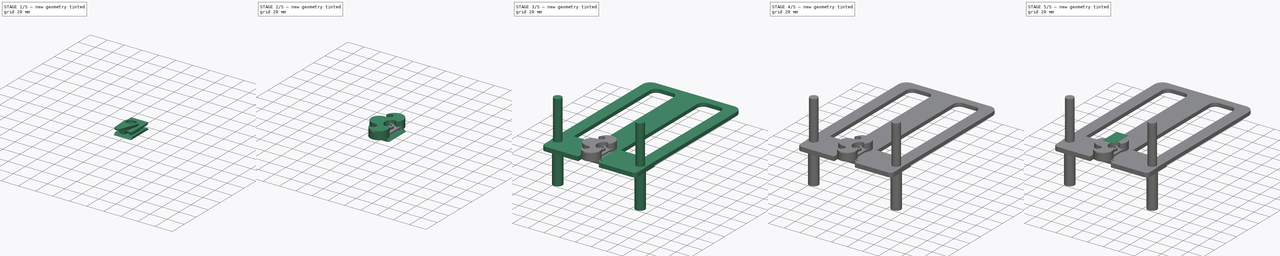
[diagram: build sequence overview — one tinted view per stage of 5, left to right]
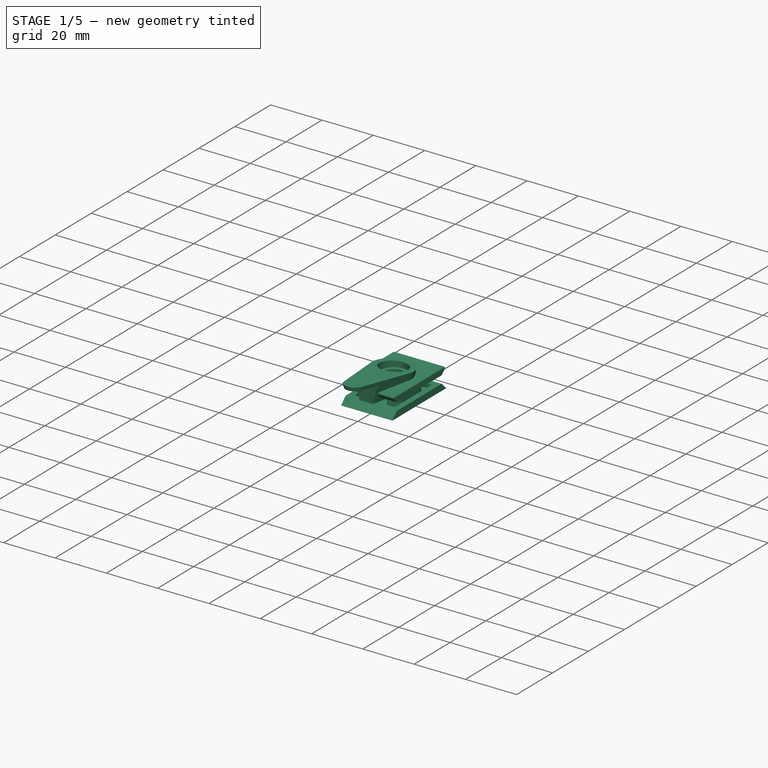
[diagram: stage 1 of 5 — iso view after this stage's code; geometry added in this stage tinted green]
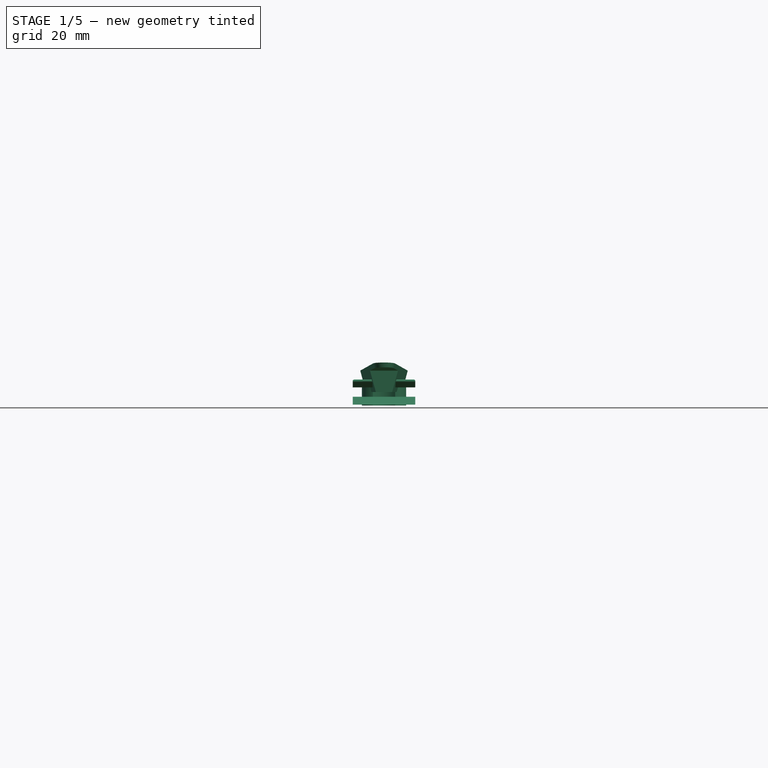
[diagram: stage 1 of 5 — front view after this stage's code; geometry added in this stage tinted green]
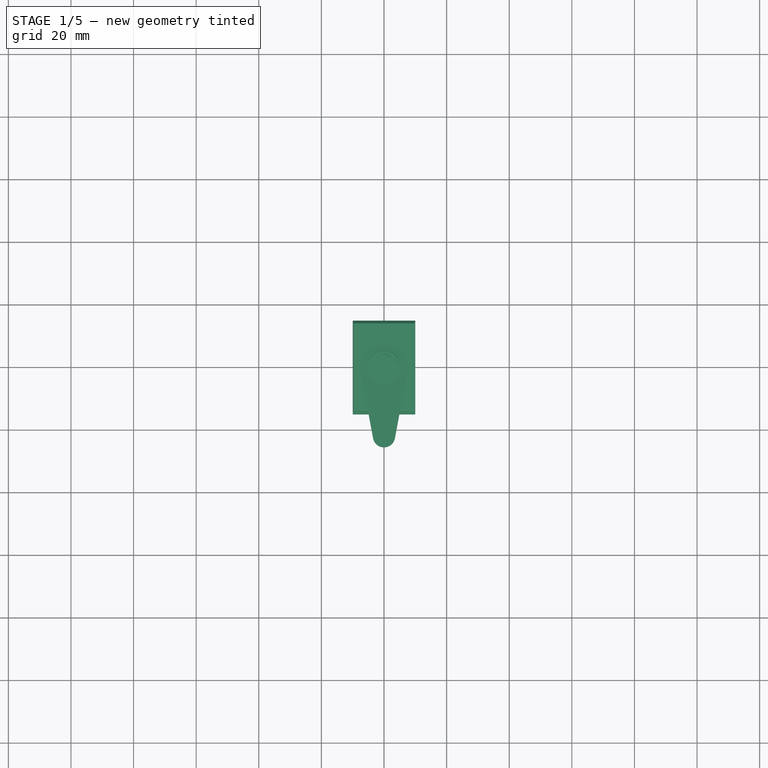
[diagram: stage 1 of 5 — top view after this stage's code; geometry added in this stage tinted green]
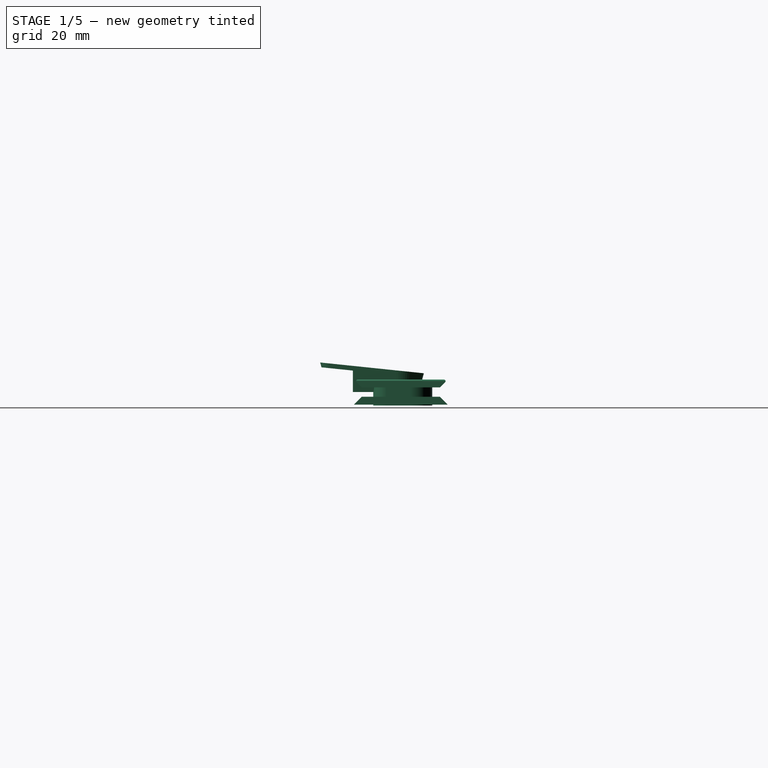
[diagram: stage 1 of 5 — right view after this stage's code; geometry added in this stage tinted green]
FCSTD DOCUMENT  (FreeCAD 0.19R14555 (Git shallow))
Label: actuator-case
License: All rights reserved
LicenseURL: http://en.wikipedia.org/wiki/All_rights_reserved
objects: Sketcher::SketchObject×57, PartDesign::Pad×32, PartDesign::Body×23, PartDesign::Pocket×22, PartDesign::Fillet×12, PartDesign::Draft×5, PartDesign::Revolution×4, Part::Cut×4, PartDesign::Thickness×3, PartDesign::Mirrored×2, PartDesign::ShapeBinder×2, Spreadsheet::Sheet×1, Part::Box×1, PartDesign::PolarPattern×1, PartDesign::Chamfer×1
note: 248 computed .brp shape members not serialized (recipe doc carries the construction recipe); baked Part::Feature solids carry a one-line shape summary decoded from their .brp

FEATURE [PartDesign::Body] Body019  label="[archive] Top-Plate"
  Group = -> [Sketch057,Pad028,Sketch056,Pocket013,Chamfer,Sketch061,Pocket017]
  Origin = -> Origin019
  Placement = pos=(0,0,0.4) rot=(0,1,0;3.14159rad)
  Tip = -> Pocket017
  expr: .Placement.Base.z = <<Dims>>.PlateMargin * 2
FEATURE [Sketcher::SketchObject] Sketch062
  FullyConstrained = true
  MapMode = 5
  Support = -> [XY_Plane021]
  expr: Constraints[10] = <<Dims>>.LRADiameter / 2
  expr: Constraints[11] = <<Dims>>.WallThickness
  expr: Constraints[12] = <<Dims>>.WallThickness * 4
  expr: Constraints[1] = -(<<Dims>>.StageLength - <<Dims>>.LRADiameter / 2 + <<Dims>>.BonusStageLength + <<Dims>>.WallThickness)
  expr: Constraints[25] = <<Dims>>.StageWidth
  sketch-geometry (12):
    g0: ArcOfCircle CenterX=0 CenterY=0 CenterZ=0 NormalX=0 NormalY=0 NormalZ=1 AngleXU=0 Radius=7.75 StartAngle=0 EndAngle=3.14159
    g1: LineSegment StartX=-2.8 StartY=-12.5 StartZ=0 EndX=2.8 EndY=-12.5 EndZ=0
    g2: Circle CenterX=0 CenterY=0 CenterZ=0 NormalX=0 NormalY=0 NormalZ=1 AngleXU=0 Radius=5.25
    g3: Circle CenterX=0 CenterY=0 CenterZ=0 NormalX=0 NormalY=0 NormalZ=1 AngleXU=0 Radius=5.75
    g4: GeomPoint X=5.25 Y=0 Z=0
    g5: GeomPoint X=5.75 Y=0 Z=0
    g6: GeomPoint X=7.75 Y=0 Z=0
    g7: LineSegment StartX=-7.75 StartY=9e-16 StartZ=0 EndX=-7.75 EndY=-7.55 EndZ=0
    g8: LineSegment StartX=7.75 StartY=0 StartZ=0 EndX=7.75 EndY=-7.55 EndZ=0
    g9: ArcOfCircle CenterX=-2.8 CenterY=-7.55 CenterZ=0 NormalX=0 NormalY=0 NormalZ=1 AngleXU=0 Radius=4.95 StartAngle=3.14159 EndAngle=4.71239
    g10: ArcOfCircle CenterX=2.8 CenterY=-7.55 CenterZ=0 NormalX=0 NormalY=0 NormalZ=1 AngleXU=0 Radius=4.95 StartAngle=4.71239 EndAngle=6.28319
    g11: GeomPoint X=0 Y=7.75 Z=0
  constraints (30):
    c: Coincident(g0,g-1)
    c: DistanceY(g1) = -12.5
    c: Symmetric(g1,g1,g-2)
    c: Coincident(g2,g0)
    c: Coincident(g3,g0)
    c: PointOnObject(g4,g2)
    c: PointOnObject(g5,g3)
    c: PointOnObject(g6,g-1)
    c: PointOnObject(g5,g-1)
    c: PointOnObject(g4,g-1)
    c: Radius(g2) = 5.25
    c: DistanceX(g4,g5) = 0.5
    c: DistanceX(g5,g6) = 2
    c: PointOnObject(g6,g0)
    c: PointOnObject(g0,g-1)
    c: PointOnObject(g0,g-1)
    c: Coincident(g7,g0)
    c: Vertical(g7)
    c: Coincident(g8,g0)
    c: Vertical(g8)
    c: Tangent(g1,g9) = -1.5708
    c: Coincident(g1,g10)
    c: Tangent(g9,g7) = -1.5708
    c: Tangent(g10,g8) = 1.5708
    c: Equal(g10,g9)
    c: DistanceX(g1,g1) = 5.6
    c: PointOnObject(g11,g0)
    c: PointOnObject(g11,g-2)
    c: DistanceY(g1,g11) = 20.25  'TotalHeight'
    c: DistanceX(g0,g0) = 15.5  'TotalWidth'
FEATURE [PartDesign::Pad] Pad029
  Direction = (1,1,1)
  Length = 2
  Length2 = 0.5
  Profile = -> Sketch062
  Type = 4
  expr: Length2 = <<Dims>>.WallThickness
FEATURE [Sketcher::SketchObject] Sketch063
  FullyConstrained = false
  expr: Constraints[11] = <<Dims>>.StageWidth
  expr: Constraints[15] = <<Dims>>.BonusStageLength
  expr: Constraints[6] = <<Dims>>.LRADiameter
  expr: Constraints[12] = <<Dims>>.StageLength
  sketch-geometry (21):
    g0: LineSegment StartX=2.04267 StartY=-9.5 StartZ=0 EndX=-2.04267 EndY=-9.5 EndZ=0
    g1: GeomPoint X=0 Y=5.25 Z=0
    g2: LineSegment StartX=1.05 StartY=-14.2519 StartZ=0 EndX=1.05 EndY=-12 EndZ=0
    g3: LineSegment StartX=1.05 StartY=-12 StartZ=0 EndX=2.8 EndY=-12 EndZ=0
    g4: LineSegment StartX=-1.05 StartY=-12 StartZ=0 EndX=-1.05 EndY=-14.2519 EndZ=0
    g5: LineSegment StartX=-2.8 StartY=-12 StartZ=0 EndX=-1.05 EndY=-12 EndZ=0
    g6: ArcOfCircle CenterX=0 CenterY=0 CenterZ=0 NormalX=0 NormalY=0 NormalZ=1 AngleXU=0 Radius=5.25 StartAngle=6.07229 EndAngle=9.63567
    g7: LineSegment StartX=-1.05 StartY=-14.2519 StartZ=0 EndX=1.05 EndY=-14.2519 EndZ=0
    g8: LineSegment StartX=-2.8 StartY=-12 StartZ=0 EndX=-3.7 EndY=-7.79596 EndZ=0
    g9: LineSegment StartX=2.8 StartY=-12 StartZ=0 EndX=3.7 EndY=-7.79596 EndZ=0
    g10: LineSegment StartX=-2.04267 StartY=-9.5 StartZ=0 EndX=-1.85 EndY=-10.4 EndZ=0
    g11: LineSegment StartX=-1.85 StartY=-10.4 StartZ=0 EndX=1.85 EndY=-10.4 EndZ=0
    g12: LineSegment StartX=1.85 StartY=-10.4 StartZ=0 EndX=2.04267 EndY=-9.5 EndZ=0
    g13: LineSegment StartX=3.89267 StartY=-6.89596 StartZ=0 EndX=2.8 EndY=-6.89596 EndZ=0
    g14: LineSegment StartX=2.8 StartY=-6.89596 StartZ=0 EndX=2.8 EndY=-7.79596 EndZ=0
    g15: LineSegment StartX=2.8 StartY=-7.79596 StartZ=0 EndX=3.7 EndY=-7.79596 EndZ=0
    g16: LineSegment StartX=3.89267 StartY=-6.89596 StartZ=0 EndX=5.13368 EndY=-1.09902 EndZ=0
    g17: LineSegment StartX=-3.89267 StartY=-6.89596 StartZ=0 EndX=-2.8 EndY=-6.89596 EndZ=0
    g18: LineSegment StartX=-2.8 StartY=-6.89596 StartZ=0 EndX=-2.8 EndY=-7.79596 EndZ=0
    g19: LineSegment StartX=-2.8 StartY=-7.79596 StartZ=0 EndX=-3.7 EndY=-7.79596 EndZ=0
    g20: LineSegment StartX=-3.89267 StartY=-6.89596 StartZ=0 EndX=-5.13368 EndY=-1.09902 EndZ=0
  constraints (53):
    c: PointOnObject(g1,g-2)
    c: Vertical(g2)
    c: DistanceX(g2) = 1.05
    c: Horizontal(g3)
    c: Symmetric(g0,g0,g-2)
    c: Vertical(g4)
    c: Diameter(g6) = 10.5
    c: Coincident(g7,g4)
    c: Coincident(g7,g2)
    c: Coincident(g8,g5)
    c: Coincident(g9,g3)
    c: DistanceX(g5,g3) = 5.6
    c: DistanceY(g0,g1) = 14.75
    c: PointOnObject(g1,g6)
    c: Coincident(g6,g-1)
    c: DistanceY(g3,g0) = 2.5
    c: Coincident(g3,g2)
    c: Coincident(g4,g5)
    c: Horizontal(g5)
    c: Symmetric(g4,g2,g-2)
    c: Coincident(g0,g10)
    c: Coincident(g10,g11)
    c: Horizontal(g11)
    c: Coincident(g11,g12)
    c: Coincident(g12,g0)
    c: DistanceX(g11,g3) = 0.95
    c: DistanceY(g12,g12) = 0.9
    c: Symmetric(g5,g3,g-2)
    c: Horizontal(g13)
    c: Coincident(g13,g14)
    c: Vertical(g14)
    c: Coincident(g14,g15)
    c: Horizontal(g15)
    c: Coincident(g9,g15)
    c: Coincident(g16,g13)
    c: Tangent(g9,g16)
    c: Horizontal(g17)
    c: Coincident(g17,g18)
    c: Vertical(g18)
    c: Coincident(g18,g19)
    c: Horizontal(g19)
    c: Coincident(g8,g19)
    c: Coincident(g20,g17)
    c: Symmetric(g8,g9,g-2)
    c: Symmetric(g17,g13,g-2)
    c: Vertical(g18,g5)
    c: DistanceX(g15,g15) = 0.9
    c: Tangent(g6,g16) = -1.5708
    c: Tangent(g6,g20) = 1.5708
    c: PointOnObject(g5,g20)
    c: Equal(g15,g14)
    c: Parallel(g8,g10)
    c: Parallel(g9,g12)
FEATURE [Sketcher::SketchObject] Sketch064
  AttachmentOffset = pos=(0,0,2) rot=(0,0,1;0rad)
  FullyConstrained = true
  MapMode = 5
  Placement = pos=(0,0,2) rot=(0,0,1;0rad)
  Support = -> [XY_Plane021]
  expr: Constraints[30] = <<Dims>>.LRADiameter
  expr: Constraints[28] = <<Dims>>.StageLength - <<Dims>>.LRADiameter / 2 + <<Dims>>.BonusStageLength
  expr: Constraints[25] = <<Dims>>.StageWidth
  expr: Constraints[24] = <<Dims>>.WallThickness * 3
  expr: Constraints[19] = <<Dims>>.WallThickness
  expr: Constraints[17] = <<Dims>>.LRADiameter / 2 + <<Dims>>.WallThickness
  expr: .AttachmentOffset.Base.z = <<Pad029>>.Length
  sketch-geometry (15):
    g0: ArcOfCircle CenterX=0 CenterY=0 CenterZ=0 NormalX=0 NormalY=0 NormalZ=1 AngleXU=0 Radius=5.75 StartAngle=6.07229 EndAngle=9.63567
    g1: GeomPoint X=0 Y=5.25 Z=0
    g2: LineSegment StartX=-5.6226 StartY=-1.20368 StartZ=0 EndX=-3.3178 EndY=-11.9698 EndZ=0
    g3: LineSegment StartX=5.6226 StartY=-1.20368 StartZ=0 EndX=3.3178 EndY=-11.9698 EndZ=0
    g4: LineSegment StartX=7.25 StartY=-7.55 StartZ=0 EndX=7.25 EndY=0 EndZ=0
    g5: LineSegment StartX=-7.25 StartY=9e-16 StartZ=0 EndX=-7.25 EndY=-7.55 EndZ=0
    g6: ArcOfCircle CenterX=-2.8 CenterY=-7.55 CenterZ=0 NormalX=0 NormalY=0 NormalZ=1 AngleXU=0 Radius=4.45 StartAngle=3.14159 EndAngle=4.59577
    g7: ArcOfCircle CenterX=2.8 CenterY=-7.55 CenterZ=0 NormalX=0 NormalY=0 NormalZ=1 AngleXU=0 Radius=4.45 StartAngle=4.82901 EndAngle=6.28319
    g8: ArcOfCircle CenterX=0 CenterY=0 CenterZ=0 NormalX=0 NormalY=0 NormalZ=1 AngleXU=0 Radius=7.25 StartAngle=0 EndAngle=3.14159
    g9: GeomPoint X=0 Y=5.75 Z=0
    g10: LineSegment StartX=0 StartY=5.75 StartZ=0 EndX=0 EndY=5.25 EndZ=0
    g11: GeomPoint X=5.75 Y=0 Z=0
    g12: GeomPoint X=2.8 Y=-12 Z=0
    g13: Circle CenterX=0 CenterY=0 CenterZ=0 NormalX=0 NormalY=0 NormalZ=1 AngleXU=0 Radius=5.25
    g14: LineSegment StartX=2.8 StartY=-12 StartZ=0 EndX=5.13368 EndY=-1.099 EndZ=0
  constraints (35):
    c: PointOnObject(g1,g-2)
    c: PointOnObject(g4,g-1)
    c: Vertical(g4)
    c: PointOnObject(g5,g-1)
    c: Coincident(g6,g2)
    c: Coincident(g7,g3)
    c: Tangent(g3,g0) = 1.5708
    c: Tangent(g2,g0) = -1.5708
    c: Tangent(g7,g4) = -1.5708
    c: Tangent(g6,g5) = -1.5708
    c: Coincident(g8,g5)
    c: Coincident(g8,g4)
    c: PointOnObject(g9,g0)
    c: PointOnObject(g9,g-2)
    c: Coincident(g10,g9)
    c: Coincident(g10,g1)
    c: Symmetric(g7,g6,g-2)
    c: Radius(g0) = 5.75
    c: Coincident(g0,g8)
    c: DistanceY(g10,g10) = 0.5
    c: Coincident(g-1,g0)
    c: Symmetric(g3,g2,g-2)
    c: PointOnObject(g11,g0)
    c: PointOnObject(g11,g-1)
    c: DistanceX(g11,g4) = 1.5
    c: DistanceX(g6,g7) = 5.6
    c: Vertical(g12,g7)
    c: PointOnObject(g12,g7)
    c: DistanceY(g12,g0) = 12
    c: Coincident(g13,g0)
    c: Diameter(g13) = 10.5
    c: Coincident(g14,g12)
    c: PointOnObject(g14,g13)
    c: Tangent(g14,g13)
    c: Parallel(g3,g14)
FEATURE [Sketcher::SketchObject] Sketch065
  FullyConstrained = true
  MapMode = 5
  Support = -> [XY_Plane021]
  sketch-geometry (1):
    g0: Circle CenterX=0 CenterY=0 CenterZ=0 NormalX=0 NormalY=0 NormalZ=1 AngleXU=0 Radius=1.5
  constraints (2):
    c: Coincident(g0,g-1)
    c: Diameter(g0) = 3
FEATURE [PartDesign::Pocket] Pocket020
  BaseFeature = -> Pad029
  Length = 5
  Length2 = 100
  Profile = -> Sketch065
  Type = 1
FEATURE [PartDesign::Pocket] Pocket018
  BaseFeature = -> Pocket020
  Length = 5
  Length2 = 100
  Profile = -> Sketch063
  Reversed = true
  Type = 1
FEATURE [PartDesign::Pocket] Pocket019
  BaseFeature = -> Pocket018
  Length = 0.75
  Length2 = 100
  Profile = -> Sketch064
  Type = 0
  expr: Length = <<Dims>>.WallThickness * 1.5
FEATURE [Sketcher::SketchObject] Sketch066
  FullyConstrained = true
  MapMode = 5
  Placement = pos=(0,0,0) rot=(0.57735,0.57735,0.57735;2.0944rad)
  Support = -> [YZ_Plane021]
  expr: Constraints[30] = <<Dims>>.PlateHeight + <<Dims>>.PlateMargin
  sketch-geometry (28):
    g0: ArcOfCircle CenterX=60 CenterY=-2.7e-15 CenterZ=0 NormalX=0 NormalY=0 NormalZ=1 AngleXU=0 Radius=8 StartAngle=3.89731 EndAngle=8.66906
    g1: LineSegment StartX=-18 StartY=-0.25 StartZ=0 EndX=-10 EndY=-0.507562 EndZ=0
    g2: LineSegment StartX=47.2218 StartY=2.34984 StartZ=0 EndX=15.1844 EndY=1.31838 EndZ=0
    g3: ArcOfCircle CenterX=-12.2421 CenterY=0.435378 CenterZ=0 NormalX=0 NormalY=0 NormalZ=1 AngleXU=0 Radius=5.76092 StartAngle=1.8326 EndAngle=3.17378
    g4: ArcOfCircle CenterX=-12.2421 CenterY=-0.435378 CenterZ=0 NormalX=0 NormalY=0 NormalZ=1 AngleXU=0 Radius=5.76092 StartAngle=3.10941 EndAngle=4.45059
    g5: ArcOfCircle CenterX=46.9 CenterY=12.3447 CenterZ=0 NormalX=0 NormalY=0 NormalZ=1 AngleXU=0 Radius=10 StartAngle=4.74457 EndAngle=5.52746
    g6: ArcOfCircle CenterX=46.9 CenterY=-12.3447 CenterZ=0 NormalX=0 NormalY=0 NormalZ=1 AngleXU=0 Radius=10 StartAngle=0.755722 EndAngle=1.53861
    g7: LineSegment StartX=-13.7331 StartY=-6 StartZ=0 EndX=12.3913 EndY=-13 EndZ=0
    g8: LineSegment StartX=-13.7331 StartY=6 StartZ=0 EndX=12.3913 EndY=13 EndZ=0
    g9: ArcOfCircle CenterX=60 CenterY=-2.7e-15 CenterZ=0 NormalX=0 NormalY=0 NormalZ=1 AngleXU=0 Radius=13 StartAngle=5.87167 EndAngle=6.6947
    g10: LineSegment StartX=-10 StartY=-0.507562 StartZ=0 EndX=-12.5805 EndY=-2.92707 EndZ=0
    g11: LineSegment StartX=-12.5805 StartY=-2.92707 StartZ=0 EndX=17.6039 EndY=-3.89887 EndZ=0
    g12: LineSegment StartX=17.6039 StartY=-3.89887 StartZ=0 EndX=15.1844 EndY=-1.31838 EndZ=0
    g13: LineSegment StartX=47.2218 StartY=2.34984 StartZ=0 EndX=67.4162 EndY=3 EndZ=0
    g14: LineSegment StartX=-10 StartY=-0.507562 StartZ=0 EndX=-10.0805 EndY=-3.00756 EndZ=0
    g15: LineSegment StartX=15.1844 StartY=-1.31838 StartZ=0 EndX=47.2218 EndY=-2.34984 EndZ=0
    g16: LineSegment StartX=-10 StartY=0.507562 StartZ=0 EndX=-12.5805 EndY=2.92707 EndZ=0
    g17: LineSegment StartX=-12.5805 StartY=2.92707 StartZ=0 EndX=17.6039 EndY=3.89887 EndZ=0
    g18: LineSegment StartX=17.6039 StartY=3.89887 StartZ=0 EndX=15.1844 EndY=1.31838 EndZ=0
    g19: LineSegment StartX=-10 StartY=0.507562 StartZ=0 EndX=-18 EndY=0.25 EndZ=0
    g20: LineSegment StartX=12.3913 StartY=13 StartZ=0 EndX=103.748 EndY=13 EndZ=0
    g21: LineSegment StartX=12.3913 StartY=-13 StartZ=0 EndX=103.748 EndY=-13 EndZ=0
    g22: LineSegment StartX=73.7477 StartY=-8 StartZ=0 EndX=107.621 EndY=-8 EndZ=0
    g23: LineSegment StartX=73.7477 StartY=8 StartZ=0 EndX=107.621 EndY=8 EndZ=0
    g24: ArcOfCircle CenterX=107.621 CenterY=12 CenterZ=0 NormalX=0 NormalY=0 NormalZ=1 AngleXU=0 Radius=4 StartAngle=4.71239 EndAngle=9.1721
    g25: ArcOfCircle CenterX=107.621 CenterY=-12 CenterZ=0 NormalX=0 NormalY=0 NormalZ=1 AngleXU=0 Radius=4 StartAngle=3.39427 EndAngle=7.85398
    g26: ArcOfCircle CenterX=73.7477 CenterY=6 CenterZ=0 NormalX=0 NormalY=0 NormalZ=1 AngleXU=0 Radius=2 StartAngle=1.5708 EndAngle=3.55311
    g27: ArcOfCircle CenterX=73.7477 CenterY=-6 CenterZ=0 NormalX=0 NormalY=0 NormalZ=1 AngleXU=0 Radius=2 StartAngle=2.73008 EndAngle=4.71239
  constraints (74):
    c: DistanceY(g1,g19) = 0.5
    c: DistanceX(g0) = 60
    c: PointOnObject(g3,g2)
    c: Coincident(g3,g19)
    c: Coincident(g4,g1)
    c: Symmetric(g19,g1,g-1)
    c: Tangent(g2,g5) = 1.5708
    c: Tangent(g0,g5) = 1.5708
    c: Tangent(g3,g8) = 1.5708
    c: Tangent(g4,g7) = -1.5708
    c: Symmetric(g4,g3,g-1)
    c: Tangent(g6,g0) = 1.5708
    c: Radius(g5) = 10
    c: DistanceX(g19) = -18
    c: Equal(g6,g5)
    c: DistanceY(g4,g3) = 12
    c: Radius(g0) = 8
    c: Radius(g9) = 13
    c: Coincident(g9,g0)
    c: Vertical(g15,g2)
    c: Coincident(g11,g10)
    c: Coincident(g12,g11)
    c: Angle(g12,g11) = 0.785398
    c: Angle(g11,g10) = 0.785398
    c: Coincident(g13,g2)
    c: Parallel(g13,g2)
    c: Parallel(g11,g1)
    c: Coincident(g14,g10)
    c: PointOnObject(g14,g11)
    c: Angle(g11,g14) = 1.5708
    c: Distance(g11) = 30.2
    c: Coincident(g1,g10)
    c: Coincident(g15,g12)
    c: Tangent(g1,g15)
    c: Tangent(g15,g6) = 1.5708
    c: Coincident(g16,g17)
    c: Coincident(g17,g18)
    c: Coincident(g2,g18)
    c: Coincident(g19,g16)
    c: Tangent(g2,g19)
    c: Symmetric(g17,g11,g-1)
    c: Symmetric(g10,g16,g-1)
    c: Vertical(g16,g1)
    c: DistanceY(g14,g14) = 2.5
    c: DistanceX(g16) = -10
    c: PointOnObject(g13,g0)
    c: DistanceY(g13) = 3
    c: Angle(g7,g8) = 0.523599
    c: Symmetric(g8,g7,g-1)
    c: Coincident(g20,g8)
    c: Horizontal(g20)
    c: Coincident(g21,g7)
    c: Horizontal(g21)
    c: Horizontal(g22)
    c: Tangent(g22,g0)
    c: Horizontal(g23)
    c: Tangent(g23,g0)
    c: Tangent(g21,g9)
    c: Symmetric(g2,g12,g-1)
    c: Coincident(g24,g20)
    c: Coincident(g25,g21)
    c: Tangent(g25,g22) = 1.5708
    c: Tangent(g24,g23) = -1.5708
    c: Vertical(g24,g25)
    c: Equal(g24,g25)
    c: Radius(g24) = 4  'GripKnobRadius'
    c: Tangent(g23,g26) = 1.5708
    c: Tangent(g9,g26) = 1.5708
    c: Tangent(g9,g27) = 1.5708
    c: Tangent(g22,g27) = -1.5708
    c: Equal(g27,g26)
    c: Radius(g26) = 2
    c: DistanceX(g23,g20) = 30
    c: DistanceY(g25,g24) = 24  'KnobCenterDistance'
FEATURE [PartDesign::Pad] Pad030
  Direction = (1,1,1)
  Length = 20
  Length2 = 100
  Midplane = true
  Placement = pos=(0,0,0) rot=(0.57735,0.57735,0.57735;2.0944rad)
  Profile = -> Sketch066
  Type = 0
FEATURE [Sketcher::SketchObject] Sketch068
  FullyConstrained = true
  MapMode = 5
  Placement = pos=(0,0,0) rot=(0.57735,0.57735,0.57735;2.0944rad)
  Support = -> [YZ_Plane022]
  expr: Constraints[7] = 30mm
  sketch-geometry (4):
    g0: LineSegment StartX=-15 StartY=-4 StartZ=0 EndX=15 EndY=-4 EndZ=0
    g1: LineSegment StartX=15 StartY=-4 StartZ=0 EndX=12.5 EndY=-1.5 EndZ=0
    g2: LineSegment StartX=12.5 StartY=-1.5 StartZ=0 EndX=-12.5 EndY=-1.5 EndZ=0
    g3: LineSegment StartX=-12.5 StartY=-1.5 StartZ=0 EndX=-15 EndY=-4 EndZ=0
  constraints (10):
    c: Coincident(g0,g1)
    c: Coincident(g1,g2)
    c: Coincident(g2,g3)
    c: Coincident(g3,g0)
    c: Symmetric(g2,g1,g-2)
    c: Symmetric(g0,g0,g-2)
    c: Angle(g1,g0) = 0.785398
    c: DistanceX(g0,g0) = 30
    c: DistanceY(g0,g1) = 2.5
    c: DistanceY(g0) = -4
FEATURE [PartDesign::Pad] Pad031
  Direction = (1,1,1)
  Length = 20
  Length2 = 100
  Midplane = true
  Placement = pos=(0,0,0) rot=(0.57735,0.57735,0.57735;2.0944rad)
  Profile = -> Sketch068
  Type = 0
  expr: Length = <<Pad030>>.Length
FEATURE [Sketcher::SketchObject] Sketch069
  AttachmentOffset = pos=(0,2,-1.5) rot=(0,0,1;0rad)
  FullyConstrained = true
  MapMode = 5
  Placement = pos=(0,2,-1.5) rot=(0,0,1;0rad)
  Support = -> [XY_Plane023]
  expr: .AttachmentOffset.Base.y = -<<Clamp>>.Placement.Base.y
  expr: Constraints[8] = <<Dims>>.LRADiameter / 2 + <<Dims>>.WallThickness * 5 + <<Dims>>.PlatePieceMargin
  expr: Constraints[9] = <<Dims>>.LRADiameter / 2 + <<Dims>>.WallThickness * 5 + <<Dims>>.PlatePieceMargin
  expr: Constraints[10] = -(<<Dims>>.StageLength - <<Dims>>.LRADiameter / 2 + <<Dims>>.BonusStageLength + <<Dims>>.WallThickness + <<Dims>>.PlatePieceMargin)
  sketch-geometry (4):
    g0: LineSegment StartX=7.85 StartY=7.85 StartZ=0 EndX=-7.85 EndY=7.85 EndZ=0
    g1: LineSegment StartX=-7.85 StartY=7.85 StartZ=0 EndX=-7.85 EndY=-12.6 EndZ=0
    g2: LineSegment StartX=-7.85 StartY=-12.6 StartZ=0 EndX=7.85 EndY=-12.6 EndZ=0
    g3: LineSegment StartX=7.85 StartY=-12.6 StartZ=0 EndX=7.85 EndY=7.85 EndZ=0
  constraints (11):
    c: Coincident(g0,g1)
    c: Coincident(g1,g2)
    c: Coincident(g2,g3)
    c: Coincident(g3,g0)
    c: Horizontal(g2)
    c: Vertical(g1)
    c: Vertical(g3)
    c: Symmetric(g0,g0,g-2)
    c: DistanceY(g0) = 7.85
    c: DistanceX(g0) = 7.85
    c: DistanceY(g2) = -12.6
FEATURE [PartDesign::Pocket] Pocket022
  BaseFeature = -> Pad031
  Length = 1.5
  Length2 = 100
  Placement = pos=(0,0,0) rot=(0.57735,0.57735,0.57735;2.0944rad)
  Profile = -> Sketch069
  Type = 0
FEATURE [Sketcher::SketchObject] Sketch070
  FullyConstrained = true
  MapMode = 5
  Placement = pos=(0,0,0) rot=(0.57735,0.57735,0.57735;2.0944rad)
  Support = -> [YZ_Plane023]
  sketch-geometry (4):
    g0: LineSegment StartX=-12.5 StartY=1.5 StartZ=0 EndX=12.5 EndY=1.5 EndZ=0
    g1: LineSegment StartX=12.5 StartY=1.5 StartZ=0 EndX=15 EndY=4 EndZ=0
    g2: LineSegment StartX=15 StartY=4 StartZ=0 EndX=-15 EndY=4 EndZ=0
    g3: LineSegment StartX=-15 StartY=4 StartZ=0 EndX=-12.5 EndY=1.5 EndZ=0
  constraints (10):
    c: Coincident(g0,g1)
    c: Coincident(g3,g0)
    c: Symmetric(g0,g0,g-2)
    c: Angle(g2,g1) = 0.785398
    c: DistanceX(g2,g2) = 30
    c: Coincident(g1,g2)
    c: Coincident(g3,g2)
    c: Symmetric(g2,g1,g-2)
    c: DistanceY(g1) = 4
    c: DistanceY(g0,g1) = 2.5
FEATURE [PartDesign::Pad] Pad032
  Direction = (1,1,1)
  Length = 20
  Length2 = 100
  Midplane = true
  Placement = pos=(0,0,0) rot=(0.57735,0.57735,0.57735;2.0944rad)
  Profile = -> Sketch070
  Type = 0
  expr: Length = <<Pad030>>.Length
FEATURE [Sketcher::SketchObject] Sketch071
  AttachmentOffset = pos=(0,3,0) rot=(0,0,1;0rad)
  FullyConstrained = true
  MapMode = 5
  Placement = pos=(0,3,0) rot=(0,0,1;0rad)
  Support = -> [XY_Plane024]
  expr: .AttachmentOffset.Base.y = -<<Clamp>>.Placement.Base.y + 1mm
  expr: Constraints[17] = <<Dims>>.LRADiameter / 2 + <<Dims>>.WallThickness + <<Dims>>.FabricGap
  expr: Constraints[22] = -(<<Dims>>.StageLength - <<Dims>>.LRADiameter / 2 + <<Dims>>.BonusStageLength - <<Dims>>.FabricGap)
  expr: Constraints[27] = <<Dims>>.LRADiameter
  expr: Constraints[18] = <<Dims>>.LRADiameter / 2 + <<Dims>>.WallThickness * 4 - <<Dims>>.FabricGap
  expr: Constraints[19] = <<Dims>>.StageWidth
  expr: Constraints[23] = -(<<Dims>>.StageLength - <<Dims>>.LRADiameter / 2 + <<Dims>>.BonusStageLength)
  sketch-geometry (13):
    g0: ArcOfCircle CenterX=0 CenterY=0 CenterZ=0 NormalX=0 NormalY=0 NormalZ=1 AngleXU=0 Radius=7.05 StartAngle=0 EndAngle=3.14159
    g1: LineSegment StartX=-7.05 StartY=9e-16 StartZ=0 EndX=-7.05 EndY=-7.61826 EndZ=0
    g2: LineSegment StartX=7.05 StartY=0 StartZ=0 EndX=7.05 EndY=-7.61826 EndZ=0
    g3: LineSegment StartX=3.55868 StartY=-11.8 StartZ=0 EndX=5.81817 EndY=-1.24555 EndZ=0
    g4: LineSegment StartX=-3.55868 StartY=-11.8 StartZ=0 EndX=-5.81817 EndY=-1.24555 EndZ=0
    g5: ArcOfCircle CenterX=0 CenterY=0 CenterZ=0 NormalX=0 NormalY=0 NormalZ=1 AngleXU=0 Radius=5.95 StartAngle=6.07229 EndAngle=9.63567
    g6: ArcOfCircle CenterX=-2.8 CenterY=-7.61826 CenterZ=0 NormalX=0 NormalY=0 NormalZ=1 AngleXU=0 Radius=4.25 StartAngle=3.14159 EndAngle=4.53291
    g7: ArcOfCircle CenterX=2.8 CenterY=-7.61826 CenterZ=0 NormalX=0 NormalY=0 NormalZ=1 AngleXU=0 Radius=4.25 StartAngle=4.89186 EndAngle=6.28319
    g8: GeomPoint X=0 Y=-11.8 Z=0
    g9: GeomPoint X=2.8 Y=-12 Z=0
    g10: GeomPoint X=-2.8 Y=-12 Z=0
    g11: Circle CenterX=0 CenterY=0 CenterZ=0 NormalX=0 NormalY=0 NormalZ=1 AngleXU=0 Radius=5.25
    g12: LineSegment StartX=2.8 StartY=-12 StartZ=0 EndX=5.13368 EndY=-1.09902 EndZ=0
  constraints (31):
    c: Coincident(g0,g-1)
    c: Coincident(g1,g0)
    c: Vertical(g1)
    c: Coincident(g2,g0)
    c: Vertical(g2)
    c: PointOnObject(g0,g-1)
    c: PointOnObject(g0,g-1)
    c: Coincident(g5,g0)
    c: Tangent(g5,g3) = -1.5708
    c: Tangent(g5,g4) = 1.5708
    c: Coincident(g6,g1)
    c: Coincident(g6,g4)
    c: Coincident(g7,g2)
    c: Coincident(g7,g3)
    c: Symmetric(g7,g6,g-2)
    c: Symmetric(g4,g3,g-2)
    c: Tangent(g7,g2)
    c: Radius(g5) = 5.95
    c: Radius(g0) = 7.05
    c: DistanceX(g6,g7) = 5.6
    c: PointOnObject(g8,g-2)
    c: Horizontal(g8,g3)
    c: DistanceY(g8) = -11.8
    c: DistanceY(g9) = -12
    c: Symmetric(g10,g9,g-2)
    c: Vertical(g9,g7)
    c: Coincident(g11,g0)
    c: Diameter(g11) = 10.5
    c: Coincident(g12,g9)
    c: Tangent(g12,g11) = -1.5708
    c: Parallel(g3,g12)
FEATURE [PartDesign::Pad] Pad033
  BaseFeature = -> Pad032
  Direction = (1,1,1)
  Length = 2.5
  Length2 = 4.3
  Placement = pos=(0,0,0) rot=(0.57735,0.57735,0.57735;2.0944rad)
  Profile = -> Sketch071
  Type = 4
  expr: Length2 = 4.5mm - <<Dims>>.FabricGap
FEATURE [PartDesign::Fillet] Fillet011
  Base = -> Pad033 [Face14]
  BaseFeature = -> Pad033
  Placement = pos=(0,0,0) rot=(0.57735,0.57735,0.57735;2.0944rad)
  Radius = 0.5
  SupportTransform = false
FEATURE [PartDesign::Fillet] Fillet012
  Base = -> Fillet011 [Edge21]
  BaseFeature = -> Fillet011
  Placement = pos=(0,0,0) rot=(0.57735,0.57735,0.57735;2.0944rad)
  Radius = 1
  SupportTransform = false
FEATURE [Sketcher::SketchObject] Sketch081
  FullyConstrained = true
  MapMode = 5
  Support = -> [XY_Plane022]
  sketch-geometry (1):
    g0: Circle CenterX=0 CenterY=0 CenterZ=0 NormalX=0 NormalY=0 NormalZ=1 AngleXU=0 Radius=4
  constraints (2):
    c: Coincident(g0,g-1)
    c: Radius(g0) = 4
FEATURE [Sketcher::SketchObject] Sketch082
  ExternalGeometry = -> [Pad030]
  FullyConstrained = true
  MapMode = 5
  Placement = pos=(10,-2.2e-15,2.2e-15) rot=(0.57735,0.57735,0.57735;2.0944rad)
  Support = -> [Pad030]
  sketch-geometry (8):
    g0: LineSegment StartX=-12.5805 StartY=2.92707 StartZ=0 EndX=-10 EndY=0.507562 EndZ=0
    g1: LineSegment StartX=-10 StartY=0.507562 StartZ=0 EndX=15.1844 EndY=1.31838 EndZ=0
    g2: LineSegment StartX=15.1844 StartY=1.31838 StartZ=0 EndX=17.6039 EndY=3.89887 EndZ=0
    g3: LineSegment StartX=17.6039 StartY=3.89887 StartZ=0 EndX=-12.5805 EndY=2.92707 EndZ=0
    g4: LineSegment StartX=-10 StartY=-0.507562 StartZ=0 EndX=15.1844 EndY=-1.31838 EndZ=0
    g5: LineSegment StartX=15.1844 StartY=-1.31838 StartZ=0 EndX=17.6039 EndY=-3.89887 EndZ=0
    g6: LineSegment StartX=17.6039 StartY=-3.89887 StartZ=0 EndX=-12.5805 EndY=-2.92707 EndZ=0
    g7: LineSegment StartX=-12.5805 StartY=-2.92707 StartZ=0 EndX=-10 EndY=-0.507562 EndZ=0
  constraints (16):
    c: Coincident(g-4,g0)
    c: Coincident(g0,g-4)
    c: Coincident(g0,g1)
    c: Coincident(g1,g-3)
    c: Coincident(g1,g2)
    c: Coincident(g2,g-3)
    c: Coincident(g2,g3)
    c: Coincident(g3,g0)
    c: Coincident(g-5,g4)
    c: Coincident(g4,g-6)
    c: Coincident(g4,g5)
    c: Coincident(g5,g-6)
    c: Coincident(g5,g6)
    c: Coincident(g6,g-5)
    c: Coincident(g6,g7)
    c: Coincident(g7,g4)
FEATURE [PartDesign::Pad] Pad041
  BaseFeature = -> Pad030
  Direction = (1,1,1)
  Length = 1
  Length2 = 100
  Placement = pos=(0,0,0) rot=(0.57735,0.57735,0.57735;2.0944rad)
  Profile = -> Sketch082
  Reversed = true
  Type = 0
FEATURE [PartDesign::Pocket] Pocket023
  BaseFeature = -> Pad041
  Length = 5
  Length2 = 100
  Midplane = true
  Placement = pos=(0,0,0) rot=(0.57735,0.57735,0.57735;2.0944rad)
  Profile = -> Sketch081
  Type = 1
FEATURE [PartDesign::Body] Body022  label="bottom-plate-clamp"
  Group = -> [Sketch068,Pad031,Sketch069,Pocket022,Fillet010,Sketch083,Pocket024]
  Origin = -> Origin022
  Placement = pos=(0,-2,2.5) rot=(0,0,1;0rad)
  Tip = -> Pocket024
  expr: .Placement.Base = <<Clamp>>.Placement.Base
FEATURE [Sketcher::SketchObject] Sketch084
  FullyConstrained = true
  MapMode = 5
  Support = -> [XY_Plane024]
  sketch-geometry (1):
    g0: Circle CenterX=0 CenterY=0 CenterZ=0 NormalX=0 NormalY=0 NormalZ=1 AngleXU=0 Radius=4
  constraints (2):
    c: Coincident(g0,g-1)
    c: Radius(g0) = 4
FEATURE [PartDesign::Pocket] Pocket025
  BaseFeature = -> Fillet012
  Length = 5
  Length2 = 100
  Midplane = true
  Placement = pos=(0,0,0) rot=(0.57735,0.57735,0.57735;2.0944rad)
  Profile = -> Sketch084
  Type = 1
FEATURE [PartDesign::Body] Body023  label="top-plate-clamp"
  Group = -> [Sketch070,Pad032,Sketch071,Pad033,Fillet011,Fillet012,Sketch084,Pocket025]
  Origin = -> Origin023
  Placement = pos=(0,-2,2.5) rot=(0,0,1;0rad)
  Tip = -> Pocket025
  expr: .Placement.Base = <<Clamp>>.Placement.Base
FEATURE [PartDesign::ShapeBinder] ShapeBinder
  Support = -> [Pocket019]
  TraceSupport = false
FEATURE [Sketcher::SketchObject] Sketch085
  ExternalGeometry = -> [ShapeBinder]
  FullyConstrained = false
  MapMode = 5
  Support = -> [XY_Plane033]
  sketch-geometry (6):
    g0: ArcOfCircle CenterX=0 CenterY=0 CenterZ=0 NormalX=0 NormalY=0 NormalZ=1 AngleXU=0 Radius=5.75 StartAngle=6.07229 EndAngle=9.63567
    g1: LineSegment StartX=-5.6226 StartY=-1.20368 StartZ=0 EndX=-1.09734 EndY=-22.3419 EndZ=0
    g2: LineSegment StartX=5.6226 StartY=-1.20368 StartZ=0 EndX=1.09734 EndY=-22.3419 EndZ=0
    g3: ArcOfCircle CenterX=0 CenterY=-22.107 CenterZ=0 NormalX=0 NormalY=0 NormalZ=1 AngleXU=0 Radius=1.1222 StartAngle=3.35249 EndAngle=6.07229
    g4: LineSegment StartX=-5.13368 StartY=-1.09902 StartZ=0 EndX=-2.8 EndY=-12 EndZ=0
    g5: Circle CenterX=0 CenterY=0 CenterZ=0 NormalX=0 NormalY=0 NormalZ=1 AngleXU=0 Radius=5.25
  constraints (12):
    c: Coincident(g0,g-4)
    c: Coincident(g0,g-4)
    c: Coincident(g1,g0)
    c: Coincident(g2,g0)
    c: Tangent(g2,g3) = 1.5708
    c: Tangent(g1,g3) = -1.5708
    c: PointOnObject(g3,g-2)
    c: Coincident(g4,g-5) = -1.5708
    c: Parallel(g1,g4)
    c: Coincident(g0,g-1)
    c: Coincident(g5,g0)
    c: PointOnObject(g4,g5)
FEATURE [PartDesign::Pad] Pad042
  Direction = (1,1,1)
  Length = 12
  Length2 = 100
  Profile = -> Sketch085
  Type = 0
FEATURE [PartDesign::ShapeBinder] ShapeBinder001
  Placement = pos=(0,0,0) rot=(0.57735,0.57735,0.57735;2.0944rad)
  Support = -> [Pocket025]
  TraceSupport = false
FEATURE [PartDesign::Draft] Draft004
  Angle = 15
  Base = -> Pad042 [Face4]
  BaseFeature = -> Pad042
  NeutralPlane = -> Pad042 [Face6]
  Reversed = true
  SupportTransform = false
FEATURE [Sketcher::SketchObject] Sketch087
  FullyConstrained = false
  MapMode = 5
  Placement = pos=(0,0,0) rot=(0.57735,0.57735,0.57735;2.0944rad)
  Support = -> [YZ_Plane031]
  expr: Constraints[15] = <<Dims>>.LRADiameter / 2 + <<Dims>>.WallThickness
  expr: Constraints[17] = 90° + Draft004.Angle
  sketch-geometry (10):
    g0: LineSegment StartX=9.90492 StartY=15.5064 StartZ=0 EndX=7.3577 EndY=6 EndZ=0
    g1: LineSegment StartX=7.3577 StartY=6 StartZ=0 EndX=-28 EndY=9.68039 EndZ=0
    g2: LineSegment StartX=-28 StartY=0 StartZ=0 EndX=-15.3076 EndY=0 EndZ=0
    g3: LineSegment StartX=-15.3076 StartY=0 StartZ=0 EndX=-15.3076 EndY=6.85923 EndZ=0
    g4: LineSegment StartX=-15.3076 StartY=6.85923 StartZ=0 EndX=-28 EndY=8.18039 EndZ=0
    g5: LineSegment StartX=-28 StartY=8.18039 StartZ=0 EndX=-28 EndY=0 EndZ=0
    g6: LineSegment StartX=-28 StartY=9.68039 StartZ=0 EndX=-28 EndY=15.5064 EndZ=0
    g7: LineSegment StartX=-28 StartY=15.5064 StartZ=0 EndX=9.90492 EndY=15.5064 EndZ=0
    g8: GeomPoint X=5.75 Y=0 Z=0
    g9: GeomPoint X=65 Y=0 Z=0
  constraints (26):
    c: Coincident(g2,g3)
    c: Coincident(g3,g4)
    c: Coincident(g4,g5)
    c: Coincident(g5,g2)
    c: Horizontal(g2)
    c: Vertical(g3)
    c: Vertical(g5)
    c: PointOnObject(g2,g-1)
    c: Vertical(g4,g1)
    c: Coincident(g6,g1)
    c: Coincident(g7,g6)
    c: Coincident(g7,g0)
    c: Horizontal(g7)
    c: Vertical(g6)
    c: PointOnObject(g8,g-1)
    c: DistanceX(g-1,g8) = 5.75
    c: PointOnObject(g8,g0)
    c: Angle(g0,g-1) = 1.8326
    c: DistanceY(g4,g1) = 1.5
    c: PointOnObject(g9,g-1)
    c: PointOnObject(g9,g1)
    c: DistanceX(g9) = 65
    c: DistanceX(g2,g-1) = 28
    c: Parallel(g1,g4)
    c: Coincident(g1,g0)
    c: DistanceY(g0) = 6
FEATURE [PartDesign::Pocket] Pocket026
  BaseFeature = -> Draft004
  Length = 5
  Length2 = 100
  Midplane = true
  Profile = -> Sketch087
  Type = 1
FEATURE [PartDesign::Body] Body031  label="GlueGuard"
  Group = -> [ShapeBinder,Sketch085,Pad042,ShapeBinder001,Draft004,Sketch087,Pocket026]
  Origin = -> Origin031
  Placement = pos=(0,0,2) rot=(0,0,1;0rad)
  Tip = -> Pocket026
  expr: .Placement.Base.z = <<Pad029>>.Length
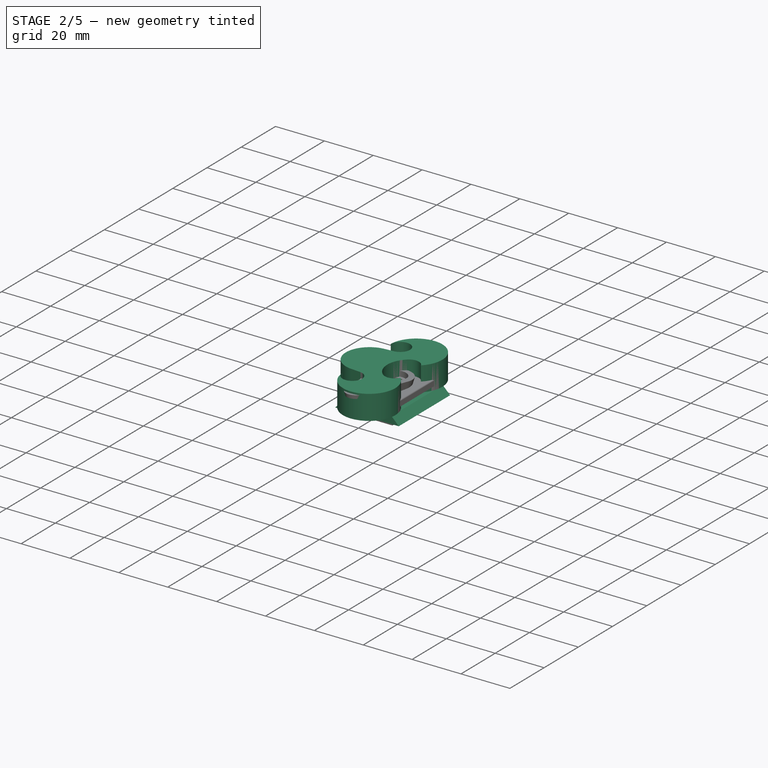
[diagram: stage 2 of 5 — iso view after this stage's code; geometry added in this stage tinted green]
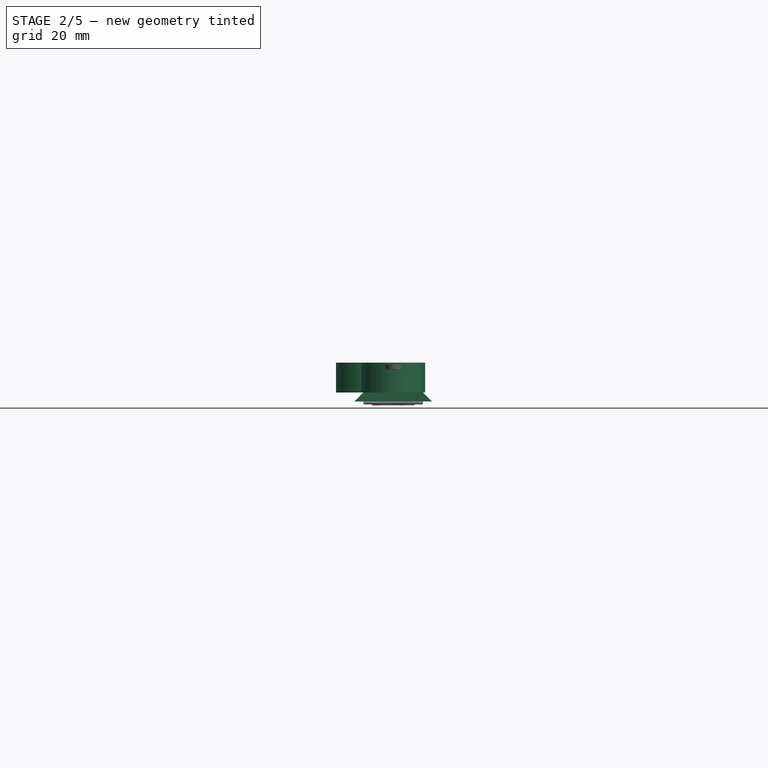
[diagram: stage 2 of 5 — front view after this stage's code; geometry added in this stage tinted green]
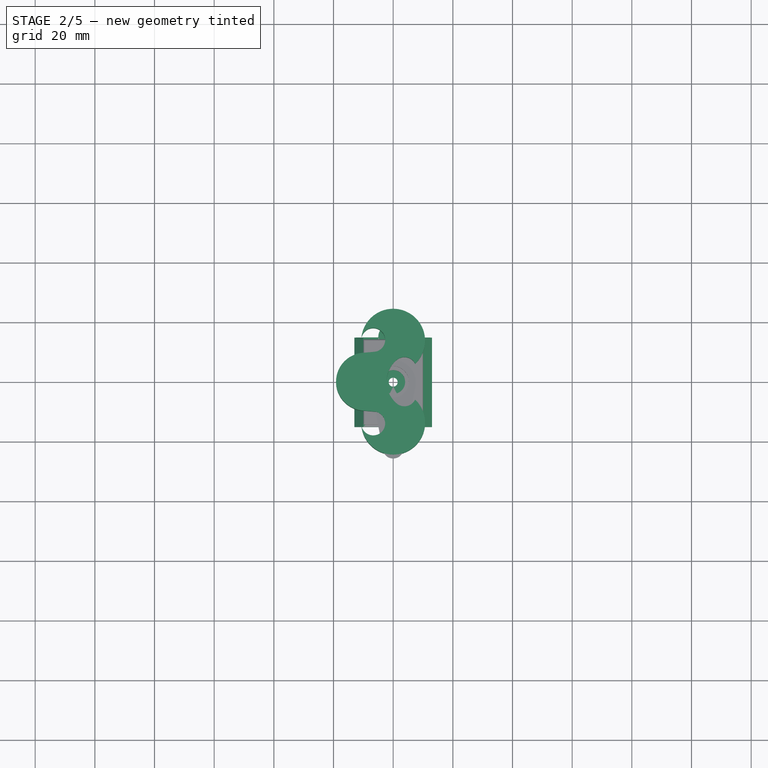
[diagram: stage 2 of 5 — top view after this stage's code; geometry added in this stage tinted green]
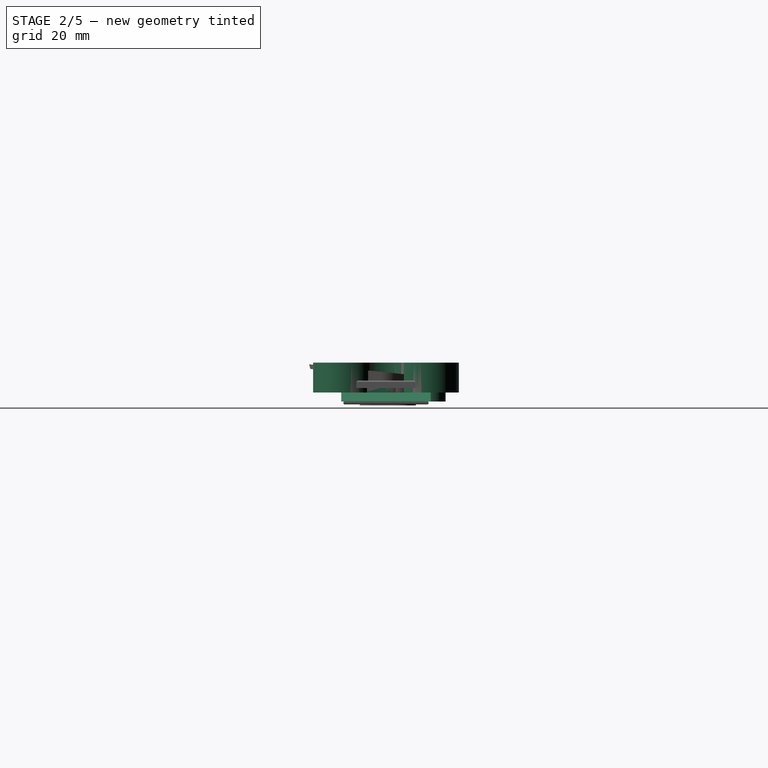
[diagram: stage 2 of 5 — right view after this stage's code; geometry added in this stage tinted green]
FEATURE [Sketcher::SketchObject] Sketch056
  FullyConstrained = true
  MapMode = 5
  Support = -> [XY_Plane019]
  expr: Constraints[9] = -<<Dims>>.LRADiameter / 2 + <<Dims>>.PlatePieceMargin
  expr: Constraints[1] = <<Dims>>.LRADiameter / 2 + <<Dims>>.WallThickness * 2 + <<Dims>>.FabricGap + <<Dims>>.PlatePieceMargin * 2
  sketch-geometry (4):
    g0: ArcOfCircle CenterX=0 CenterY=0 CenterZ=0 NormalX=0 NormalY=0 NormalZ=1 AngleXU=0 Radius=6.65 StartAngle=0 EndAngle=3.14159
    g1: LineSegment StartX=6.65 StartY=0 StartZ=0 EndX=6.65 EndY=-5.15 EndZ=0
    g2: LineSegment StartX=-6.65 StartY=-5.15 StartZ=0 EndX=-6.65 EndY=9e-16 EndZ=0
    g3: LineSegment StartX=6.65 StartY=-5.15 StartZ=0 EndX=-6.65 EndY=-5.15 EndZ=0
  constraints (12):
    c: Coincident(g0,g-1)
    c: Radius(g0) = 6.65
    c: PointOnObject(g1,g-1)
    c: Vertical(g1)
    c: Coincident(g3,g2)
    c: PointOnObject(g2,g-1)
    c: Vertical(g2)
    c: Coincident(g0,g1)
    c: Coincident(g0,g2)
    c: DistanceY(g2) = -5.15
    c: Coincident(g3,g1)
    c: Horizontal(g3)
FEATURE [Sketcher::SketchObject] Sketch057
  FullyConstrained = true
  MapMode = 5
  Support = -> [XY_Plane020]
  expr: Constraints[12] = <<Dims>>.PlateWidth
  expr: Constraints[13] = <<Dims>>.PlateHeight
  expr: Constraints[15] = <<Dims>>.PlateKeyRadius
  sketch-geometry (6):
    g0: LineSegment StartX=-13 StartY=15 StartZ=0 EndX=-5 EndY=15 EndZ=0
    g1: LineSegment StartX=13 StartY=15 StartZ=0 EndX=13 EndY=-15 EndZ=0
    g2: LineSegment StartX=13 StartY=-15 StartZ=0 EndX=-13 EndY=-15 EndZ=0
    g3: LineSegment StartX=-13 StartY=-15 StartZ=0 EndX=-13 EndY=15 EndZ=0
    g4: ArcOfCircle CenterX=0 CenterY=15 CenterZ=0 NormalX=0 NormalY=0 NormalZ=1 AngleXU=0 Radius=5 StartAngle=0 EndAngle=3.14159
    g5: LineSegment StartX=5 StartY=15 StartZ=0 EndX=13 EndY=15 EndZ=0
  constraints (16):
    c: Coincident(g5,g1)
    c: Coincident(g1,g2)
    c: Coincident(g2,g3)
    c: Coincident(g3,g0)
    c: Horizontal(g0)
    c: Vertical(g3)
    c: PointOnObject(g4,g0)
    c: Coincident(g0,g4)
    c: Coincident(g5,g4)
    c: Tangent(g0,g5)
    c: PointOnObject(g4,g-2)
    c: Symmetric(g2,g1,g-2)
    c: DistanceX(g2,g2) = 26
    c: DistanceY(g1,g1) = 30
    c: Symmetric(g1,g1,g-1)
    c: Radius(g4) = 5
FEATURE [PartDesign::Pad] Pad028
  Direction = (1,1,1)
  Length = 3
  Length2 = 100
  Profile = -> Sketch057
  Reversed = true
  Type = 0
  expr: Length = <<Dims>>.PlateThickness
FEATURE [PartDesign::Pocket] Pocket013
  BaseFeature = -> Pad028
  Length = 1.5
  Length2 = 100
  Profile = -> Sketch056
  Type = 0
  expr: Length = <<Dims>>.PlateThickness / 2
FEATURE [PartDesign::Chamfer] Chamfer
  Angle = 45
  Base = -> Pocket013 [Edge13,Edge9]
  BaseFeature = -> Pocket013
  ChamferType = 0
  FlipDirection = false
  Size = 2.99
  Size2 = 1
  SupportTransform = false
  expr: Size = <<Dims>>.PlateThickness - 0.01mm
FEATURE [PartDesign::Body] Body018  label="[archive] Jig-Plate-Holder"
  Group = -> [Sketch051,Pad026,Sketch052,Pad027,Sketch053,Pocket011,Sketch055,Pocket012,Sketch060,Draft001,Pocket016,Fillet007]
  Origin = -> Origin018
  Placement = pos=(0,0,0) rot=(0,1,0;3.14159rad)
  Tip = -> Fillet007
FEATURE [Sketcher::SketchObject] Sketch061
  FullyConstrained = true
  MapMode = 5
  Support = -> [XY_Plane020]
  expr: Constraints[1] = <<Dims>>.LRADiameter / 2 + <<Dims>>.FabricGap * 2
  sketch-geometry (1):
    g0: Circle CenterX=0 CenterY=0 CenterZ=0 NormalX=0 NormalY=0 NormalZ=1 AngleXU=0 Radius=5.65
  constraints (2):
    c: Coincident(g0,g-1)
    c: Radius(g0) = 5.65
FEATURE [PartDesign::Pocket] Pocket017
  BaseFeature = -> Chamfer
  Length = 5
  Length2 = 100
  Profile = -> Sketch061
  Type = 1
FEATURE [PartDesign::Fillet] Fillet008
  Base = -> Pocket019 [Face4]
  BaseFeature = -> Pocket019
  Radius = 0.49
  SupportTransform = false
  expr: Radius = <<Dims>>.WallThickness - 0.01mm
FEATURE [PartDesign::Fillet] Fillet010
  Base = -> Pocket022 [Face1]
  BaseFeature = -> Pocket022
  Placement = pos=(0,0,0) rot=(0.57735,0.57735,0.57735;2.0944rad)
  Radius = 0.5
  SupportTransform = false
FEATURE [Sketcher::SketchObject] Sketch076
  FullyConstrained = true
  MapMode = 5
  Support = -> [XY_Plane027]
  expr: Constraints[15] = Sketch066.Constraints.KnobCenterDistance + 4mm
  expr: Constraints[14] = Sketch066.Constraints.GripKnobRadius
  expr: Constraints[13] = Sketch066.Constraints.GripKnobRadius * 2 + 0.5mm
  sketch-geometry (11):
    g0: ArcOfCircle CenterX=3.77268 CenterY=4.25 CenterZ=0 NormalX=0 NormalY=0 NormalZ=1 AngleXU=0 Radius=4 StartAngle=0.452817 EndAngle=2.27315
    g1: ArcOfCircle CenterX=3.77268 CenterY=-4.25 CenterZ=0 NormalX=0 NormalY=0 NormalZ=1 AngleXU=0 Radius=4 StartAngle=4.01003 EndAngle=5.83037
    g2: ArcOfCircle CenterX=7.36955 CenterY=3e-16 CenterZ=0 NormalX=0 NormalY=0 NormalZ=1 AngleXU=0 Radius=9.56776 StartAngle=2.27315 EndAngle=4.01003
    g3: ArcOfCircle CenterX=-6.68633 CenterY=14 CenterZ=0 NormalX=0 NormalY=0 NormalZ=1 AngleXU=0 Radius=4 StartAngle=4.79966 EndAngle=9.38672
    g4: ArcOfCircle CenterX=-6.68633 CenterY=-14 CenterZ=0 NormalX=0 NormalY=0 NormalZ=1 AngleXU=0 Radius=4 StartAngle=3.17965 EndAngle=7.76672
    g5: LineSegment StartX=-6.33771 StartY=-10.0152 StartZ=0 EndX=-10.2912 EndY=-9.66933 EndZ=0
    g6: LineSegment StartX=-6.33771 StartY=10.0152 StartZ=0 EndX=-10.2912 EndY=9.66933 EndZ=0
    g7: LineSegment StartX=-10.6834 StartY=14.1522 StartZ=0 EndX=-10.2912 EndY=9.66933 EndZ=0
    g8: ArcOfCircle CenterX=-2e-15 CenterY=13.7454 CenterZ=0 NormalX=0 NormalY=0 NormalZ=1 AngleXU=0 Radius=10.6912 StartAngle=5.47293 EndAngle=9.38672
    g9: ArcOfCircle CenterX=-9.44528 CenterY=0 CenterZ=0 NormalX=0 NormalY=0 NormalZ=1 AngleXU=0 Radius=9.70627 StartAngle=1.65806 EndAngle=4.62512
    g10: ArcOfCircle CenterX=0 CenterY=-13.7454 CenterZ=0 NormalX=0 NormalY=0 NormalZ=1 AngleXU=0 Radius=10.6912 StartAngle=3.17965 EndAngle=7.09344
  constraints (30):
    c: Symmetric(g1,g0,g-1)
    c: Tangent(g1,g2) = -1.5708
    c: Coincident(g0,g2)
    c: Symmetric(g1,g0,g-1)
    c: Vertical(g1,g0)
    c: Vertical(g2,g0)
    c: Equal(g4,g3)
    c: Equal(g3,g0)
    c: Symmetric(g3,g4,g-1)
    c: Angle(g-1,g6) = 0.0872665
    c: Tangent(g3,g6) = 1.5708
    c: Tangent(g4,g5) = -1.5708
    c: DistanceY(g1,g0) = 12
    c: DistanceY(g1,g0) = 8.5
    c: Radius(g0) = 4
    c: DistanceY(g4,g3) = 28
    c: Coincident(g7,g3)
    c: Angle(g7,g6) = 1.5708
    c: Distance(g7) = 4.5
    c: Vertical(g4,g3)
    c: Coincident(g8,g0)
    c: Tangent(g8,g3) = -1.5708
    c: Distance(g3,g0) = 8
    c: PointOnObject(g9,g-1)
    c: Coincident(g9,g7)
    c: Tangent(g9,g6) = -1.5708
    c: Coincident(g10,g1)
    c: Tangent(g10,g4) = -1.5708
    c: Tangent(g5,g9) = 1.5708
    c: PointOnObject(g10,g-2)
FEATURE [PartDesign::Pad] Pad036
  Direction = (1,1,1)
  Length = 10
  Length2 = 100
  Profile = -> Sketch076
  Type = 0
FEATURE [PartDesign::Body] Body026  label="ClampHolder"
  Group = -> [Sketch076,Pad036]
  Origin = -> Origin026
  Tip = -> Pad036
FEATURE [Sketcher::SketchObject] Sketch077
  FullyConstrained = true
  MapMode = 5
  Support = -> [XY_Plane028]
  expr: Constraints[23] = <<Dims>>.LetterHeight
  expr: Constraints[21] = <<Dims>>.LetterWeight
  expr: Constraints[20] = <<Dims>>.LetterTop
  expr: Constraints[22] = <<Dims>>.LetterWidth
  sketch-geometry (11):
    g0: LineSegment StartX=3 StartY=-3.10289 StartZ=0 EndX=0.75 EndY=-2.5 EndZ=0
    g1: LineSegment StartX=0.75 StartY=-2.5 StartZ=0 EndX=-0.75 EndY=-2.5 EndZ=0
    g2: LineSegment StartX=-0.75 StartY=-2.5 StartZ=0 EndX=-0.75 EndY=-10 EndZ=0
    g3: LineSegment StartX=-0.75 StartY=-10 StartZ=0 EndX=-3 EndY=-10 EndZ=0
    g4: LineSegment StartX=-3 StartY=-10 StartZ=0 EndX=-3 EndY=-11.5 EndZ=0
    g5: LineSegment StartX=-3 StartY=-11.5 StartZ=0 EndX=3 EndY=-11.5 EndZ=0
    g6: LineSegment StartX=3 StartY=-11.5 StartZ=0 EndX=3 EndY=-10 EndZ=0
    g7: LineSegment StartX=3 StartY=-10 StartZ=0 EndX=0.75 EndY=-10 EndZ=0
    g8: LineSegment StartX=0.75 StartY=-10 StartZ=0 EndX=0.75 EndY=-4.05291 EndZ=0
    g9: LineSegment StartX=0.75 StartY=-4.05291 StartZ=0 EndX=2.61177 EndY=-4.55177 EndZ=0
    g10: LineSegment StartX=3 StartY=-3.10289 StartZ=0 EndX=2.61177 EndY=-4.55177 EndZ=0
  constraints (31):
    c: Coincident(g0,g1)
    c: Horizontal(g1)
    c: Coincident(g1,g2)
    c: Vertical(g2)
    c: Coincident(g2,g3)
    c: Horizontal(g3)
    c: Coincident(g3,g4)
    c: Vertical(g4)
    c: Coincident(g4,g5)
    c: Coincident(g5,g6)
    c: Vertical(g6)
    c: Coincident(g6,g7)
    c: Coincident(g7,g8)
    c: Vertical(g8)
    c: Coincident(g8,g9)
    c: PointOnObject(g0,g8)
    c: Horizontal(g7)
    c: Symmetric(g2,g7,g-2)
    c: Symmetric(g5,g4,g-2)
    c: Parallel(g9,g0)
    c: DistanceY(g1,g-1) = 2.5
    c: DistanceY(g6,g6) = 1.5
    c: DistanceX(g4,g5) = 6
    c: DistanceY(g5,g0) = 9
    c: Angle(g8,g9) = 1.309
    c: Equal(g6,g1)
    c: Coincident(g10,g0)
    c: Coincident(g10,g9)
    c: Angle(g0,g10) = 1.5708
    c: Vertical(g6,g0)
    c: Equal(g6,g10)
FEATURE [PartDesign::Pad] Pad037
  Direction = (1,1,1)
  Length = 0.25
  Length2 = 100
  Profile = -> Sketch077
  Reversed = true
  Type = 0
  expr: Length = <<Dims>>.WallThickness / 2
FEATURE [PartDesign::Body] Body027  label="Numeral-1"
  Group = -> [Sketch077,Pad037]
  Origin = -> Origin027
  Placement = pos=(0,0,-0.25) rot=(0,0,1;0rad)
  Tip = -> Pad037
  expr: .Placement.Base.z = -<<Dims>>.WallThickness / 2
FEATURE [Sketcher::SketchObject] Sketch078
  FullyConstrained = true
  MapMode = 5
  Support = -> [XY_Plane028]
  expr: Constraints[26] = <<Dims>>.LetterTop
  expr: Constraints[17] = <<Dims>>.LetterTop + <<Dims>>.LetterHeight
  expr: Constraints[9] = <<Dims>>.LetterWidth
  expr: Constraints[8] = <<Dims>>.LetterWeight
  sketch-geometry (10):
    g0: LineSegment StartX=-1.93669 StartY=-7.79112 StartZ=0 EndX=0.676443 EndY=-10 EndZ=0
    g1: LineSegment StartX=0.676443 StartY=-10 StartZ=0 EndX=-3 EndY=-10 EndZ=0
    g2: LineSegment StartX=-3 StartY=-10 StartZ=0 EndX=-3 EndY=-11.5 EndZ=0
    g3: LineSegment StartX=-3 StartY=-11.5 StartZ=0 EndX=3 EndY=-11.5 EndZ=0
    g4: LineSegment StartX=3 StartY=-11.5 StartZ=0 EndX=3 EndY=-10 EndZ=0
    g5: LineSegment StartX=3 StartY=-10 StartZ=0 EndX=-0.968343 EndY=-6.64556 EndZ=0
    g6: ArcOfCircle CenterX=1e-16 CenterY=-5.5 CenterZ=0 NormalX=0 NormalY=0 NormalZ=1 AngleXU=0 Radius=3 StartAngle=0 EndAngle=4.01063
    g7: ArcOfCircle CenterX=1e-16 CenterY=-5.5 CenterZ=0 NormalX=0 NormalY=0 NormalZ=1 AngleXU=0 Radius=1.5 StartAngle=0 EndAngle=4.01063
    g8: LineSegment StartX=1.5 StartY=-5.5 StartZ=0 EndX=3 EndY=-5.5 EndZ=0
    g9: GeomPoint X=0 Y=-2.5 Z=0
  constraints (27):
    c: Coincident(g0,g1)
    c: Horizontal(g1)
    c: Coincident(g1,g2)
    c: Vertical(g2)
    c: Coincident(g2,g3)
    c: Coincident(g3,g4)
    c: Vertical(g4)
    c: Symmetric(g3,g2,g-2)
    c: DistanceY(g4,g4) = 1.5
    c: DistanceX(g2,g3) = 6
    c: Coincident(g5,g4)
    c: Parallel(g0,g5)
    c: PointOnObject(g4,g1)
    c: Tangent(g6,g0) = -1.5708
    c: Tangent(g2,g6)
    c: Tangent(g7,g5) = 1.5708
    c: Coincident(g6,g7)
    c: DistanceY(g2,g-1) = 11.5
    c: Vertical(g6,g4)
    c: Horizontal(g7,g6)
    c: Horizontal(g6,g6)
    c: Coincident(g8,g7)
    c: Coincident(g8,g6)
    c: Equal(g8,g4)
    c: PointOnObject(g9,g6)
    c: PointOnObject(g9,g-2)
    c: DistanceY(g9,g-1) = 2.5
FEATURE [PartDesign::Pad] Pad038
  Direction = (1,1,1)
  Length = 0.25
  Length2 = 100
  Profile = -> Sketch078
  Reversed = true
  Type = 0
  expr: Length = <<Dims>>.WallThickness / 2
FEATURE [PartDesign::Body] Body028  label="Numeral-2"
  Group = -> [Sketch078,Pad038]
  Origin = -> Origin028
  Placement = pos=(0,0,-0.25) rot=(0,0,1;0rad)
  Tip = -> Pad038
  expr: .Placement.Base.z = -<<Dims>>.WallThickness / 2
FEATURE [Sketcher::SketchObject] Sketch079
  FullyConstrained = true
  MapMode = 2
  Support = -> [Sketch079]
  expr: Constraints[19] = <<Dims>>.LetterHeight
  expr: Constraints[16] = <<Dims>>.LetterWeight
  expr: Constraints[15] = -<<Dims>>.LetterTop
  expr: Constraints[2] = <<Dims>>.LetterWidth
  sketch-geometry (11):
    g0: ArcOfCircle CenterX=0 CenterY=-8.5 CenterZ=0 NormalX=0 NormalY=0 NormalZ=1 AngleXU=0 Radius=3 StartAngle=1.87776 EndAngle=6.28319
    g1: ArcOfCircle CenterX=0 CenterY=-8.5 CenterZ=0 NormalX=0 NormalY=0 NormalZ=1 AngleXU=0 Radius=1.5 StartAngle=1.5708 EndAngle=6.28319
    g2: LineSegment StartX=-0.906508 StartY=-5.64024 StartZ=0 EndX=-3 EndY=-2.5 EndZ=0
    g3: LineSegment StartX=-3 StartY=-2.5 StartZ=0 EndX=3 EndY=-2.5 EndZ=0
    g4: LineSegment StartX=3 StartY=-2.5 StartZ=0 EndX=3 EndY=-4 EndZ=0
    g5: LineSegment StartX=3 StartY=-4 StartZ=0 EndX=-0.5 EndY=-4 EndZ=0
    g6: LineSegment StartX=-0.5 StartY=-4 StartZ=0 EndX=1.5 EndY=-7 EndZ=0
    g7: LineSegment StartX=1.5 StartY=-8.5 StartZ=0 EndX=3 EndY=-8.5 EndZ=0
    g8: GeomPoint X=0 Y=-11.5 Z=0
    g9: LineSegment StartX=-3 StartY=-2.5 StartZ=0 EndX=-3 EndY=-8.50002 EndZ=0
    g10: LineSegment StartX=-2e-16 StartY=-7 StartZ=0 EndX=1.5 EndY=-7 EndZ=0
  constraints (32):
    c: PointOnObject(g0,g-2)
    c: Coincident(g1,g0)
    c: Diameter(g0) = 6
    c: Coincident(g2,g0)
    c: Coincident(g3,g2)
    c: Coincident(g4,g3)
    c: Vertical(g4)
    c: Coincident(g5,g4)
    c: Horizontal(g5)
    c: Parallel(g6,g2)
    c: Coincident(g6,g5)
    c: Coincident(g7,g1)
    c: Coincident(g7,g0)
    c: PointOnObject(g0,g7)
    c: Equal(g4,g7)
    c: DistanceY(g3) = -2.5
    c: DistanceY(g4,g4) = 1.5
    c: PointOnObject(g8,g0)
    c: PointOnObject(g8,g-2)
    c: DistanceY(g8,g3) = 9
    c: Coincident(g9,g2)
    c: PointOnObject(g9,g0)
    c: Vertical(g9)
    c: Tangent(g9,g0)
    c: Horizontal(g3)
    c: Tangent(g1,g10) = 1.5708
    c: Coincident(g6,g10)
    c: Vertical(g6,g1)
    c: PointOnObject(g1,g2)
    c: Equal(g10,g4)
    c: Vertical(g4,g0)
    c: Horizontal(g7)
FEATURE [PartDesign::Pad] Pad039
  Direction = (1,1,1)
  Length = 0.25
  Length2 = 100
  Profile = -> Sketch079
  Reversed = true
  Type = 0
  expr: Length = <<Dims>>.WallThickness / 2
FEATURE [PartDesign::Body] Body029  label="Numeral-3"
  Group = -> [Sketch079,Pad039]
  Origin = -> Origin029
  Placement = pos=(0,0,-0.25) rot=(0,0,1;0rad)
  Tip = -> Pad039
  expr: .Placement.Base.z = -<<Dims>>.WallThickness / 2
FEATURE [Sketcher::SketchObject] Sketch080
  FullyConstrained = true
  MapMode = 5
  Support = -> [XY_Plane032]
  expr: Constraints[39] = -<<Dims>>.LetterTop
  expr: Constraints[38] = <<Dims>>.LetterHeight
  expr: Constraints[40] = <<Dims>>.LetterWidth
  expr: Constraints[16] = <<Dims>>.LetterWeight
  expr: Constraints[33] = <<Dims>>.LetterWeight / 2
  expr: Constraints[41] = <<Dims>>.LetterWeight * 0.75
  sketch-geometry (15):
    g0: LineSegment StartX=-0.75 StartY=-10 StartZ=0 EndX=3 EndY=-10 EndZ=0
    g1: LineSegment StartX=3 StartY=-10 StartZ=0 EndX=3 EndY=-8.5 EndZ=0
    g2: LineSegment StartX=3 StartY=-8.5 StartZ=0 EndX=-0.75 EndY=-2.5 EndZ=0
    g3: LineSegment StartX=-0.75 StartY=-2.5 StartZ=0 EndX=-2.25 EndY=-2.5 EndZ=0
    g4: LineSegment StartX=-2.25 StartY=-2.5 StartZ=0 EndX=-2.25 EndY=-8.5 EndZ=0
    g5: LineSegment StartX=-3 StartY=-8.5 StartZ=0 EndX=-3 EndY=-10 EndZ=0
    g6: LineSegment StartX=-2.25 StartY=-10 StartZ=0 EndX=-2.25 EndY=-11.5 EndZ=0
    g7: LineSegment StartX=-2.25 StartY=-11.5 StartZ=0 EndX=-0.75 EndY=-11.5 EndZ=0
    g8: LineSegment StartX=-0.75 StartY=-11.5 StartZ=0 EndX=-0.75 EndY=-10 EndZ=0
    g9: LineSegment StartX=-0.75 StartY=-4.62265 StartZ=0 EndX=-0.75 EndY=-8.5 EndZ=0
    g10: LineSegment StartX=-0.75 StartY=-8.5 StartZ=0 EndX=1.67335 EndY=-8.5 EndZ=0
    g11: LineSegment StartX=1.67335 StartY=-8.5 StartZ=0 EndX=-0.75 EndY=-4.62265 EndZ=0
    g12: LineSegment StartX=1.67335 StartY=-8.5 StartZ=0 EndX=2.62734 EndY=-7.90375 EndZ=0
    g13: LineSegment StartX=-2.25 StartY=-8.5 StartZ=0 EndX=-3 EndY=-8.5 EndZ=0
    g14: LineSegment StartX=-3 StartY=-10 StartZ=0 EndX=-2.25 EndY=-10 EndZ=0
  constraints (44):
    c: Horizontal(g0)
    c: Coincident(g0,g1)
    c: Vertical(g1)
    c: Coincident(g1,g2)
    c: Coincident(g2,g3)
    c: Horizontal(g3)
    c: Coincident(g3,g4)
    c: Vertical(g4)
    c: Vertical(g5)
    c: Vertical(g6)
    c: Coincident(g6,g7)
    c: Horizontal(g7)
    c: Coincident(g7,g8)
    c: Coincident(g8,g0)
    c: Vertical(g8)
    c: Equal(g8,g6)
    c: DistanceX(g7,g7) = 1.5
    c: Vertical(g9)
    c: Coincident(g9,g10)
    c: Horizontal(g10)
    c: Coincident(g10,g11)
    c: Coincident(g11,g9)
    c: Vertical(g9,g0)
    c: Horizontal(g9,g4)
    c: Parallel(g11,g2)
    c: Coincident(g12,g10)
    c: PointOnObject(g12,g2)
    c: Angle(g2,g12) = 1.5708
    c: Coincident(g13,g4)
    c: Coincident(g13,g5)
    c: Horizontal(g13)
    c: Coincident(g14,g5)
    c: Coincident(g14,g6)
    c: DistanceX(g13,g13) = 0.75
    c: Equal(g7,g6)
    c: Vertical(g6,g4)
    c: Symmetric(g5,g0,g-2)
    c: Horizontal(g1,g10)
    c: DistanceY(g6,g3) = 9
    c: DistanceY(g3) = -2.5
    c: DistanceX(g5,g0) = 6
    c: Distance(g12) = 1.125
    c: Equal(g5,g7)
    c: Vertical(g0,g2)
FEATURE [PartDesign::Pad] Pad040
  Direction = (1,1,1)
  Length = 0.25
  Length2 = 100
  Profile = -> Sketch080
  Reversed = true
  Type = 0
  expr: Length = <<Dims>>.WallThickness / 2
FEATURE [PartDesign::Body] Body030  label="Numeral-4"
  Group = -> [Sketch080,Pad040]
  Origin = -> Origin030
  Placement = pos=(0,0,-0.25) rot=(0,0,1;0rad)
  Tip = -> Pad040
  expr: .Placement.Base.z = -<<Dims>>.WallThickness / 2
FEATURE [PartDesign::Draft] Draft002
  Angle = 10
  Base = -> Fillet008 [Face42,Face45]
  BaseFeature = -> Fillet008
  PullDirection = -> Fillet008 [Edge112]
  Reversed = true
  SupportTransform = false
FEATURE [PartDesign::Draft] Draft003
  Angle = 15
  Base = -> Draft002 [Face14,Face12]
  BaseFeature = -> Draft002
  Reversed = true
  SupportTransform = false
FEATURE [PartDesign::Body] Body020  label="U-Case"
  Group = -> [Sketch062,Pad029,Sketch063,Pocket020,Pocket018,Sketch064,Pocket019,Sketch065,Fillet008,Draft002,Draft003]
  Origin = -> Origin020
  Tip = -> Draft003
FEATURE [Part::Cut] Cut  label="UCase-1"
  Base = -> Body020
  Tool = -> Body027
FEATURE [Part::Cut] Cut002  label="UCase-3"
  Base = -> Body020
  Tool = -> Body029
FEATURE [Part::Cut] Cut003  label="UCase-4"
  Base = -> Body020
  Tool = -> Body030
FEATURE [Part::Cut] Cut004  label="UCase-2"
  Base = -> Body020
  Tool = -> Body028
FEATURE [PartDesign::Body] Body021  label="Clamp"
  Group = -> [Sketch066,Pad030,Sketch081,Sketch082,Pad041,Pocket023]
  Origin = -> Origin021
  Placement = pos=(0,-2,2.5) rot=(0,0,1;0rad)
  Tip = -> Pocket023
FEATURE [Sketcher::SketchObject] Sketch083
  FullyConstrained = true
  MapMode = 5
  Support = -> [XY_Plane023]
  sketch-geometry (1):
    g0: Circle CenterX=0 CenterY=0 CenterZ=0 NormalX=0 NormalY=0 NormalZ=1 AngleXU=0 Radius=4
  constraints (2):
    c: Coincident(g0,g-1)
    c: Radius(g0) = 4
FEATURE [PartDesign::Pocket] Pocket024
  BaseFeature = -> Fillet010
  Length = 5
  Length2 = 100
  Placement = pos=(0,0,0) rot=(0.57735,0.57735,0.57735;2.0944rad)
  Profile = -> Sketch083
  Type = 1
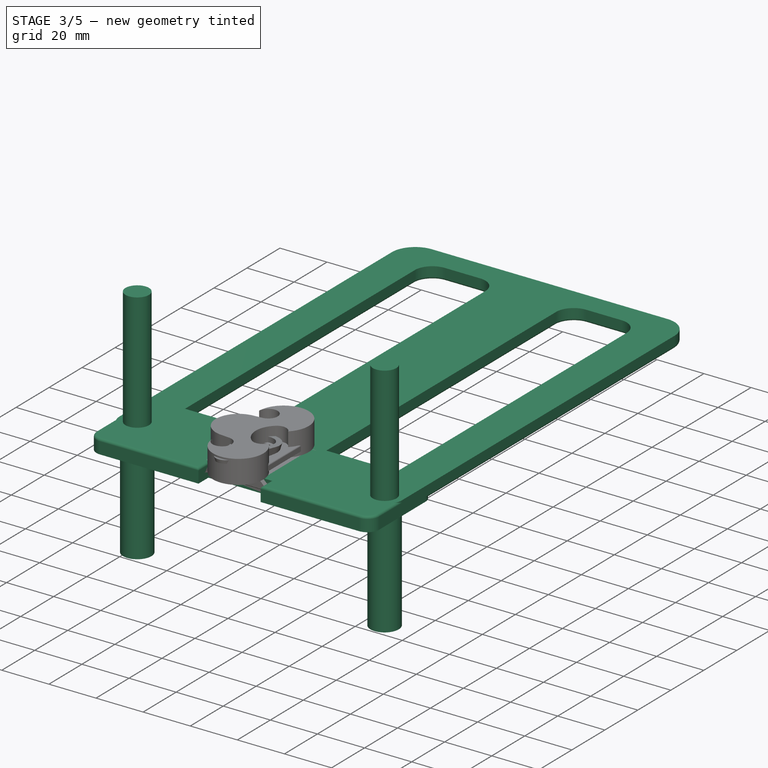
[diagram: stage 3 of 5 — iso view after this stage's code; geometry added in this stage tinted green]
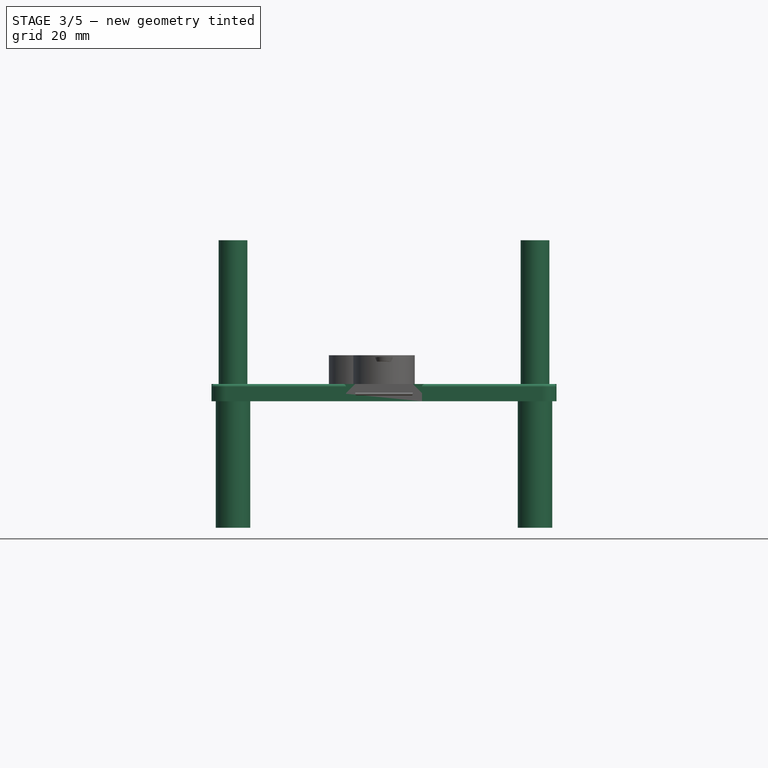
[diagram: stage 3 of 5 — front view after this stage's code; geometry added in this stage tinted green]
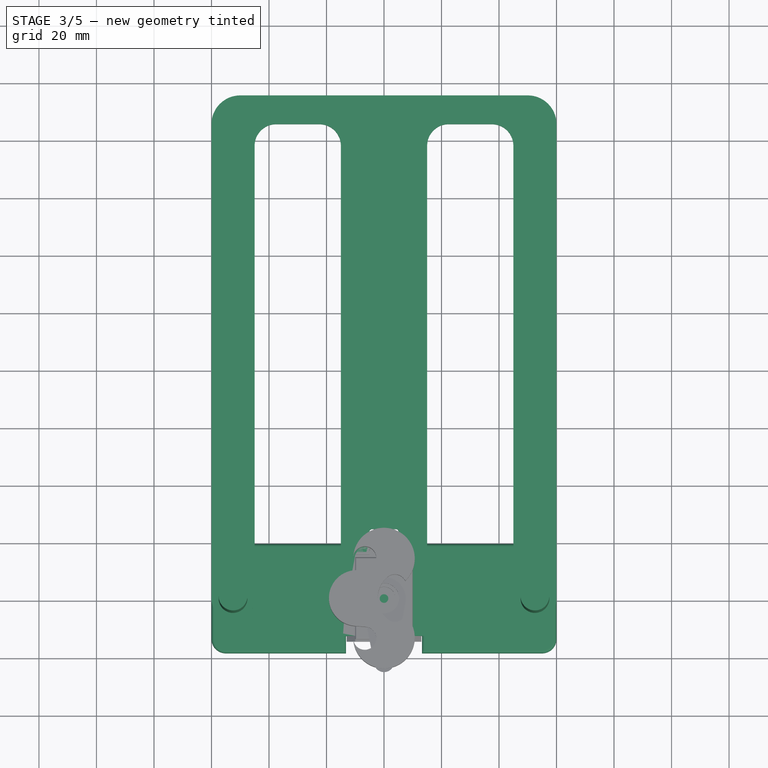
[diagram: stage 3 of 5 — top view after this stage's code; geometry added in this stage tinted green]
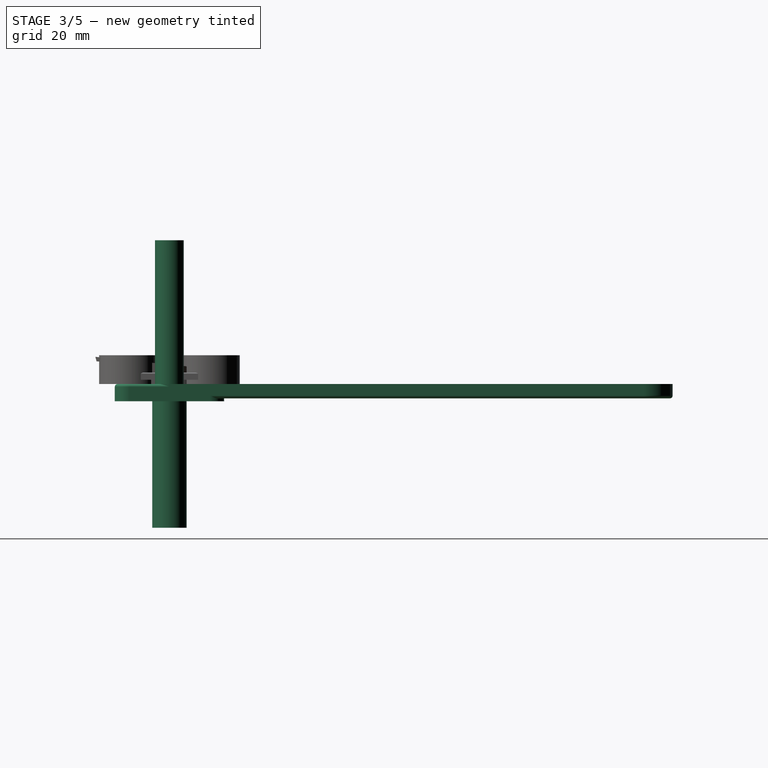
[diagram: stage 3 of 5 — right view after this stage's code; geometry added in this stage tinted green]
FEATURE [PartDesign::Body] Body014  label="[archive] U-Clip"
  Group = -> [Sketch038,Revolution003,Pad021,Mirrored,Fillet004,Sketch045,Pad022]
  Origin = -> Origin014
  Tip = -> Pad022
FEATURE [Sketcher::SketchObject] Sketch046
  FullyConstrained = true
  MapMode = 5
  Support = -> [XY_Plane017]
  expr: Constraints[46] = <<Dims>>.PlateHeight / 2 - 2mm
  expr: Constraints[27] = <<Dims>>.StandPlatformWidth
  expr: Constraints[25] = <<Dims>>.StandPlatformLength
  expr: Constraints[26] = <<Dims>>.StandLegWidth / 2
  expr: Constraints[29] = <<Dims>>.StandLegGap
  sketch-geometry (18):
    g0: LineSegment StartX=-45 StartY=-9.2e-15 StartZ=0 EndX=-45 EndY=157.5 EndZ=0
    g1: LineSegment StartX=-60 StartY=165 StartZ=0 EndX=-60 EndY=0 EndZ=0
    g2: LineSegment StartX=60 StartY=-9.2e-15 StartZ=0 EndX=60 EndY=165 EndZ=0
    g3: LineSegment StartX=45 StartY=157.5 StartZ=0 EndX=45 EndY=0 EndZ=0
    g4: LineSegment StartX=-15 StartY=-13 StartZ=0 EndX=-15 EndY=157.5 EndZ=0
    g5: LineSegment StartX=15 StartY=157.5 StartZ=0 EndX=15 EndY=-13 EndZ=0
    g6: ArcOfCircle CenterX=-50 CenterY=165 CenterZ=0 NormalX=0 NormalY=0 NormalZ=1 AngleXU=0 Radius=10 StartAngle=1.5708 EndAngle=3.14159
    g7: ArcOfCircle CenterX=50 CenterY=165 CenterZ=0 NormalX=0 NormalY=0 NormalZ=1 AngleXU=0 Radius=10 StartAngle=0 EndAngle=1.5708
    g8: LineSegment StartX=-50 StartY=175 StartZ=0 EndX=50 EndY=175 EndZ=0
    g9: ArcOfCircle CenterX=-52.5 CenterY=-9.2e-15 CenterZ=0 NormalX=0 NormalY=0 NormalZ=1 AngleXU=0 Radius=7.5 StartAngle=3.14159 EndAngle=6.28319
    g10: ArcOfCircle CenterX=52.5 CenterY=-9.2e-15 CenterZ=0 NormalX=0 NormalY=0 NormalZ=1 AngleXU=0 Radius=7.5 StartAngle=3.14159 EndAngle=6.28319
    g11: LineSegment StartX=-15 StartY=-13 StartZ=0 EndX=15 EndY=-13 EndZ=0
    g12: LineSegment StartX=-37.5 StartY=165 StartZ=0 EndX=-22.5 EndY=165 EndZ=0
    g13: LineSegment StartX=22.5 StartY=165 StartZ=0 EndX=37.5 EndY=165 EndZ=0
    g14: ArcOfCircle CenterX=37.5 CenterY=157.5 CenterZ=0 NormalX=0 NormalY=0 NormalZ=1 AngleXU=0 Radius=7.5 StartAngle=1.3e-15 EndAngle=1.5708
    g15: ArcOfCircle CenterX=22.5 CenterY=157.5 CenterZ=0 NormalX=0 NormalY=0 NormalZ=1 AngleXU=0 Radius=7.5 StartAngle=1.5708 EndAngle=3.14159
    g16: ArcOfCircle CenterX=-22.5 CenterY=157.5 CenterZ=0 NormalX=0 NormalY=0 NormalZ=1 AngleXU=0 Radius=7.5 StartAngle=0 EndAngle=1.5708
    g17: ArcOfCircle CenterX=-37.5 CenterY=157.5 CenterZ=0 NormalX=0 NormalY=0 NormalZ=1 AngleXU=0 Radius=7.5 StartAngle=1.5708 EndAngle=3.14159
  constraints (51):
    c: Vertical(g0)
    c: Vertical(g1)
    c: Vertical(g2)
    c: Vertical(g3)
    c: Vertical(g4)
    c: Vertical(g5)
    c: Symmetric(g1,g2,g-2)
    c: Coincident(g6,g1)
    c: Coincident(g7,g2)
    c: Coincident(g8,g6)
    c: Coincident(g8,g7)
    c: Horizontal(g8)
    c: Vertical(g7,g7)
    c: Horizontal(g2,g7)
    c: Equal(g7,g6)
    c: Vertical(g6,g6)
    c: Coincident(g9,g1)
    c: Coincident(g9,g0)
    c: Coincident(g10,g3)
    c: Coincident(g10,g2)
    c: Horizontal(g1,g9)
    c: Horizontal(g9,g0)
    c: Horizontal(g0,g3)
    c: Horizontal(g3,g10)
    c: Horizontal(g10,g2)
    c: DistanceY(g7) = 175
    c: Radius(g10) = 7.5
    c: DistanceX(g4,g5) = 30
    c: Equal(g10,g9)
    c: DistanceX(g0,g3) = 90
    c: Horizontal(g12)
    c: Horizontal(g13)
    c: Tangent(g13,g14) = 1.5708
    c: Tangent(g3,g14) = 1.5708
    c: Tangent(g13,g15) = 1.5708
    c: Tangent(g5,g15) = -1.5708
    c: Tangent(g4,g16) = -1.5708
    c: Tangent(g12,g16) = 1.5708
    c: Tangent(g12,g17) = 1.5708
    c: Tangent(g0,g17) = 1.5708
    c: Equal(g17,g16)
    c: Equal(g15,g14)
    c: Equal(g14,g10)
    c: Symmetric(g16,g15,g-2)
    c: Horizontal(g12,g6)
    c: Radius(g6) = 10
    c: DistanceY(g11,g-1) = 13
    c: PointOnObject(g10,g-1)
    c: Coincident(g11,g5)
    c: Coincident(g11,g4)
    c: Symmetric(g5,g4,g-2)
FEATURE [PartDesign::Pad] Pad023
  Direction = (1,1,1)
  Length = 5
  Length2 = 100
  Profile = -> Sketch046
  Reversed = true
  Type = 0
  expr: Length = <<Dims>>.PlateThickness + 2mm
FEATURE [Sketcher::SketchObject] Sketch047
  FullyConstrained = true
  MapMode = 5
  Support = -> [XY_Plane017]
  expr: Constraints[3] = <<Dims>>.StandPoleRadius
  expr: Constraints[4] = <<Dims>>.StandLegGap + <<Dims>>.StandLegWidth
  sketch-geometry (2):
    g0: Circle CenterX=-52.5 CenterY=0 CenterZ=0 NormalX=0 NormalY=0 NormalZ=1 AngleXU=0 Radius=5
    g1: Circle CenterX=52.5 CenterY=0 CenterZ=0 NormalX=0 NormalY=0 NormalZ=1 AngleXU=0 Radius=5
  constraints (5):
    c: PointOnObject(g0,g-1)
    c: Equal(g1,g0)
    c: Symmetric(g0,g1,g-2)
    c: Radius(g1) = 5
    c: DistanceX(g0,g1) = 105
FEATURE [PartDesign::Pad] Pad024
  BaseFeature = -> Pad023
  Direction = (1,1,1)
  Length = 50
  Length2 = 100
  Profile = -> Sketch047
  Type = 0
  expr: Length = <<Dims>>.StandPoleLength
FEATURE [Sketcher::SketchObject] Sketch048
  FullyConstrained = false
  MapMode = 5
  Support = -> [XY_Plane017]
  expr: Constraints[7] = <<Dims>>.PlateHeight / 2 + <<Dims>>.PlateMargin
  expr: Constraints[5] = <<Dims>>.PlateWidth + <<Dims>>.PlateMargin * 2
  sketch-geometry (4):
    g0: LineSegment StartX=-13.2 StartY=15.2 StartZ=0 EndX=13.2 EndY=15.2 EndZ=0
    g1: LineSegment StartX=13.2 StartY=15.2 StartZ=0 EndX=13.2 EndY=-26.817 EndZ=0
    g2: LineSegment StartX=13.2 StartY=-26.817 StartZ=0 EndX=-13.2 EndY=-26.817 EndZ=0
    g3: LineSegment StartX=-13.2 StartY=-26.817 StartZ=0 EndX=-13.2 EndY=15.2 EndZ=0
  constraints (10):
    c: Coincident(g1,g2)
    c: Coincident(g2,g3)
    c: Coincident(g3,g0)
    c: Horizontal(g0)
    c: Vertical(g3)
    c: DistanceX(g2,g2) = 26.4
    c: Symmetric(g1,g2,g-2)
    c: DistanceY(g1) = 15.2
    c: Vertical(g1)
    c: Coincident(g0,g1)
FEATURE [Sketcher::SketchObject] Sketch049
  FullyConstrained = true
  MapMode = 5
  Support = -> [XY_Plane018]
  expr: Constraints[15] = <<Dims>>.PlateKeyRadius
  expr: Constraints[13] = <<Dims>>.PlateHeight
  expr: Constraints[12] = <<Dims>>.PlateWidth
  sketch-geometry (6):
    g0: LineSegment StartX=-13 StartY=15 StartZ=0 EndX=-5 EndY=15 EndZ=0
    g1: LineSegment StartX=13 StartY=15 StartZ=0 EndX=13 EndY=-15 EndZ=0
    g2: LineSegment StartX=13 StartY=-15 StartZ=0 EndX=-13 EndY=-15 EndZ=0
    g3: LineSegment StartX=-13 StartY=-15 StartZ=0 EndX=-13 EndY=15 EndZ=0
    g4: ArcOfCircle CenterX=0 CenterY=15 CenterZ=0 NormalX=0 NormalY=0 NormalZ=1 AngleXU=0 Radius=5 StartAngle=0 EndAngle=3.14159
    g5: LineSegment StartX=5 StartY=15 StartZ=0 EndX=13 EndY=15 EndZ=0
  constraints (16):
    c: Coincident(g5,g1)
    c: Coincident(g1,g2)
    c: Coincident(g2,g3)
    c: Coincident(g3,g0)
    c: Horizontal(g0)
    c: Vertical(g3)
    c: PointOnObject(g4,g0)
    c: Coincident(g0,g4)
    c: Coincident(g5,g4)
    c: Tangent(g0,g5)
    c: PointOnObject(g4,g-2)
    c: Symmetric(g2,g1,g-2)
    c: DistanceX(g2,g2) = 26
    c: DistanceY(g1,g1) = 30
    c: Symmetric(g1,g1,g-1)
    c: Radius(g4) = 5
FEATURE [PartDesign::Pad] Pad025
  Direction = (1,1,1)
  Length = 3
  Length2 = 100
  Profile = -> Sketch049
  Reversed = true
  Type = 0
  expr: Length = <<Dims>>.PlateThickness
FEATURE [Sketcher::SketchObject] Sketch050
  FullyConstrained = true
  MapMode = 5
  Support = -> [XY_Plane018]
  expr: Constraints[13] = <<Dims>>.StageLength + <<Dims>>.BonusStageLength + <<Dims>>.PlatePieceMargin
  expr: Constraints[14] = <<Dims>>.LRADiameter / 2
  expr: Constraints[9] = <<Dims>>.LRADiameter / 2 + <<Dims>>.WallThickness * 3 + <<Dims>>.FabricGap * 2 + <<Dims>>.PlatePieceMargin
  sketch-geometry (6):
    g0: ArcOfCircle CenterX=0 CenterY=0 CenterZ=0 NormalX=0 NormalY=0 NormalZ=1 AngleXU=0 Radius=7.25 StartAngle=0 EndAngle=3.14159
    g1: LineSegment StartX=-7.25 StartY=9e-16 StartZ=0 EndX=-7.25 EndY=-12.1 EndZ=0
    g2: LineSegment StartX=-7.25 StartY=-12.1 StartZ=0 EndX=7.25 EndY=-12.1 EndZ=0
    g3: LineSegment StartX=7.25 StartY=-12.1 StartZ=0 EndX=7.25 EndY=0 EndZ=0
    g4: Circle CenterX=0 CenterY=0 CenterZ=0 NormalX=0 NormalY=0 NormalZ=1 AngleXU=0 Radius=5.25
    g5: GeomPoint X=0 Y=5.25 Z=0
  constraints (15):
    c: Coincident(g0,g-1)
    c: PointOnObject(g0,g-1)
    c: PointOnObject(g0,g-1)
    c: Tangent(g0,g1) = -1.5708
    c: Coincident(g1,g2)
    c: Horizontal(g2)
    c: Coincident(g2,g3)
    c: Coincident(g3,g0)
    c: Vertical(g3)
    c: Radius(g0) = 7.25
    c: Coincident(g4,g0)
    c: PointOnObject(g5,g4)
    c: PointOnObject(g5,g-2)
    c: DistanceY(g2,g5) = 17.35
    c: Radius(g4) = 5.25
FEATURE [PartDesign::Pocket] Pocket010
  BaseFeature = -> Pad025
  Length = 1.5
  Length2 = 100
  Profile = -> Sketch050
  Type = 0
  expr: Length = <<Dims>>.PlateThickness / 2
FEATURE [Sketcher::SketchObject] Sketch051
  FullyConstrained = true
  MapMode = 5
  Support = -> [XY_Plane019]
  expr: Constraints[21] = <<Dims>>.StandLegWidth / 2
  expr: Constraints[20] = <<Dims>>.PlateHeight + 8mm
  expr: Constraints[18] = <<Dims>>.StandLegGap + <<Dims>>.StandLegWidth
  expr: Constraints[17] = <<Dims>>.StandPoleRadius + <<Dims>>.PlateMargin
  sketch-geometry (10):
    g0: LineSegment StartX=-55 StartY=19 StartZ=0 EndX=55 EndY=19 EndZ=0
    g1: LineSegment StartX=55 StartY=-19 StartZ=0 EndX=-55 EndY=-19 EndZ=0
    g2: LineSegment StartX=60 StartY=14 StartZ=0 EndX=60 EndY=-14 EndZ=0
    g3: LineSegment StartX=-60 StartY=14 StartZ=0 EndX=-60 EndY=-14 EndZ=0
    g4: ArcOfCircle CenterX=55 CenterY=14 CenterZ=0 NormalX=0 NormalY=0 NormalZ=1 AngleXU=0 Radius=5 StartAngle=0 EndAngle=1.5708
    g5: ArcOfCircle CenterX=55 CenterY=-14 CenterZ=0 NormalX=0 NormalY=0 NormalZ=1 AngleXU=0 Radius=5 StartAngle=4.71239 EndAngle=6.28319
    g6: ArcOfCircle CenterX=-55 CenterY=-14 CenterZ=0 NormalX=0 NormalY=0 NormalZ=1 AngleXU=0 Radius=5 StartAngle=3.14159 EndAngle=4.71239
    g7: ArcOfCircle CenterX=-55 CenterY=14 CenterZ=0 NormalX=0 NormalY=0 NormalZ=1 AngleXU=0 Radius=5 StartAngle=1.5708 EndAngle=3.14159
    g8: Circle CenterX=-52.5 CenterY=0 CenterZ=0 NormalX=0 NormalY=0 NormalZ=1 AngleXU=0 Radius=5.2
    g9: Circle CenterX=52.5 CenterY=0 CenterZ=0 NormalX=0 NormalY=0 NormalZ=1 AngleXU=0 Radius=5.2
  constraints (23):
    c: Horizontal(g0)
    c: Horizontal(g1)
    c: Vertical(g2)
    c: Vertical(g3)
    c: Tangent(g0,g4) = 1.5708
    c: Tangent(g2,g4) = 1.5708
    c: Tangent(g2,g5) = 1.5708
    c: Tangent(g1,g5) = 1.5708
    c: Tangent(g1,g6) = 1.5708
    c: Tangent(g3,g6) = -1.5708
    c: Tangent(g3,g7) = -1.5708
    c: Tangent(g0,g7) = 1.5708
    c: Equal(g7,g6)
    c: Symmetric(g4,g7,g-2)
    c: Symmetric(g5,g4,g-1)
    c: PointOnObject(g8,g-1)
    c: Equal(g8,g9)
    c: Radius(g9) = 5.2
    c: DistanceX(g8,g9) = 105
    c: Symmetric(g9,g8,g-2)
    c: DistanceY(g1,g0) = 38
    c: DistanceX(g9,g2) = 7.5
    c: Radius(g5) = 5
FEATURE [PartDesign::Pad] Pad026
  Direction = (1,1,1)
  Length = 6
  Length2 = 100
  Profile = -> Sketch051
  Reversed = true
  Type = 0
  expr: Length = <<Dims>>.PlateThickness * 2
FEATURE [Sketcher::SketchObject] Sketch052
  AttachmentOffset = pos=(0,0,-6) rot=(0,0,1;0rad)
  FullyConstrained = true
  MapMode = 5
  Placement = pos=(0,0,-6) rot=(0,0,1;0rad)
  Support = -> [XY_Plane019]
  expr: .AttachmentOffset.Base.z = -<<Pad026>>.Length
  expr: Constraints[4] = <<Dims>>.StandPoleRadius + 1mm
  expr: Constraints[3] = <<Dims>>.StandLegGap + <<Dims>>.StandLegWidth
  sketch-geometry (2):
    g0: Circle CenterX=-52.5 CenterY=0 CenterZ=0 NormalX=0 NormalY=0 NormalZ=1 AngleXU=0 Radius=6
    g1: Circle CenterX=52.5 CenterY=0 CenterZ=0 NormalX=0 NormalY=0 NormalZ=1 AngleXU=0 Radius=6
  constraints (5):
    c: PointOnObject(g0,g-1)
    c: Equal(g0,g1)
    c: Symmetric(g1,g0,g-2)
    c: DistanceX(g0,g1) = 105
    c: Radius(g1) = 6
FEATURE [PartDesign::Pad] Pad027
  BaseFeature = -> Pad026
  Direction = (1,1,1)
  Length = 44
  Length2 = 100
  Profile = -> Sketch052
  Reversed = true
  Type = 0
  expr: Length = <<Pad024>>.Length - Pad026.Length
FEATURE [Sketcher::SketchObject] Sketch053
  FullyConstrained = true
  MapMode = 5
  Support = -> [XY_Plane019]
  expr: Constraints[4] = <<Dims>>.StandLegGap + <<Dims>>.StandLegWidth
  expr: Constraints[3] = <<Dims>>.StandPoleRadius + <<Dims>>.PlateMargin / 4
  sketch-geometry (2):
    g0: Circle CenterX=-52.5 CenterY=0 CenterZ=0 NormalX=0 NormalY=0 NormalZ=1 AngleXU=0 Radius=5.05
    g1: Circle CenterX=52.5 CenterY=0 CenterZ=0 NormalX=0 NormalY=0 NormalZ=1 AngleXU=0 Radius=5.05
  constraints (5):
    c: PointOnObject(g0,g-1)
    c: Equal(g1,g0)
    c: Symmetric(g0,g1,g-2)
    c: Radius(g1) = 5.05
    c: DistanceX(g0,g1) = 105
FEATURE [PartDesign::Pocket] Pocket011
  BaseFeature = -> Pad027
  Length = 5
  Length2 = 100
  Midplane = true
  Profile = -> Sketch053
  Type = 1
FEATURE [Sketcher::SketchObject] Sketch055
  FullyConstrained = true
  MapMode = 5
  Support = -> [XY_Plane019]
  expr: Constraints[14] = <<Dims>>.PlateHeight / 2 + <<Dims>>.PlateMargin
  expr: Constraints[10] = <<Dims>>.PlateKeyRadius + <<Dims>>.PlateMargin
  expr: Constraints[6] = <<Dims>>.PlateWidth + <<Dims>>.PlateMargin * 2
  sketch-geometry (6):
    g0: LineSegment StartX=-13.2 StartY=-15.2 StartZ=0 EndX=13.2 EndY=-15.2 EndZ=0
    g1: LineSegment StartX=13.2 StartY=-15.2 StartZ=0 EndX=13.2 EndY=15.2 EndZ=0
    g2: LineSegment StartX=13.2 StartY=15.2 StartZ=0 EndX=5.2 EndY=15.2 EndZ=0
    g3: LineSegment StartX=-13.2 StartY=15.2 StartZ=0 EndX=-13.2 EndY=-15.2 EndZ=0
    g4: ArcOfCircle CenterX=0 CenterY=15.2 CenterZ=0 NormalX=0 NormalY=0 NormalZ=1 AngleXU=0 Radius=5.2 StartAngle=0 EndAngle=3.14159
    g5: LineSegment StartX=-5.2 StartY=15.2 StartZ=0 EndX=-13.2 EndY=15.2 EndZ=0
  constraints (16):
    c: Coincident(g0,g1)
    c: Coincident(g1,g2)
    c: Coincident(g5,g3)
    c: Coincident(g3,g0)
    c: Horizontal(g2)
    c: Vertical(g1)
    c: DistanceX(g0,g0) = 26.4
    c: Symmetric(g0,g0,g-2)
    c: PointOnObject(g4,g2)
    c: PointOnObject(g4,g-2)
    c: Radius(g4) = 5.2
    c: Coincident(g2,g4)
    c: Coincident(g5,g4)
    c: Tangent(g2,g5)
    c: DistanceY(g1) = 15.2
    c: Symmetric(g0,g3,g-1)
FEATURE [PartDesign::Pocket] Pocket012
  BaseFeature = -> Pocket011
  Length = 3.4
  Length2 = 100
  Profile = -> Sketch055
  Type = 0
  expr: Length = <<Dims>>.PlateThickness + <<Dims>>.PlateMargin * 2
FEATURE [Sketcher::SketchObject] Sketch058
  FullyConstrained = true
  MapMode = 5
  Support = -> [XY_Plane017]
  expr: Constraints[5] = <<Dims>>.PlateKeyRadius * 2 + <<Dims>>.PlateMargin
  expr: Constraints[4] = <<Dims>>.PlateHeight / 2
  sketch-geometry (6):
    g0: LineSegment StartX=-5.1 StartY=15 StartZ=0 EndX=5.1 EndY=15 EndZ=0
    g1: LineSegment StartX=5.1 StartY=15 StartZ=0 EndX=5.1 EndY=23.2 EndZ=0
    g2: LineSegment StartX=4.1 StartY=24.2 StartZ=0 EndX=-4.1 EndY=24.2 EndZ=0
    g3: LineSegment StartX=-5.1 StartY=23.2 StartZ=0 EndX=-5.1 EndY=15 EndZ=0
    g4: ArcOfCircle CenterX=-4.1 CenterY=23.2 CenterZ=0 NormalX=0 NormalY=0 NormalZ=1 AngleXU=0 Radius=1 StartAngle=1.5708 EndAngle=3.14159
    g5: ArcOfCircle CenterX=4.1 CenterY=23.2 CenterZ=0 NormalX=0 NormalY=0 NormalZ=1 AngleXU=0 Radius=1 StartAngle=1e-15 EndAngle=1.5708
  constraints (15):
    c: Coincident(g0,g1)
    c: Coincident(g3,g0)
    c: Vertical(g1)
    c: Vertical(g3)
    c: DistanceY(g0) = 15
    c: DistanceX(g0,g0) = 10.2
    c: Equal(g1,g2)
    c: Tangent(g2,g4) = -1.5708
    c: Tangent(g3,g4) = -1.5708
    c: Tangent(g2,g5) = -1.5708
    c: Tangent(g1,g5) = -1.5708
    c: Horizontal(g2)
    c: Symmetric(g0,g0,g-2)
    c: Equal(g5,g4)
    c: Radius(g5) = 1
FEATURE [PartDesign::Fillet] Fillet005
  Base = -> Pad024 [Face5,Edge56,Edge54]
  BaseFeature = -> Pad024
  Radius = 1
  SupportTransform = false
FEATURE [PartDesign::Pocket] Pocket009
  BaseFeature = -> Fillet005
  Length = 3.2
  Length2 = 100
  Profile = -> Sketch048
  Type = 0
  expr: Length = <<Dims>>.PlateThickness + <<Dims>>.PlateMargin
FEATURE [PartDesign::Pocket] Pocket014
  BaseFeature = -> Pocket009
  Length = 5
  Length2 = 100
  Profile = -> Sketch058
  Type = 1
FEATURE [PartDesign::Draft] Draft
  Angle = 45
  Base = -> Pocket014 [Face33,Face25]
  BaseFeature = -> Pocket014
  NeutralPlane = -> Pocket014 [Face54]
  SupportTransform = false
FEATURE [PartDesign::Body] Body016  label="[archive] PlatformJig"
  Group = -> [Sketch046,Pad023,Sketch047,Pad024,Sketch048,Fillet005,Pocket009,Sketch058,Pocket014,Draft]
  Origin = -> Origin016
  Tip = -> Draft
FEATURE [Sketcher::SketchObject] Sketch059
  FullyConstrained = false
  MapMode = 5
  Placement = pos=(0,0,0) rot=(1,0,0;1.5708rad)
  Support = -> [XZ_Plane017]
  expr: Constraints[16] = <<Dims>>.PlateWidth / 2
  expr: Constraints[12] = <<Dims>>.PlateThickness
  sketch-geometry (11):
    g0: LineSegment StartX=10 StartY=0 StartZ=0 EndX=-10 EndY=0 EndZ=0
    g1: LineSegment StartX=-10 StartY=0 StartZ=0 EndX=-11.2929 EndY=-1.29289 EndZ=0
    g2: LineSegment StartX=-10.5858 StartY=-3 StartZ=0 EndX=10.5858 EndY=-3 EndZ=0
    g3: LineSegment StartX=11.2929 StartY=-1.29289 StartZ=0 EndX=10 EndY=0 EndZ=0
    g4: ArcOfCircle CenterX=10.5858 CenterY=-2 CenterZ=0 NormalX=0 NormalY=0 NormalZ=1 AngleXU=0 Radius=1 StartAngle=4.71239 EndAngle=7.06858
    g5: ArcOfCircle CenterX=-10.5858 CenterY=-2 CenterZ=0 NormalX=0 NormalY=0 NormalZ=1 AngleXU=0 Radius=1 StartAngle=2.35619 EndAngle=4.71239
    g6: LineSegment StartX=10.5858 StartY=-3 StartZ=0 EndX=13 EndY=-3 EndZ=0
    g7: LineSegment StartX=16.2553 StartY=4.39838 StartZ=0 EndX=-16.4326 EndY=4.39838 EndZ=0
    g8: LineSegment StartX=-16.4326 StartY=4.39838 StartZ=0 EndX=-16.4326 EndY=-6.57712 EndZ=0
    g9: LineSegment StartX=-16.4326 StartY=-6.57712 StartZ=0 EndX=16.2553 EndY=-6.57712 EndZ=0
    g10: LineSegment StartX=16.2553 StartY=-6.57712 StartZ=0 EndX=16.2553 EndY=4.39838 EndZ=0
  constraints (25):
    c: Coincident(g0,g1)
    c: Coincident(g3,g0)
    c: PointOnObject(g0,g-1)
    c: Symmetric(g0,g0,g-2)
    c: Angle(g3,g2) = 0.785398
    c: Tangent(g3,g4) = -1.5708
    c: Tangent(g2,g4) = -1.5708
    c: Tangent(g1,g5) = -1.5708
    c: Tangent(g2,g5) = -1.5708
    c: Equal(g4,g5)
    c: Symmetric(g5,g4,g-2)
    c: Radius(g4) = 1
    c: DistanceY(g2,g0) = 3
    c: Coincident(g6,g2)
    c: Horizontal(g6)
    c: PointOnObject(g6,g3)
    c: DistanceX(g6) = 13
    c: Coincident(g7,g8)
    c: Coincident(g8,g9)
    c: Coincident(g9,g10)
    c: Coincident(g10,g7)
    c: Horizontal(g7)
    c: Horizontal(g9)
    c: Vertical(g8)
    c: Vertical(g10)
FEATURE [PartDesign::Pocket] Pocket015  label="SideFillet"
  BaseFeature = -> Pocket010
  Length = 5
  Length2 = 100
  Midplane = true
  Profile = -> Sketch059
  Type = 1
FEATURE [PartDesign::Fillet] Fillet006
  Base = -> Pocket015 [Edge22,Edge19,Edge4,Edge20]
  BaseFeature = -> Pocket015
  Radius = 1
  SupportTransform = false
FEATURE [PartDesign::Body] Body017  label="[archive] Bottom-Plate"
  Group = -> [Sketch049,Pad025,Sketch050,Pocket010,Sketch059,Pocket015,Fillet006]
  Origin = -> Origin017
  Placement = pos=(0,0,-0.2) rot=(0,0,1;0rad)
  Tip = -> Fillet006
  expr: .Placement.Base.z = -<<Dims>>.PlateMargin
FEATURE [Sketcher::SketchObject] Sketch060
  FullyConstrained = false
  MapMode = 5
  Support = -> [XY_Plane019]
  expr: Constraints[9] = -<<Dims>>.PlateHeight / 2 + 2mm
  expr: Constraints[7] = <<Dims>>.PlateWidth + <<Dims>>.PlateMargin * 2
  sketch-geometry (4):
    g0: LineSegment StartX=-13.2 StartY=-26.2692 StartZ=0 EndX=13.2 EndY=-26.2692 EndZ=0
    g1: LineSegment StartX=13.2 StartY=-26.2692 StartZ=0 EndX=13.2 EndY=-13 EndZ=0
    g2: LineSegment StartX=13.2 StartY=-13 StartZ=0 EndX=-13.2 EndY=-13 EndZ=0
    g3: LineSegment StartX=-13.2 StartY=-13 StartZ=0 EndX=-13.2 EndY=-26.2692 EndZ=0
  constraints (10):
    c: Coincident(g0,g1)
    c: Coincident(g1,g2)
    c: Coincident(g2,g3)
    c: Coincident(g3,g0)
    c: Horizontal(g2)
    c: Vertical(g1)
    c: Vertical(g3)
    c: DistanceX(g0,g0) = 26.4
    c: Symmetric(g0,g0,g-2)
    c: DistanceY(g2) = -13
FEATURE [PartDesign::Draft] Draft001
  Angle = 45
  Base = -> Pocket012 [Face15,Face17]
  BaseFeature = -> Pocket012
  NeutralPlane = -> Pocket012 [Face4]
  Reversed = true
  SupportTransform = false
FEATURE [PartDesign::Pocket] Pocket016
  BaseFeature = -> Draft001
  Length = 5
  Length2 = 100
  Midplane = true
  Profile = -> Sketch060
  Type = 1
FEATURE [PartDesign::Fillet] Fillet007
  Base = -> Pocket016 [Face2,Face6]
  BaseFeature = -> Pocket016
  Radius = 1
  SupportTransform = false
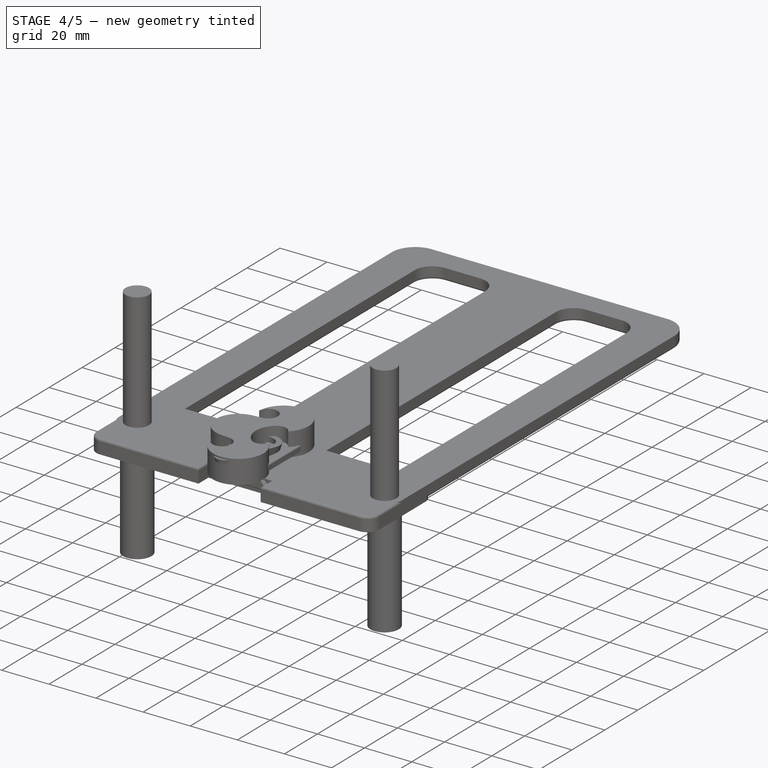
[diagram: stage 4 of 5 — iso view after this stage's code; geometry added in this stage tinted green]
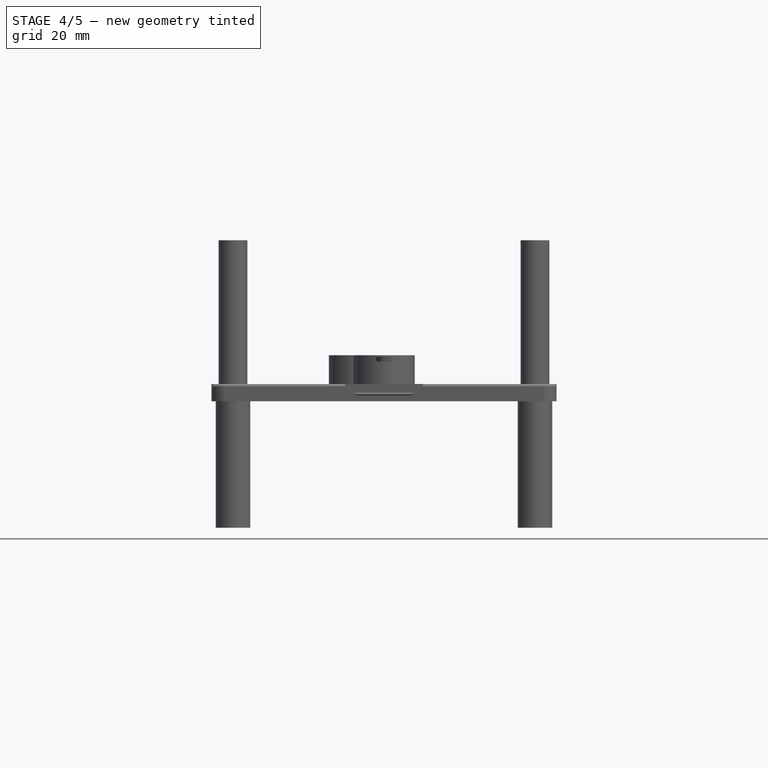
[diagram: stage 4 of 5 — front view after this stage's code; geometry added in this stage tinted green]
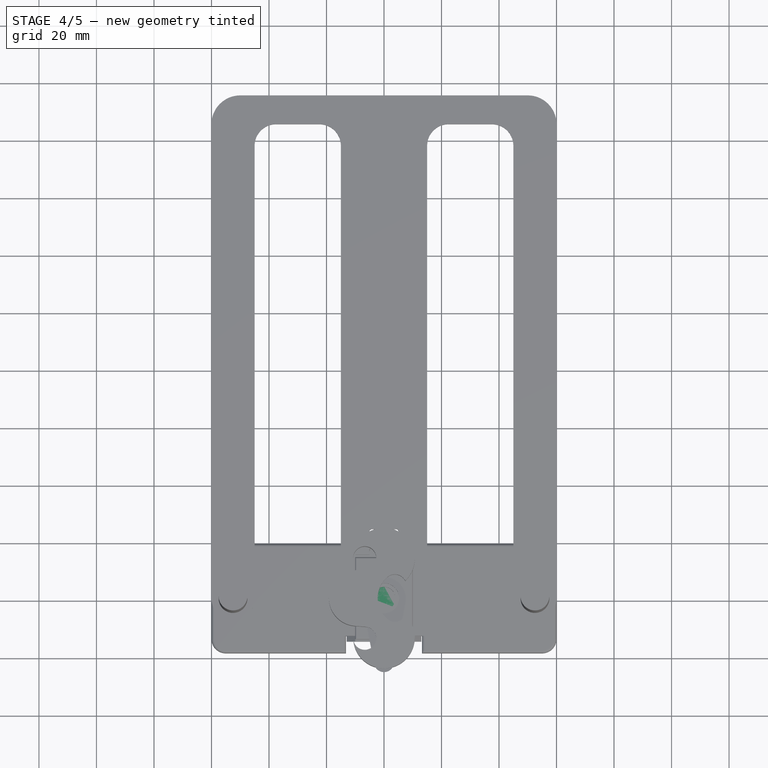
[diagram: stage 4 of 5 — top view after this stage's code; geometry added in this stage tinted green]
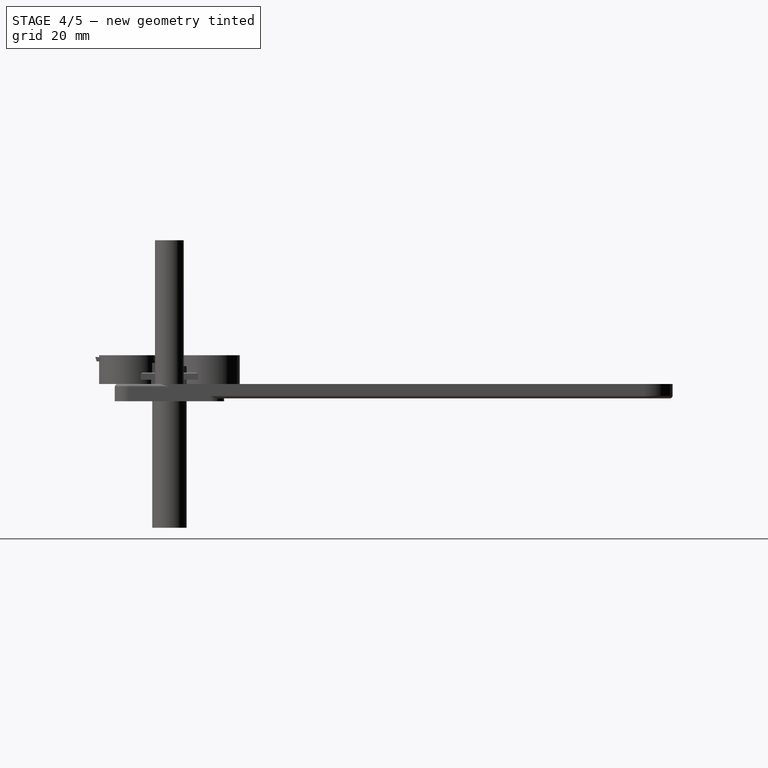
[diagram: stage 4 of 5 — right view after this stage's code; geometry added in this stage tinted green]
FEATURE [PartDesign::Body] Body004  label="[archive] Latch"
  Group = -> [Sketch012,Pad005,Sketch013,Fillet,Revolution002,PolarPattern]
  Origin = -> Origin004
  Placement = pos=(0,0,3) rot=(0,0,1;0rad)
  Tip = -> PolarPattern
  expr: .Placement.Base.z = <<Dims>>.Height
FEATURE [Sketcher::SketchObject] Sketch024
  FullyConstrained = true
  MapMode = 5
  Support = -> [XY_Plane011]
  expr: Constraints[7] = -(<<Dims>>.StageLength - <<Dims>>.LRADiameter / 2 + <<Dims>>.BonusStageLength)
  expr: Constraints[2] = <<Dims>>.LRADiameter + <<Dims>>.WallThickness * 2 + <<Dims>>.FabricGap * 2
  expr: Constraints[4] = <<Dims>>.StageWidth
  sketch-geometry (4):
    g0: ArcOfCircle CenterX=0 CenterY=0 CenterZ=0 NormalX=0 NormalY=0 NormalZ=1 AngleXU=0 Radius=5.95 StartAngle=5.20235 EndAngle=10.5056
    g1: LineSegment StartX=-2.8 StartY=-5.25 StartZ=0 EndX=-2.8 EndY=-12 EndZ=0
    g2: LineSegment StartX=2.8 StartY=-12 StartZ=0 EndX=2.8 EndY=-5.25 EndZ=0
    g3: LineSegment StartX=-2.8 StartY=-12 StartZ=0 EndX=2.8 EndY=-12 EndZ=0
  constraints (11):
    c: Vertical(g1)
    c: Vertical(g2)
    c: Diameter(g0) = 11.9
    c: Coincident(g0,g-1)
    c: DistanceX(g1,g2) = 5.6
    c: Coincident(g0,g2)
    c: Coincident(g0,g1)
    c: DistanceY(g3) = -12
    c: Coincident(g2,g3)
    c: Coincident(g3,g1)
    c: Symmetric(g1,g2,g-2)
FEATURE [PartDesign::Pad] Pad013
  Direction = (1,1,1)
  Length = 2.5
  Length2 = 100
  Profile = -> Sketch024
  Type = 0
FEATURE [PartDesign::Body] Body  label="[archive] clip1"
  Group = -> [Sketch,Revolution,Sketch029,Pocket]
  Origin = -> Origin
  Placement = pos=(0,0,2.7) rot=(0,0,1;0rad)
  Tip = -> Pocket
  expr: .Placement.Base.z = <<Pad013>>.Length + <<Dims>>.FabricGap
FEATURE [PartDesign::Thickness] Thickness
  Base = -> Pad013 [Face3,Face6]
  BaseFeature = -> Pad013
  Intersection = false
  Join = 1
  Mode = 0
  SupportTransform = false
  Value = 0.5
  expr: Value = <<Dims>>.WallThickness
FEATURE [Sketcher::SketchObject] Sketch030
  AttachmentOffset = pos=(0,0,1.5) rot=(0,0,1;0rad)
  FullyConstrained = false
  MapMode = 5
  Placement = pos=(0,0,1.5) rot=(0,0,1;0rad)
  Support = -> [XY_Plane011]
  expr: Constraints[8] = <<Dims>>.LRADiameter / 2 + <<Dims>>.WallThickness * 2 + <<Dims>>.FabricGap
  expr: Constraints[3] = <<Dims>>.StageWidth + <<Dims>>.WallThickness * 2
  expr: Constraints[7] = <<Dims>>.LRADiameter / 2 + <<Dims>>.WallThickness + <<Dims>>.FabricGap
  sketch-geometry (8):
    g0: LineSegment StartX=3.3 StartY=-13.3526 StartZ=0 EndX=-3.3 EndY=-13.3526 EndZ=0
    g1: LineSegment StartX=-3.3 StartY=-13.3526 StartZ=0 EndX=-3.3 EndY=-5.54189 EndZ=0
    g2: ArcOfCircle CenterX=0 CenterY=0 CenterZ=0 NormalX=0 NormalY=0 NormalZ=1 AngleXU=0 Radius=5.95 StartAngle=4.10274 EndAngle=5.32204
    g3: ArcOfCircle CenterX=0 CenterY=0 CenterZ=0 NormalX=0 NormalY=0 NormalZ=1 AngleXU=0 Radius=6.45 StartAngle=4.10274 EndAngle=4.17531
    g4: ArcOfCircle CenterX=3.55 CenterY=-5.08306 CenterZ=0 NormalX=0 NormalY=0 NormalZ=1 AngleXU=0 Radius=0.25 StartAngle=2.18045 EndAngle=5.32204
    g5: LineSegment StartX=3.3 StartY=-5.54189 StartZ=0 EndX=3.3 EndY=-13.3526 EndZ=0
    g6: ArcOfCircle CenterX=-3.55 CenterY=-5.08306 CenterZ=0 NormalX=0 NormalY=0 NormalZ=1 AngleXU=0 Radius=0.25 StartAngle=4.10272 EndAngle=7.24433
    g7: ArcOfCircle CenterX=0 CenterY=0 CenterZ=0 NormalX=0 NormalY=0 NormalZ=1 AngleXU=0 Radius=6.45 StartAngle=5.24947 EndAngle=5.32204
  constraints (20):
    c: Coincident(g5,g0)
    c: Coincident(g0,g1)
    c: Vertical(g1)
    c: DistanceX(g0,g0) = 6.6
    c: Symmetric(g0,g5,g-2)
    c: Coincident(g2,g-1)
    c: Coincident(g3,g-1)
    c: Radius(g2) = 5.95
    c: Radius(g3) = 6.45
    c: Symmetric(g6,g4,g-2)
    c: Tangent(g2,g6) = 1.5708
    c: Tangent(g2,g4) = 1.5708
    c: Coincident(g3,g6)
    c: Equal(g3,g7)
    c: Coincident(g3,g1)
    c: Coincident(g7,g5)
    c: Coincident(g3,g7)
    c: Tangent(g4,g5)
    c: Vertical(g5)
    c: Tangent(g7,g4) = -1.5708
FEATURE [PartDesign::Fillet] Fillet001
  Base = -> Thickness [Edge22,Edge24,Edge23,Edge14,Edge16]
  BaseFeature = -> Thickness
  Radius = 0.49
  SupportTransform = false
  expr: Radius = <<Dims>>.WallThickness - 0.01mm
FEATURE [PartDesign::Pocket] Pocket005
  BaseFeature = -> Fillet001
  Length = 5
  Length2 = 100
  Profile = -> Sketch030
  Reversed = true
  Type = 1
FEATURE [PartDesign::Body] Body011  label="[archive] ExternalCase001"
  Group = -> [Sketch024,Pad013,Sketch025,Thickness,Fillet001,Pocket005,Pad014,Sketch030]
  Origin = -> Origin011
  Tip = -> Pad014
FEATURE [Sketcher::SketchObject] Sketch035
  FullyConstrained = true
  MapMode = 5
  Support = -> [XY_Plane014]
  expr: Constraints[19] = <<Dims>>.WallThickness + <<Dims>>.FabricGap * 2
  expr: Constraints[18] = <<Dims>>.WallThickness
  expr: Constraints[17] = <<Dims>>.LRADiameter / 2
  expr: Constraints[3] = <<Dims>>.StageWidth
  expr: Constraints[6] = -(<<Dims>>.StageLength - <<Dims>>.LRADiameter / 2 + <<Dims>>.BonusStageLength)
  sketch-geometry (9):
    g0: ArcOfCircle CenterX=0 CenterY=0 CenterZ=0 NormalX=0 NormalY=0 NormalZ=1 AngleXU=0 Radius=6.65 StartAngle=5.14699 EndAngle=10.561
    g1: LineSegment StartX=-2.8 StartY=-6.03179 StartZ=0 EndX=-2.8 EndY=-12 EndZ=0
    g2: LineSegment StartX=2.8 StartY=-12 StartZ=0 EndX=2.8 EndY=-6.03179 EndZ=0
    g3: LineSegment StartX=-2.8 StartY=-12 StartZ=0 EndX=2.8 EndY=-12 EndZ=0
    g4: Circle CenterX=0 CenterY=0 CenterZ=0 NormalX=0 NormalY=0 NormalZ=1 AngleXU=0 Radius=5.25
    g5: Circle CenterX=0 CenterY=0 CenterZ=0 NormalX=0 NormalY=0 NormalZ=1 AngleXU=0 Radius=5.75
    g6: GeomPoint X=5.25 Y=0 Z=0
    g7: GeomPoint X=5.75 Y=0 Z=0
    g8: GeomPoint X=6.65 Y=0 Z=0
  constraints (21):
    c: Vertical(g1)
    c: Vertical(g2)
    c: Coincident(g0,g-1)
    c: DistanceX(g1,g2) = 5.6
    c: Coincident(g0,g2)
    c: Coincident(g0,g1)
    c: DistanceY(g3) = -12
    c: Coincident(g2,g3)
    c: Coincident(g3,g1)
    c: Symmetric(g1,g2,g-2)
    c: Coincident(g4,g0)
    c: Coincident(g5,g0)
    c: PointOnObject(g6,g4)
    c: PointOnObject(g7,g5)
    c: PointOnObject(g8,g-1)
    c: PointOnObject(g7,g-1)
    c: PointOnObject(g6,g-1)
    c: Radius(g4) = 5.25
    c: DistanceX(g6,g7) = 0.5
    c: DistanceX(g7,g8) = 0.9
    c: PointOnObject(g8,g0)
FEATURE [PartDesign::Pad] Pad016
  Direction = (1,1,1)
  Length = 2
  Length2 = 100
  Profile = -> Sketch035
  Type = 0
FEATURE [Sketcher::SketchObject] Sketch036
  FullyConstrained = false
  MapMode = 5
  Support = -> [XY_Plane014]
  expr: Constraints[6] = <<Dims>>.BonusStageLength
  expr: Constraints[5] = <<Dims>>.StageLength
  expr: Constraints[2] = <<Dims>>.LRADiameter
  expr: Constraints[10] = <<Dims>>.StageWidth / 2
  sketch-geometry (22):
    g0: LineSegment StartX=1.27116 StartY=-9.5 StartZ=0 EndX=-1.27116 EndY=-9.5 EndZ=0
    g1: LineSegment StartX=2.8 StartY=-12 StartZ=0 EndX=1 EndY=-12 EndZ=0
    g2: Circle CenterX=0 CenterY=0 CenterZ=0 NormalX=0 NormalY=0 NormalZ=1 AngleXU=0 Radius=5.25
    g3: GeomPoint X=0 Y=5.25 Z=0
    g4: LineSegment StartX=1.27116 StartY=-9.5 StartZ=0 EndX=1.9 EndY=-9.84103 EndZ=0
    g5: LineSegment StartX=1.9 StartY=-10.4881 StartZ=0 EndX=1 EndY=-10 EndZ=0
    g6: LineSegment StartX=-1 StartY=-10 StartZ=0 EndX=1 EndY=-10 EndZ=0
    g7: LineSegment StartX=1 StartY=-12 StartZ=0 EndX=1 EndY=-11.0238 EndZ=0
    g8: LineSegment StartX=1 StartY=-11.0238 StartZ=0 EndX=1.87803 EndY=-11.5 EndZ=0
    g9: LineSegment StartX=1.81013 StartY=-10.4393 StartZ=0 EndX=1.38108 EndY=-11.2305 EndZ=0
    g10: LineSegment StartX=1.9 StartY=-9.84103 StartZ=0 EndX=1.9 EndY=-10.4881 EndZ=0
    g11: LineSegment StartX=1.27116 StartY=-9.5 StartZ=0 EndX=1 EndY=-10 EndZ=0
    g12: LineSegment StartX=1.87803 StartY=-11.5 StartZ=0 EndX=2.8 EndY=-11.5 EndZ=0
    g13: LineSegment StartX=2.8 StartY=-11.5 StartZ=0 EndX=2.8 EndY=-12 EndZ=0
    g14: LineSegment StartX=-1.27116 StartY=-9.5 StartZ=0 EndX=-1.9 EndY=-9.84103 EndZ=0
    g15: LineSegment StartX=-1.9 StartY=-9.84103 StartZ=0 EndX=-1.9 EndY=-10.4881 EndZ=0
    g16: LineSegment StartX=-1.9 StartY=-10.4881 StartZ=0 EndX=-1 EndY=-10 EndZ=0
    g17: LineSegment StartX=-1 StartY=-11.0238 StartZ=0 EndX=-1 EndY=-12 EndZ=0
    g18: LineSegment StartX=-1 StartY=-12 StartZ=0 EndX=-2.8 EndY=-12 EndZ=0
    g19: LineSegment StartX=-2.8 StartY=-12 StartZ=0 EndX=-2.8 EndY=-11.5 EndZ=0
    g20: LineSegment StartX=-2.8 StartY=-11.5 StartZ=0 EndX=-1.87803 EndY=-11.5 EndZ=0
    g21: LineSegment StartX=-1.87803 StartY=-11.5 StartZ=0 EndX=-1 EndY=-11.0238 EndZ=0
  constraints (56):
    c: Horizontal(g1)
    c: Coincident(g2,g-1)
    c: Diameter(g2) = 10.5
    c: PointOnObject(g3,g2)
    c: PointOnObject(g3,g-2)
    c: DistanceY(g0,g3) = 14.75
    c: DistanceY(g1,g0) = 2.5
    c: Coincident(g4,g0)
    c: Parallel(g4,g5)
    c: Coincident(g6,g5)
    c: DistanceX(g1) = 2.8
    c: Coincident(g1,g7)
    c: Vertical(g7)
    c: Parallel(g5,g8)
    c: DistanceX(g4,g1) = 0.9
    c: DistanceX(g1) = 1
    c: Coincident(g8,g7)
    c: PointOnObject(g9,g8)
    c: Distance(g9) = 0.9
    c: Vertical(g7,g5)
    c: Coincident(g10,g4)
    c: Coincident(g10,g5)
    c: Vertical(g10)
    c: PointOnObject(g9,g5)
    c: Angle(g8,g9) = 1.5708
    c: DistanceY(g6,g0) = 0.5
    c: Coincident(g11,g0)
    c: Coincident(g11,g5)
    c: Angle(g11,g4) = 1.5708
    c: Horizontal(g12)
    c: Coincident(g13,g12)
    c: Coincident(g13,g1)
    c: Vertical(g13)
    c: Coincident(g8,g12)
    c: PointOnObject(g1,g8)
    c: DistanceY(g13,g13) = 0.5
    c: Symmetric(g0,g0,g-2)
    c: Symmetric(g6,g5,g-2)
    c: Coincident(g0,g14)
    c: Coincident(g14,g15)
    c: Coincident(g15,g16)
    c: Coincident(g16,g6)
    c: Symmetric(g15,g5,g-2)
    c: Symmetric(g14,g4,g-2)
    c: Vertical(g17)
    c: Coincident(g17,g18)
    c: Horizontal(g18)
    c: Coincident(g18,g19)
    c: Vertical(g19)
    c: Coincident(g19,g20)
    c: Horizontal(g20)
    c: Coincident(g20,g21)
    c: Coincident(g21,g17)
    c: Symmetric(g17,g7,g-2)
    c: Symmetric(g18,g1,g-2)
    c: Symmetric(g20,g8,g-2)
FEATURE [PartDesign::Thickness] Thickness002
  Base = -> Pad016 [Face3,Face6]
  BaseFeature = -> Pad016
  Intersection = false
  Join = 1
  Mode = 0
  SupportTransform = false
  Value = 0.5
  expr: Value = <<Dims>>.WallThickness
FEATURE [PartDesign::Fillet] Fillet002
  Base = -> Thickness002 [Edge22,Edge24,Edge23,Edge14,Edge16]
  BaseFeature = -> Thickness002
  Radius = 0.49
  SupportTransform = false
  expr: Radius = <<Dims>>.WallThickness - 0.01mm
FEATURE [PartDesign::Pad] Pad017
  BaseFeature = -> Fillet002
  Direction = (1,1,1)
  Length = 2
  Length2 = 100
  Profile = -> Sketch036
  Type = 0
  expr: Length = <<Pad016>>.Length
FEATURE [Sketcher::SketchObject] Sketch037
  FullyConstrained = true
  MapMode = 5
  Support = -> [XY_Plane014]
  expr: Constraints[21] = <<Dims>>.LRADiameter / 2 + <<Dims>>.WallThickness * 2 + <<Dims>>.FabricGap * 2
  expr: Constraints[29] = <<Dims>>.WallThickness
  expr: Constraints[4] = <<Dims>>.StageWidth
  expr: Constraints[12] = <<Dims>>.WallThickness
  expr: Constraints[5] = <<Dims>>.LRADiameter / 2
  sketch-geometry (11):
    g0: ArcOfCircle CenterX=0 CenterY=0 CenterZ=0 NormalX=0 NormalY=0 NormalZ=1 AngleXU=0 Radius=5.25 StartAngle=5.27493 EndAngle=10.433
    g1: LineSegment StartX=-2.8 StartY=-4.441 StartZ=0 EndX=-2.8 EndY=-6.03179 EndZ=0
    g2: LineSegment StartX=2.8 StartY=-4.441 StartZ=0 EndX=2.8 EndY=-6.03179 EndZ=0
    g3: ArcOfCircle CenterX=0 CenterY=0 CenterZ=0 NormalX=0 NormalY=0 NormalZ=1 AngleXU=0 Radius=5.75 StartAngle=5.32367 EndAngle=10.3843
    g4: GeomPoint X=5.25 Y=0 Z=0
    g5: GeomPoint X=5.75 Y=0 Z=0
    g6: LineSegment StartX=3.3 StartY=-4.70877 StartZ=0 EndX=3.3 EndY=-5.77343 EndZ=0
    g7: LineSegment StartX=-3.3 StartY=-4.70877 StartZ=0 EndX=-3.3 EndY=-5.77343 EndZ=0
    g8: LineSegment StartX=5.75 StartY=0 StartZ=0 EndX=5.25 EndY=0 EndZ=0
    g9: ArcOfCircle CenterX=3e-16 CenterY=0 CenterZ=0 NormalX=0 NormalY=0 NormalZ=1 AngleXU=0 Radius=6.65 StartAngle=4.19313 EndAngle=4.27778
    g10: ArcOfCircle CenterX=3e-16 CenterY=0 CenterZ=0 NormalX=0 NormalY=0 NormalZ=1 AngleXU=0 Radius=6.65 StartAngle=5.14699 EndAngle=5.23165
  constraints (30):
    c: Coincident(g0,g-1)
    c: Coincident(g1,g0)
    c: Coincident(g2,g0)
    c: Vertical(g2)
    c: DistanceX(g1,g2) = 5.6
    c: Radius(g0) = 5.25
    c: Coincident(g3,g0)
    c: Vertical(g1)
    c: PointOnObject(g4,g0)
    c: PointOnObject(g5,g3)
    c: PointOnObject(g5,g-1)
    c: PointOnObject(g4,g-1)
    c: DistanceX(g4,g5) = 0.5
    c: Vertical(g6)
    c: Coincident(g3,g6)
    c: Vertical(g7)
    c: Coincident(g3,g7)
    c: Symmetric(g1,g2,g-2)
    c: Coincident(g8,g5)
    c: Coincident(g8,g4)
    c: PointOnObject(g9,g-1)
    c: Radius(g9) = 6.65
    c: Coincident(g6,g10)
    c: Coincident(g7,g9)
    c: Equal(g9,g10)
    c: Coincident(g9,g1)
    c: Coincident(g10,g2)
    c: Coincident(g9,g10)
    c: Equal(g6,g7)
    c: DistanceX(g2,g6) = 0.5
FEATURE [PartDesign::Pad] Pad018
  BaseFeature = -> Pad017
  Direction = (1,1,1)
  Length = 2
  Length2 = 100
  Profile = -> Sketch037
  Type = 0
  expr: Length = <<Pad016>>.Length
FEATURE [PartDesign::Body] Body013  label="[archive] ExternalCase002"
  Group = -> [Sketch035,Pad016,Sketch036,Thickness002,Fillet002,Pad017,Sketch037,Pad018]
  Origin = -> Origin013
  Tip = -> Pad018
FEATURE [Sketcher::SketchObject] Sketch038
  FullyConstrained = true
  MapMode = 5
  Placement = pos=(0,0,0) rot=(1,0,0;1.5708rad)
  Support = -> [XZ_Plane014]
  expr: Constraints[21] = <<Dims>>.FabricGap
  expr: Constraints[10] = <<Pad016>>.Length + <<Dims>>.FabricGap
  expr: Constraints[11] = <<Dims>>.WallThickness
  expr: Constraints[12] = <<Dims>>.WallThickness + <<Dims>>.FabricGap
  expr: Constraints[9] = <<Dims>>.LRADiameter / 2
  sketch-geometry (8):
    g0: LineSegment StartX=5.25 StartY=2.7 StartZ=0 EndX=5.25 EndY=2.2 EndZ=0
    g1: LineSegment StartX=5.25 StartY=2.2 StartZ=0 EndX=5.95 EndY=2.2 EndZ=0
    g2: LineSegment StartX=5.95 StartY=2.2 StartZ=0 EndX=5.95 EndY=0.45 EndZ=0
    g3: LineSegment StartX=6.45 StartY=0.45 StartZ=0 EndX=6.45 EndY=2.2 EndZ=0
    g4: LineSegment StartX=5.25 StartY=2.7 StartZ=0 EndX=5.95 EndY=2.7 EndZ=0
    g5: ArcOfCircle CenterX=5.95 CenterY=2.2 CenterZ=0 NormalX=0 NormalY=0 NormalZ=1 AngleXU=0 Radius=0.5 StartAngle=1.42e-13 EndAngle=1.5708
    g6: ArcOfCircle CenterX=6.2 CenterY=0.45 CenterZ=0 NormalX=0 NormalY=0 NormalZ=1 AngleXU=0 Radius=0.25 StartAngle=3.14159 EndAngle=6.28319
    g7: GeomPoint X=6.2 Y=0.2 Z=0
  constraints (22):
    c: Coincident(g0,g1)
    c: Horizontal(g1)
    c: Coincident(g1,g2)
    c: Coincident(g0,g4)
    c: Horizontal(g4)
    c: Vertical(g2)
    c: Vertical(g0)
    c: Vertical(g3)
    c: Horizontal(g2,g3)
    c: DistanceX(g0) = 5.25
    c: DistanceY(g0) = 2.2
    c: DistanceY(g0,g0) = 0.5
    c: DistanceX(g1,g1) = 0.7
    c: Tangent(g3,g5) = -1.5708
    c: Tangent(g4,g5) = 1.5708
    c: Coincident(g5,g1)
    c: Coincident(g6,g2)
    c: Coincident(g6,g3)
    c: Horizontal(g2,g6)
    c: PointOnObject(g7,g6)
    c: Vertical(g7,g6)
    c: DistanceY(g7) = 0.2
FEATURE [PartDesign::Revolution] Revolution003
  Angle = 180
  Axis = (0,-2e-16,1)
  Base = (0,0,0)
  Placement = pos=(0,0,0) rot=(1,0,0;1.5708rad)
  Profile = -> Sketch038
  ReferenceAxis = -> Sketch038 [V_Axis]
FEATURE [Sketcher::SketchObject] Sketch040
  FullyConstrained = true
  MapMode = 5
  Support = -> [XY_Plane016]
  expr: Constraints[25] = <<Dims>>.StageWidth
  expr: Constraints[1] = -(<<Dims>>.StageLength - <<Dims>>.LRADiameter / 2 + <<Dims>>.BonusStageLength)
  expr: Constraints[12] = <<Dims>>.WallThickness * 2 + <<Dims>>.FabricGap * 2
  expr: Constraints[11] = <<Dims>>.WallThickness
  expr: Constraints[10] = <<Dims>>.LRADiameter / 2
  sketch-geometry (11):
    g0: ArcOfCircle CenterX=0 CenterY=0 CenterZ=0 NormalX=0 NormalY=0 NormalZ=1 AngleXU=0 Radius=7.15 StartAngle=0 EndAngle=3.14159
    g1: LineSegment StartX=-2.8 StartY=-12 StartZ=0 EndX=2.8 EndY=-12 EndZ=0
    g2: Circle CenterX=0 CenterY=0 CenterZ=0 NormalX=0 NormalY=0 NormalZ=1 AngleXU=0 Radius=5.25
    g3: Circle CenterX=0 CenterY=0 CenterZ=0 NormalX=0 NormalY=0 NormalZ=1 AngleXU=0 Radius=5.75
    g4: GeomPoint X=5.25 Y=0 Z=0
    g5: GeomPoint X=5.75 Y=0 Z=0
    g6: GeomPoint X=7.15 Y=0 Z=0
    g7: LineSegment StartX=-7.15 StartY=9e-16 StartZ=0 EndX=-7.15 EndY=-7.65 EndZ=0
    g8: LineSegment StartX=7.15 StartY=0 StartZ=0 EndX=7.15 EndY=-7.65 EndZ=0
    g9: ArcOfCircle CenterX=-2.8 CenterY=-7.65 CenterZ=0 NormalX=0 NormalY=0 NormalZ=1 AngleXU=0 Radius=4.35 StartAngle=3.14159 EndAngle=4.71239
    g10: ArcOfCircle CenterX=2.8 CenterY=-7.65 CenterZ=0 NormalX=0 NormalY=0 NormalZ=1 AngleXU=0 Radius=4.35 StartAngle=4.71239 EndAngle=6.28319
  constraints (26):
    c: Coincident(g0,g-1)
    c: DistanceY(g1) = -12
    c: Symmetric(g1,g1,g-2)
    c: Coincident(g2,g0)
    c: Coincident(g3,g0)
    c: PointOnObject(g4,g2)
    c: PointOnObject(g5,g3)
    c: PointOnObject(g6,g-1)
    c: PointOnObject(g5,g-1)
    c: PointOnObject(g4,g-1)
    c: Radius(g2) = 5.25
    c: DistanceX(g4,g5) = 0.5
    c: DistanceX(g5,g6) = 1.4
    c: PointOnObject(g6,g0)
    c: PointOnObject(g0,g-1)
    c: PointOnObject(g0,g-1)
    c: Coincident(g7,g0)
    c: Vertical(g7)
    c: Coincident(g8,g0)
    c: Vertical(g8)
    c: Tangent(g1,g9) = -1.5708
    c: Coincident(g1,g10)
    c: Tangent(g9,g7) = -1.5708
    c: Tangent(g10,g8) = 1.5708
    c: Equal(g10,g9)
    c: DistanceX(g1,g1) = 5.6
FEATURE [PartDesign::Pad] Pad020
  Direction = (1,1,1)
  Length = 2
  Length2 = 0.5
  Profile = -> Sketch040
  Type = 4
  expr: Length2 = <<Dims>>.WallThickness
FEATURE [Sketcher::SketchObject] Sketch043
  FullyConstrained = false
  expr: Constraints[76] = <<Dims>>.LRADiameter / 2
  expr: Constraints[67] = <<Dims>>.WallThickness + <<Dims>>.FabricGap * 2
  expr: Constraints[59] = <<Dims>>.StageLength
  expr: Constraints[60] = <<Dims>>.BonusStageLength
  expr: Constraints[54] = <<Dims>>.StageWidth
  expr: Constraints[42] = <<Dims>>.LRADiameter
  sketch-geometry (32):
    g0: LineSegment StartX=1.24216 StartY=-9.5 StartZ=0 EndX=-1.24216 EndY=-9.5 EndZ=0
    g1: GeomPoint X=0 Y=5.25 Z=0
    g2: LineSegment StartX=1.24216 StartY=-9.5 StartZ=0 EndX=1.9 EndY=-9.81861 EndZ=0
    g3: LineSegment StartX=1.9 StartY=-10.4359 StartZ=0 EndX=1 EndY=-10 EndZ=0
    g4: LineSegment StartX=-1 StartY=-10 StartZ=0 EndX=1 EndY=-10 EndZ=0
    g5: LineSegment StartX=1 StartY=-12 StartZ=0 EndX=1 EndY=-11 EndZ=0
    g6: LineSegment StartX=1 StartY=-11 StartZ=0 EndX=2.03237 EndY=-11.5 EndZ=0
    g7: LineSegment StartX=1.77357 StartY=-10.3747 StartZ=0 EndX=1.38126 EndY=-11.1847 EndZ=0
    g8: LineSegment StartX=1.9 StartY=-9.81861 StartZ=0 EndX=1.9 EndY=-10.4359 EndZ=0
    g9: LineSegment StartX=1.24216 StartY=-9.5 StartZ=0 EndX=1 EndY=-10 EndZ=0
    g10: LineSegment StartX=2.03237 StartY=-11.5 StartZ=0 EndX=2.8 EndY=-11.5 EndZ=0
    g11: LineSegment StartX=-1.24216 StartY=-9.5 StartZ=0 EndX=-1.9 EndY=-9.81861 EndZ=0
    g12: LineSegment StartX=-1.9 StartY=-9.81861 StartZ=0 EndX=-1.9 EndY=-10.4359 EndZ=0
    g13: LineSegment StartX=-1.9 StartY=-10.4359 StartZ=0 EndX=-1 EndY=-10 EndZ=0
    g14: LineSegment StartX=-1 StartY=-11 StartZ=0 EndX=-1 EndY=-12 EndZ=0
    g15: LineSegment StartX=-2.8 StartY=-11.5 StartZ=0 EndX=-2.03237 EndY=-11.5 EndZ=0
    g16: LineSegment StartX=-2.03237 StartY=-11.5 StartZ=0 EndX=-1 EndY=-11 EndZ=0
    g17: GeomPoint X=5.25 Y=0 Z=0
    g18: GeomPoint X=6.05 Y=0 Z=0
    g19: LineSegment StartX=6.05 StartY=0 StartZ=0 EndX=5.25 EndY=0 EndZ=0
    g20: ArcOfCircle CenterX=0 CenterY=0 CenterZ=0 NormalX=0 NormalY=0 NormalZ=1 AngleXU=0 Radius=6.05 StartAngle=0 EndAngle=3.14159
    g21: ArcOfCircle CenterX=0 CenterY=0 CenterZ=0 NormalX=0 NormalY=0 NormalZ=1 AngleXU=0 Radius=5.25 StartAngle=5.27493 EndAngle=10.433
    g22: ArcOfCircle CenterX=0 CenterY=0 CenterZ=0 NormalX=0 NormalY=0 NormalZ=1 AngleXU=0 Radius=6.95 StartAngle=0 EndAngle=3.14159
    g23: LineSegment StartX=-1 StartY=-12 StartZ=0 EndX=1 EndY=-12 EndZ=0
    g24: LineSegment StartX=-2.8 StartY=-11.5 StartZ=0 EndX=-2.8 EndY=-4.441 EndZ=0
    g25: LineSegment StartX=2.8 StartY=-11.5 StartZ=0 EndX=2.8 EndY=-4.441 EndZ=0
    g26: LineSegment StartX=-6.95 StartY=9e-16 StartZ=0 EndX=-6.95 EndY=-5.25 EndZ=0
    g27: LineSegment StartX=-6.05 StartY=-5.25 StartZ=0 EndX=-6.05 EndY=9e-16 EndZ=0
    g28: LineSegment StartX=6.05 StartY=0 StartZ=0 EndX=6.05 EndY=-5.25 EndZ=0
    g29: LineSegment StartX=6.95 StartY=0 StartZ=0 EndX=6.95 EndY=-5.25 EndZ=0
    g30: ArcOfCircle CenterX=-6.5 CenterY=-5.25 CenterZ=0 NormalX=0 NormalY=0 NormalZ=1 AngleXU=0 Radius=0.45 StartAngle=3.14159 EndAngle=6.28319
    g31: ArcOfCircle CenterX=6.5 CenterY=-5.25 CenterZ=0 NormalX=0 NormalY=0 NormalZ=1 AngleXU=0 Radius=0.45 StartAngle=3.14159 EndAngle=6.28319
  constraints (82):
    c: PointOnObject(g1,g-2)
    c: Coincident(g2,g0)
    c: Parallel(g2,g3)
    c: Coincident(g4,g3)
    c: Vertical(g5)
    c: Parallel(g3,g6)
    c: DistanceX(g5) = 1
    c: Coincident(g6,g5)
    c: PointOnObject(g7,g6)
    c: Distance(g7) = 0.9
    c: Vertical(g5,g3)
    c: Coincident(g8,g2)
    c: Coincident(g8,g3)
    c: Vertical(g8)
    c: PointOnObject(g7,g3)
    c: Angle(g6,g7) = 1.5708
    c: DistanceY(g4,g0) = 0.5
    c: Coincident(g9,g0)
    c: Coincident(g9,g3)
    c: Angle(g9,g2) = 1.5708
    c: Horizontal(g10)
    c: Coincident(g6,g10)
    c: Symmetric(g0,g0,g-2)
    c: Symmetric(g4,g3,g-2)
    c: Coincident(g0,g11)
    c: Coincident(g11,g12)
    c: Coincident(g12,g13)
    c: Coincident(g13,g4)
    c: Symmetric(g12,g3,g-2)
    c: Symmetric(g11,g2,g-2)
    c: Vertical(g14)
    c: Horizontal(g15)
    c: Coincident(g15,g16)
    c: Coincident(g16,g14)
    c: Symmetric(g14,g5,g-2)
    c: Symmetric(g15,g6,g-2)
    c: PointOnObject(g18,g-1)
    c: PointOnObject(g17,g-1)
    c: DistanceX(g17,g18) = 0.8
    c: Coincident(g19,g18)
    c: Coincident(g19,g17)
    c: PointOnObject(g17,g21)
    c: Diameter(g21) = 10.5
    c: Coincident(g20,g21)
    c: Coincident(g22,g20)
    c: Coincident(g23,g14)
    c: Coincident(g23,g5)
    c: Horizontal(g23)
    c: Coincident(g24,g15)
    c: Vertical(g24)
    c: Coincident(g25,g10)
    c: Vertical(g25)
    c: Coincident(g21,g25)
    c: Coincident(g21,g24)
    c: DistanceX(g15,g10) = 5.6
    c: DistanceY(g5,g10) = 0.5
    c: DistanceY(g5,g5) = 1
    c: DistanceX(g3,g10) = 0.9
    c: Equal(g25,g24)
    c: DistanceY(g0,g1) = 14.75
    c: DistanceY(g5,g0) = 2.5
    c: PointOnObject(g1,g21)
    c: Coincident(g20,g-1)
    c: Coincident(g18,g20)
    c: PointOnObject(g22,g-1)
    c: PointOnObject(g20,g-1)
    c: PointOnObject(g22,g-1)
    c: DistanceX(g20,g22) = 0.9
    c: Coincident(g26,g22)
    c: Vertical(g26)
    c: Coincident(g27,g20)
    c: Vertical(g27)
    c: Coincident(g28,g20)
    c: Vertical(g28)
    c: Coincident(g29,g22)
    c: Vertical(g29)
    c: DistanceY(g27,g20) = 5.25
    c: Tangent(g30,g27) = -1.5708
    c: Tangent(g30,g26) = -1.5708
    c: Tangent(g31,g28) = -1.5708
    c: Tangent(g31,g29) = 1.5708
    c: Horizontal(g31,g30)
FEATURE [PartDesign::Fillet] Fillet003
  Base = -> Pad020 [Face7,Face8]
  BaseFeature = -> Pad020
  Radius = 0.49
  SupportTransform = false
  expr: Radius = <<Dims>>.WallThickness - 0.01mm
FEATURE [PartDesign::Pocket] Pocket007
  BaseFeature = -> Fillet003
  Length = 5
  Length2 = 100
  Profile = -> Sketch043
  Reversed = true
  Type = 1
FEATURE [PartDesign::Pad] Pad021
  BaseFeature = -> Revolution003
  Direction = (1,1,1)
  Length = 5.25
  Length2 = 100
  Placement = pos=(0,0,0) rot=(1,0,0;1.5708rad)
  Profile = -> Sketch038
  Type = 0
  expr: Length = <<Dims>>.LRADiameter / 2
FEATURE [PartDesign::Mirrored] Mirrored
  BaseFeature = -> Pad021
  MirrorPlane = -> Sketch038 [V_Axis]
  Originals = -> [Pad021]
  Placement = pos=(0,0,0) rot=(1,0,0;1.5708rad)
FEATURE [PartDesign::Fillet] Fillet004
  Base = -> Mirrored [Edge16,Edge13]
  BaseFeature = -> Mirrored
  Placement = pos=(0,0,0) rot=(1,0,0;1.5708rad)
  Radius = 0.49
  SupportTransform = false
  expr: Radius = <<Dims>>.WallThickness - 0.01mm
FEATURE [Sketcher::SketchObject] Sketch044
  FullyConstrained = false
  MapMode = 5
  Support = -> [XY_Plane016]
  expr: Constraints[2] = -<<Dims>>.LRADiameter / 2
  sketch-geometry (2):
    g0: Circle CenterX=4.47576 CenterY=-5.25 CenterZ=0 NormalX=0 NormalY=0 NormalZ=1 AngleXU=0 Radius=0.75
    g1: Circle CenterX=-4.47576 CenterY=-5.25 CenterZ=0 NormalX=0 NormalY=0 NormalZ=1 AngleXU=0 Radius=0.75
  constraints (4):
    c: Equal(g1,g0)
    c: Symmetric(g0,g1,g-2)
    c: DistanceY(g0) = -5.25
    c: Radius(g0) = 0.75
FEATURE [PartDesign::Pocket] Pocket008
  BaseFeature = -> Pocket007
  Length = 5
  Length2 = 100
  Midplane = true
  Profile = -> Sketch044
  Reversed = true
  Type = 1
FEATURE [PartDesign::Body] Body015  label="[archive] U-Case"
  Group = -> [Sketch040,Pad020,Sketch043,Fillet003,Pocket007,Sketch044,Pocket008]
  Origin = -> Origin015
  Tip = -> Pocket008
FEATURE [Sketcher::SketchObject] Sketch045
  AttachmentOffset = pos=(0,0,2.7) rot=(0,0,1;0rad)
  FullyConstrained = false
  MapMode = 5
  Placement = pos=(0,0,2.7) rot=(0,0,1;0rad)
  Support = -> [XY_Plane015]
  expr: Constraints[30] = <<Dims>>.LRADiameter / 2 + <<Dims>>.WallThickness + <<Dims>>.FabricGap
  expr: Constraints[29] = <<Dims>>.WallThickness + <<Dims>>.FabricGap
  expr: Constraints[19] = <<Dims>>.LRADiameter / 2
  expr: .AttachmentOffset.Base.z = <<Pad016>>.Length + <<Dims>>.FabricGap + <<Dims>>.WallThickness
  sketch-geometry (12):
    g0: ArcOfCircle CenterX=0 CenterY=9.03623 CenterZ=0 NormalX=0 NormalY=0 NormalZ=1 AngleXU=0 Radius=2 StartAngle=3.38304 EndAngle=6.04174
    g1: LineSegment StartX=-5.95 StartY=7e-16 StartZ=0 EndX=-5.95 EndY=5.25 EndZ=0
    g2: LineSegment StartX=-5.25 StartY=5.25 StartZ=0 EndX=-5.25 EndY=2.8 EndZ=0
    g3: LineSegment StartX=5.95 StartY=0 StartZ=0 EndX=5.95 EndY=5.25 EndZ=0
    g4: LineSegment StartX=5.25 StartY=5.25 StartZ=0 EndX=5.25 EndY=2.8 EndZ=0
    g5: ArcOfCircle CenterX=-1.94199 CenterY=5.25 CenterZ=0 NormalX=0 NormalY=0 NormalZ=1 AngleXU=0 Radius=4.00801 StartAngle=1.5822 EndAngle=3.14159
    g6: ArcOfCircle CenterX=1.94199 CenterY=5.25 CenterZ=0 NormalX=0 NormalY=0 NormalZ=1 AngleXU=0 Radius=4.00801 StartAngle=0 EndAngle=1.55939
    g7: ArcOfCircle CenterX=1.94199 CenterY=5.25 CenterZ=0 NormalX=0 NormalY=0 NormalZ=1 AngleXU=0 Radius=3.30801 StartAngle=1e-16 EndAngle=1.5708
    g8: ArcOfCircle CenterX=-1.94199 CenterY=5.25 CenterZ=0 NormalX=0 NormalY=0 NormalZ=1 AngleXU=0 Radius=3.30801 StartAngle=1.5708 EndAngle=3.14159
    g9: ArcOfCircle CenterX=0 CenterY=0 CenterZ=0 NormalX=0 NormalY=0 NormalZ=1 AngleXU=0 Radius=5.95 StartAngle=2.65164 EndAngle=3.14159
    g10: ArcOfCircle CenterX=0 CenterY=0 CenterZ=0 NormalX=0 NormalY=0 NormalZ=1 AngleXU=0 Radius=5.95 StartAngle=0 EndAngle=0.489957
    g11: ArcOfCircle CenterX=0 CenterY=9.03623 CenterZ=0 NormalX=0 NormalY=0 NormalZ=1 AngleXU=0 Radius=2 StartAngle=0.110989 EndAngle=3.0306
  constraints (37):
    c: PointOnObject(g0,g-2)
    c: Vertical(g1)
    c: Vertical(g2)
    c: Vertical(g3)
    c: Vertical(g4)
    c: Coincident(g5,g1)
    c: Coincident(g6,g3)
    c: Coincident(g7,g6)
    c: Coincident(g7,g4)
    c: Coincident(g8,g5)
    c: Coincident(g8,g2)
    c: Coincident(g7,g0)
    c: Coincident(g0,g8)
    c: Horizontal(g5,g2)
    c: Horizontal(g2,g1)
    c: Vertical(g5,g0)
    c: Vertical(g6,g0)
    c: Horizontal(g6,g4)
    c: Horizontal(g4,g3)
    c: DistanceY(g6) = 5.25
    c: Coincident(g9,g-1)
    c: Coincident(g10,g9)
    c: Coincident(g2,g9)
    c: Coincident(g4,g10)
    c: Equal(g9,g10)
    c: Coincident(g3,g10)
    c: Coincident(g9,g1)
    c: PointOnObject(g3,g-1)
    c: PointOnObject(g1,g-1)
    c: DistanceX(g4,g3) = 0.7
    c: Radius(g9) = 5.95
    c: Coincident(g11,g0)
    c: Equal(g0,g11)
    c: Coincident(g5,g11)
    c: Coincident(g6,g11)
    c: Radius(g11) = 2
    c: Symmetric(g2,g4,g-2)
FEATURE [PartDesign::Pad] Pad022
  BaseFeature = -> Fillet004
  Direction = (1,1,1)
  Length = 0.2
  Length2 = 100
  Placement = pos=(0,0,0) rot=(1,0,0;1.5708rad)
  Profile = -> Sketch045
  Reversed = true
  Type = 0
  expr: Length = 0.2
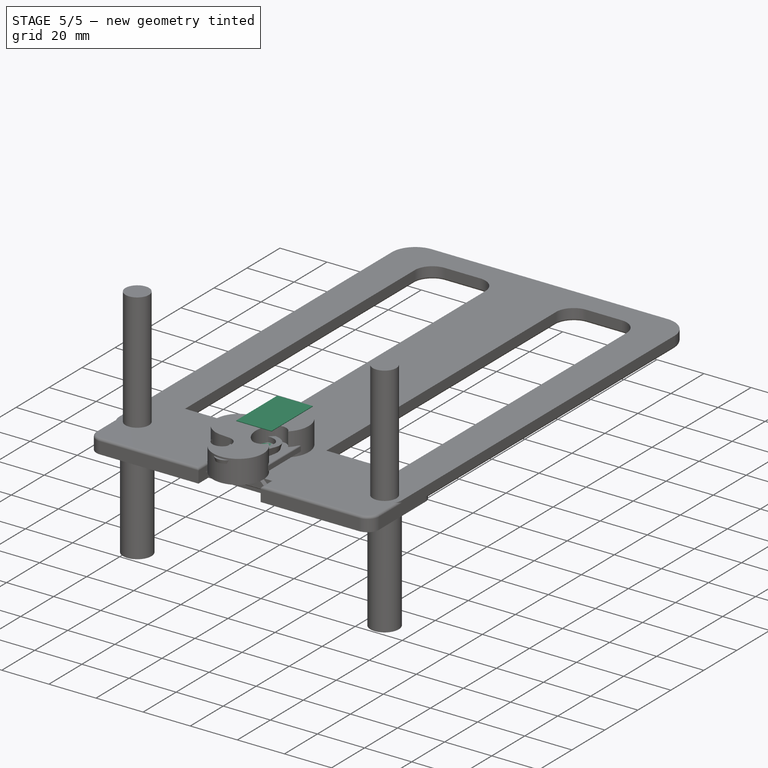
[diagram: stage 5 of 5 — iso view after this stage's code; geometry added in this stage tinted green]
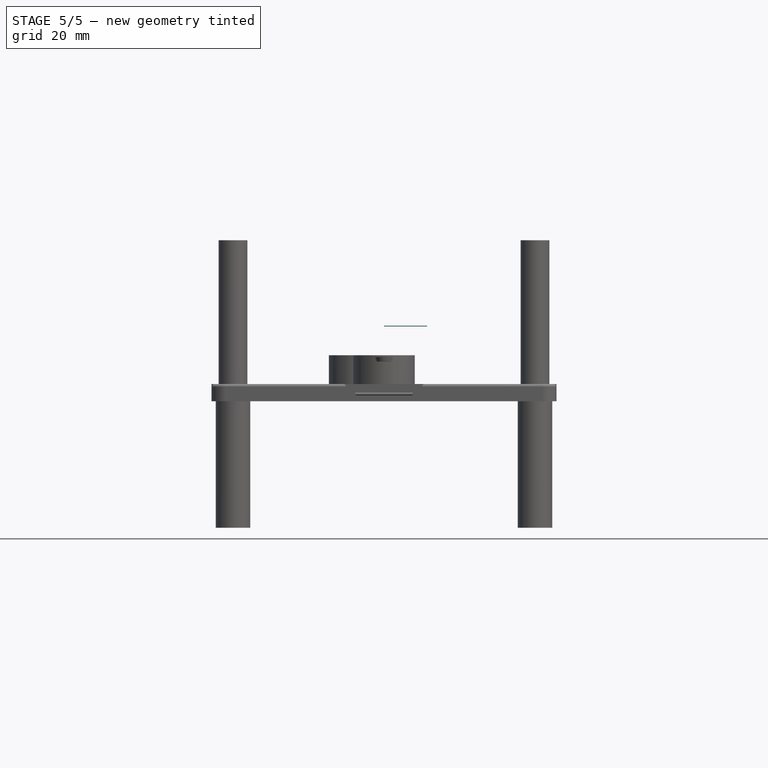
[diagram: stage 5 of 5 — front view after this stage's code; geometry added in this stage tinted green]
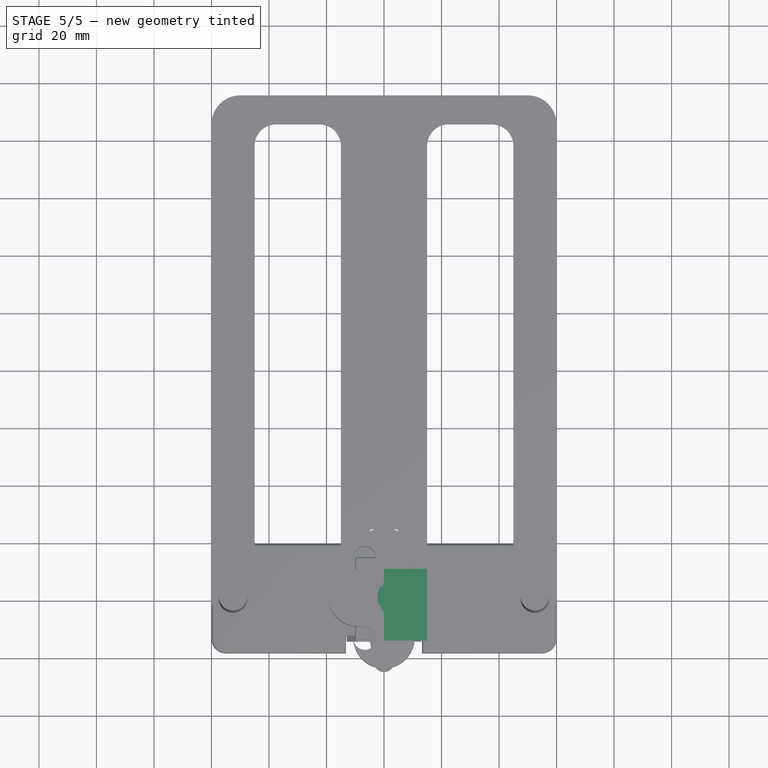
[diagram: stage 5 of 5 — top view after this stage's code; geometry added in this stage tinted green]
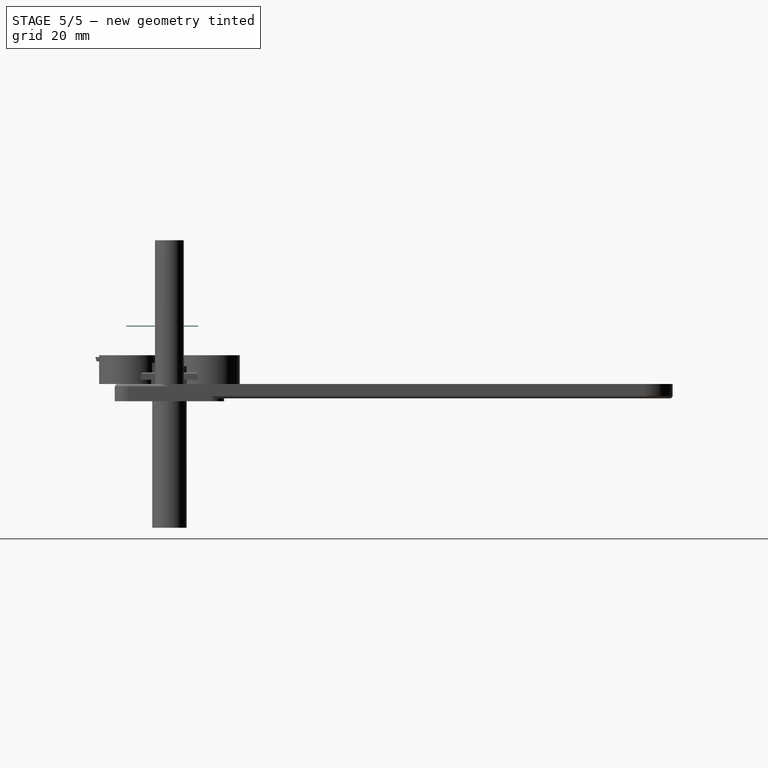
[diagram: stage 5 of 5 — right view after this stage's code; geometry added in this stage tinted green]
FEATURE [Spreadsheet::Sheet] Spreadsheet  label="Dims"
  cells = A1=LRADiameter; B1(LRADiameter)==10.5mm; D1=ClampInnerRadius; E1(ClampInnerRadius)==15mm; A2=StageWidth; B2(StageWidth)==5.6mm; D2=ClampOuterRadius; E2(ClampOuterRadius)==30mm; A3=StageLength; B3(StageLength)==14.75mm; D3=ClampRestAngle; E3(ClampRestAngle)=15; A4=Height; B4(Height)==3mm; D4=ClampLegHeight; E4(ClampLegHeight)==8mm; A5=WallThickness; B5(WallThickness)==0.5mm; D5=ClampLegWidth; E5(ClampLegWidth)==30mm; A6=FloorThickness; B6(FloorThickness)==0.2mm; A7=HoleDiameter; B7(HoleDiameter)==2mm; A8=BonusStageLength; B8(BonusStageLength)==2.5mm; A9=LipWidth; B9(LipWidth)==1mm; A10=LipHeight; B10(LipHeight)==0.5mm; A11=LipClearance; B11(LipClearance)==0.1mm; A12=FabricGap; B12(FabricGap)==0.2mm; D14=LetterTop; E14(LetterTop)==2.5mm; D15=LetterHeight; E15(LetterHeight)==9mm; D16=LetterWidth; E16(LetterWidth)==6mm; D17=LetterWeight; E17(LetterWeight)==1.5mm; A19=StandLegWidth; B19(StandLegWidth)==15mm; A20=StandLegGap; B20(StandLegGap)==90mm; A21=StandPlatformWidth; B21(StandPlatformWidth)==30mm; A22=StandPlatformLength; B22(StandPlatformLength)==175mm; A23=StandPoleRadius; B23(StandPoleRadius)==5mm; A24=StandPoleLength; B24(StandPoleLength)==50mm; A25=PlateKeyRadius; B25(PlateKeyRadius)==5mm; A26=PlateWidth; B26(PlateWidth)==StandPlatformWidth - 4mm; A27=PlateHeight; B27(PlateHeight)==30mm; A28=PlateMargin; B28(PlateMargin)==0.2mm; A29=PlateThickness; B29(PlateThickness)==3mm; A30=PlatePieceMargin; B30(PlatePieceMargin)==0.1mm
FEATURE [Sketcher::SketchObject] Sketch008
  FullyConstrained = true
  MapMode = 5
  Support = -> [XY_Plane002]
  expr: Constraints[21] = <<Dims>>.BonusStageLength
  expr: Constraints[4] = <<Dims>>.LRADiameter
  expr: Constraints[6] = <<Dims>>.StageWidth
  expr: Constraints[15] = -(<<Dims>>.StageLength - <<Dims>>.LRADiameter / 2)
  sketch-geometry (9):
    g0: ArcOfCircle CenterX=0 CenterY=0 CenterZ=0 NormalX=0 NormalY=0 NormalZ=1 AngleXU=0 Radius=5.25 StartAngle=5.27493 EndAngle=10.433
    g1: LineSegment StartX=-2.8 StartY=-4.441 StartZ=0 EndX=-2.8 EndY=-9.5 EndZ=0
    g2: LineSegment StartX=-2.8 StartY=-9.5 StartZ=0 EndX=2.8 EndY=-9.5 EndZ=0
    g3: LineSegment StartX=2.8 StartY=-9.5 StartZ=0 EndX=2.8 EndY=-4.441 EndZ=0
    g4: LineSegment StartX=-2.8 StartY=-9.5 StartZ=0 EndX=-2.8 EndY=-11.5 EndZ=0
    g5: LineSegment StartX=-2.3 StartY=-12 StartZ=0 EndX=2.3 EndY=-12 EndZ=0
    g6: LineSegment StartX=2.8 StartY=-11.5 StartZ=0 EndX=2.8 EndY=-9.5 EndZ=0
    g7: ArcOfCircle CenterX=2.3 CenterY=-11.5 CenterZ=0 NormalX=0 NormalY=0 NormalZ=1 AngleXU=0 Radius=0.5 StartAngle=4.71239 EndAngle=6.28319
    g8: ArcOfCircle CenterX=-2.3 CenterY=-11.5 CenterZ=0 NormalX=0 NormalY=0 NormalZ=1 AngleXU=0 Radius=0.5 StartAngle=3.14159 EndAngle=4.71239
  constraints (23):
    c: Vertical(g1)
    c: Coincident(g2,g1)
    c: Coincident(g3,g2)
    c: Vertical(g3)
    c: Diameter(g0) = 10.5
    c: Coincident(g0,g-1)
    c: DistanceX(g1,g2) = 5.6
    c: Symmetric(g2,g1,g-2)
    c: Coincident(g0,g3)
    c: Coincident(g0,g1)
    c: Coincident(g4,g1)
    c: Vertical(g4)
    c: Horizontal(g5)
    c: Coincident(g6,g3)
    c: Vertical(g6)
    c: DistanceY(g3) = -9.5
    c: Tangent(g6,g7) = -1.5708
    c: Tangent(g5,g7) = -1.5708
    c: Tangent(g5,g8) = -1.5708
    c: Tangent(g4,g8) = -1.5708
    c: Equal(g8,g7)
    c: DistanceY(g5,g3) = 2.5
    c: Radius(g7) = 0.5
FEATURE [PartDesign::Pad] Pad003
  Direction = (1,1,1)
  Length = 3
  Length2 = 100
  Profile = -> Sketch008
  Type = 0
  expr: Length = <<Dims>>.Height
FEATURE [PartDesign::Thickness] Thickness001
  Base = -> Pad003 [Face10]
  BaseFeature = -> Pad003
  Intersection = false
  Join = 1
  Mode = 2
  SupportTransform = false
  Value = 0.5
  expr: Value = <<Dims>>.WallThickness
FEATURE [Sketcher::SketchObject] Sketch009
  FullyConstrained = false
  MapMode = 5
  Support = -> [XY_Plane002]
  expr: Constraints[6] = <<Dims>>.BonusStageLength
  expr: Constraints[5] = <<Dims>>.StageLength
  expr: Constraints[2] = <<Dims>>.LRADiameter
  expr: Constraints[16] = <<Dims>>.StageWidth / 2
  sketch-geometry (13):
    g0: LineSegment StartX=1.27116 StartY=-9.5 StartZ=0 EndX=0 EndY=-9.5 EndZ=0
    g1: LineSegment StartX=2.8 StartY=-12 StartZ=0 EndX=1 EndY=-12 EndZ=0
    g2: Circle CenterX=0 CenterY=0 CenterZ=0 NormalX=0 NormalY=0 NormalZ=1 AngleXU=0 Radius=5.25
    g3: GeomPoint X=0 Y=5.25 Z=0
    g4: LineSegment StartX=1.27116 StartY=-9.5 StartZ=0 EndX=1.9 EndY=-9.84103 EndZ=0
    g5: LineSegment StartX=1.9 StartY=-10.4881 StartZ=0 EndX=1 EndY=-10 EndZ=0
    g6: LineSegment StartX=0 StartY=-9.5 StartZ=0 EndX=0 EndY=-10 EndZ=0
    g7: LineSegment StartX=0 StartY=-10 StartZ=0 EndX=1 EndY=-10 EndZ=0
    g8: LineSegment StartX=1 StartY=-12 StartZ=0 EndX=1 EndY=-11.0238 EndZ=0
    g9: LineSegment StartX=1 StartY=-11.0238 StartZ=0 EndX=2.8 EndY=-12 EndZ=0
    g10: LineSegment StartX=1.84238 StartY=-10.4568 StartZ=0 EndX=1.41333 EndY=-11.248 EndZ=0
    g11: LineSegment StartX=1.9 StartY=-9.84103 StartZ=0 EndX=1.9 EndY=-10.4881 EndZ=0
    g12: LineSegment StartX=1.27116 StartY=-9.5 StartZ=0 EndX=1 EndY=-10 EndZ=0
  constraints (36):
    c: Horizontal(g1)
    c: Coincident(g2,g-1)
    c: Diameter(g2) = 10.5
    c: PointOnObject(g3,g2)
    c: PointOnObject(g3,g-2)
    c: DistanceY(g0,g3) = 14.75
    c: DistanceY(g1,g0) = 2.5
    c: Coincident(g4,g0)
    c: Parallel(g4,g5)
    c: PointOnObject(g0,g-2)
    c: Coincident(g0,g6)
    c: PointOnObject(g6,g-2)
    c: Coincident(g6,g7)
    c: Coincident(g7,g5)
    c: Horizontal(g7)
    c: Horizontal(g0)
    c: DistanceX(g1) = 2.8
    c: Coincident(g1,g8)
    c: Vertical(g8)
    c: Coincident(g9,g1)
    c: Parallel(g5,g9)
    c: DistanceX(g4,g1) = 0.9
    c: DistanceX(g1) = 1
    c: Coincident(g9,g8)
    c: PointOnObject(g10,g9)
    c: Distance(g10) = 0.9
    c: Vertical(g8,g5)
    c: Coincident(g11,g4)
    c: Coincident(g11,g5)
    c: Vertical(g11)
    c: PointOnObject(g10,g5)
    c: Angle(g9,g10) = 1.5708
    c: DistanceY(g6,g6) = 0.5
    c: Coincident(g12,g0)
    c: Coincident(g12,g5)
    c: Angle(g12,g4) = 1.5708
FEATURE [PartDesign::Pad] Pad004
  BaseFeature = -> Thickness001
  Direction = (1,1,1)
  Length = 3
  Length2 = 100
  Profile = -> Sketch009
  Type = 0
  expr: Length = <<Dims>>.Height
FEATURE [PartDesign::Mirrored] Mirrored001
  BaseFeature = -> Pad004
  MirrorPlane = -> Sketch009 [V_Axis]
  Originals = -> [Pad004]
FEATURE [Sketcher::SketchObject] Sketch010
  FullyConstrained = true
  MapMode = 5
  Support = -> [XY_Plane002]
  expr: Constraints[9] = <<Dims>>.WallThickness
  expr: Constraints[10] = -(<<Dims>>.StageLength + <<Dims>>.BonusStageLength - <<Dims>>.LRADiameter / 2)
  sketch-geometry (4):
    g0: LineSegment StartX=1 StartY=-12 StartZ=0 EndX=-1 EndY=-12 EndZ=0
    g1: LineSegment StartX=-1 StartY=-12 StartZ=0 EndX=-1 EndY=-12.5 EndZ=0
    g2: LineSegment StartX=-1 StartY=-12.5 StartZ=0 EndX=1 EndY=-12.5 EndZ=0
    g3: LineSegment StartX=1 StartY=-12.5 StartZ=0 EndX=1 EndY=-12 EndZ=0
  constraints (11):
    c: Coincident(g0,g1)
    c: Coincident(g1,g2)
    c: Coincident(g2,g3)
    c: Coincident(g3,g0)
    c: Horizontal(g0)
    c: Vertical(g1)
    c: Vertical(g3)
    c: DistanceX(g2,g2) = 2
    c: Symmetric(g1,g2,g-2)
    c: Distance(g3) = 0.5
    c: DistanceY(g0) = -12
FEATURE [PartDesign::Pocket] Pocket003
  BaseFeature = -> Mirrored001
  Length = 5
  Length2 = 100
  Profile = -> Sketch010
  Reversed = true
  Type = 1
FEATURE [Sketcher::SketchObject] Sketch011
  FullyConstrained = true
  MapMode = 5
  Placement = pos=(0,0,0) rot=(0.57735,0.57735,0.57735;2.0944rad)
  Support = -> [YZ_Plane002]
  expr: Constraints[7] = <<Dims>>.LipWidth
  expr: Constraints[6] = <<Dims>>.LipHeight
  expr: Constraints[8] = <<Dims>>.Height
  expr: Constraints[0] = <<Dims>>.LRADiameter / 2 + <<Dims>>.WallThickness
  sketch-geometry (3):
    g0: LineSegment StartX=5.75 StartY=3 StartZ=0 EndX=6.75 EndY=2.5 EndZ=0
    g1: ArcOfCircle CenterX=6.75 CenterY=1.5 CenterZ=0 NormalX=0 NormalY=0 NormalZ=1 AngleXU=0 Radius=1 StartAngle=1.5708 EndAngle=3.14159
    g2: LineSegment StartX=5.75 StartY=3 StartZ=0 EndX=5.75 EndY=1.5 EndZ=0
  constraints (10):
    c: DistanceX(g2) = 5.75
    c: Coincident(g1,g0)
    c: Vertical(g2)
    c: Coincident(g1,g2)
    c: Horizontal(g1,g1)
    c: Vertical(g0,g1)
    c: DistanceY(g0,g0) = 0.5
    c: DistanceX(g2,g0) = 1
    c: DistanceY(g2) = 3
    c: Coincident(g0,g2)
FEATURE [PartDesign::Revolution] Revolution001
  Angle = 270
  Axis = (-2e-16,3e-16,1)
  Base = (0,0,0)
  BaseFeature = -> Pocket003
  Midplane = true
  Profile = -> Sketch011
  ReferenceAxis = -> Sketch011 [V_Axis]
  Reversed = true
FEATURE [PartDesign::Body] Body002  label="[archive] ExternalCase"
  Group = -> [Sketch008,Pad003,Thickness001,Sketch009,Pad004,Mirrored001,Sketch010,Pocket003,Sketch011,Revolution001]
  Origin = -> Origin002
  Tip = -> Revolution001
FEATURE [Sketcher::SketchObject] Sketch012
  FullyConstrained = true
  MapMode = 5
  Support = -> [XY_Plane004]
  expr: .Constraints.RingThickness = <<Dims>>.WallThickness * 3
  expr: Constraints[2] = <<Dims>>.LRADiameter
  sketch-geometry (4):
    g0: Circle CenterX=0 CenterY=0 CenterZ=0 NormalX=0 NormalY=0 NormalZ=1 AngleXU=0 Radius=6.75
    g1: Circle CenterX=0 CenterY=0 CenterZ=0 NormalX=0 NormalY=0 NormalZ=1 AngleXU=0 Radius=5.25
    g2: GeomPoint X=5.25 Y=0 Z=0
    g3: GeomPoint X=6.75 Y=0 Z=0
  constraints (8):
    c: Coincident(g0,g-1)
    c: Coincident(g1,g0)
    c: Diameter(g1) = 10.5
    c: PointOnObject(g2,g1)
    c: PointOnObject(g3,g0)
    c: PointOnObject(g3,g-1)
    c: PointOnObject(g2,g-1)
    c: DistanceX(g2,g3) = 1.5  'RingThickness'
FEATURE [PartDesign::Pad] Pad005
  Direction = (1,1,1)
  Length = 2
  Length2 = 100
  Profile = -> Sketch012
  Type = 0
FEATURE [Sketcher::SketchObject] Sketch013
  AttachmentOffset = pos=(0,0,0) rot=(0,1,0;2.35619rad)
  FullyConstrained = true
  MapMode = 5
  Placement = pos=(0,0,0) rot=(-0.281085,0.678598,0.678598;3.68962rad)
  Support = -> [YZ_Plane004]
  expr: Constraints[10] = -<<Dims>>.LipHeight
  expr: Constraints[4] = 1mm - <<Dims>>.LipClearance
  expr: Constraints[9] = Pad005.Length - <<Fillet>>.Radius
  expr: Constraints[14] = <<Dims>>.LRADiameter / 2 + Sketch012.Constraints.RingThickness
  sketch-geometry (5):
    g0: LineSegment StartX=7.75 StartY=-1.4 StartZ=0 EndX=7.75 EndY=-0.5 EndZ=0
    g1: LineSegment StartX=6.56429 StartY=0 StartZ=0 EndX=6.85 EndY=-0.5 EndZ=0
    g2: LineSegment StartX=6.75 StartY=1.25 StartZ=0 EndX=6.56429 EndY=0 EndZ=0
    g3: ArcOfCircle CenterX=6.85 CenterY=-1.4 CenterZ=0 NormalX=0 NormalY=0 NormalZ=1 AngleXU=0 Radius=0.9 StartAngle=1.5708 EndAngle=6.28319
    g4: LineSegment StartX=7.75 StartY=-0.5 StartZ=0 EndX=6.75 EndY=1.25 EndZ=0
  constraints (16):
    c: DistanceX(g1,g0) = 0.9
    c: Horizontal(g0,g1)
    c: Coincident(g3,g1)
    c: Vertical(g3,g1)
    c: Radius(g3) = 0.9
    c: Vertical(g0)
    c: Coincident(g0,g3)
    c: Coincident(g4,g0)
    c: Coincident(g4,g2)
    c: DistanceY(g2) = 1.25
    c: DistanceY(g1) = -0.5
    c: DistanceX(g1) = 6.85
    c: Coincident(g1,g2)
    c: PointOnObject(g1,g-1)
    c: DistanceX(g2) = 6.75
    c: Parallel(g1,g4)
FEATURE [Sketcher::SketchObject] Sketch014
  FullyConstrained = true
  MapMode = 5
  Support = -> [XY_Plane005]
  expr: Constraints[1] = <<Dims>>.LRADiameter - 0.1mm
  sketch-geometry (1):
    g0: Circle CenterX=0 CenterY=0 CenterZ=0 NormalX=0 NormalY=0 NormalZ=1 AngleXU=0 Radius=5.2
  constraints (2):
    c: Coincident(g0,g-1)
    c: Diameter(g0) = 10.4
FEATURE [PartDesign::Pad] Pad006
  Direction = (1,1,1)
  Length = 4
  Length2 = 100
  Profile = -> Sketch014
  Type = 0
FEATURE [Sketcher::SketchObject] Sketch015
  AttachmentOffset = pos=(0,0,0.01) rot=(0,0,1;0rad)
  FullyConstrained = true
  MapMode = 5
  Placement = pos=(0,0,0.01) rot=(0,0,1;0rad)
  Support = -> [XY_Plane005]
  expr: Constraints[4] = <<Dims>>.StageWidth - 0.1mm
  expr: Constraints[6] = -(<<Dims>>.StageLength - <<Dims>>.LRADiameter / 2) + 0.1mm
  sketch-geometry (4):
    g0: LineSegment StartX=-2.75 StartY=0 StartZ=0 EndX=-2.75 EndY=-9.4 EndZ=0
    g1: LineSegment StartX=-2.75 StartY=-9.4 StartZ=0 EndX=2.75 EndY=-9.4 EndZ=0
    g2: LineSegment StartX=2.75 StartY=-9.4 StartZ=0 EndX=2.75 EndY=0 EndZ=0
    g3: LineSegment StartX=-2.75 StartY=0 StartZ=0 EndX=2.75 EndY=0 EndZ=0
  constraints (11):
    c: Vertical(g0)
    c: Coincident(g1,g0)
    c: Coincident(g2,g1)
    c: Vertical(g2)
    c: DistanceX(g0,g1) = 5.5
    c: Symmetric(g1,g0,g-2)
    c: DistanceY(g2) = -9.4
    c: PointOnObject(g0,g-1)
    c: PointOnObject(g2,g-1)
    c: Coincident(g3,g0)
    c: Coincident(g3,g2)
FEATURE [PartDesign::Pad] Pad
  BaseFeature = -> Pad006
  Direction = (1,1,1)
  Length = 1
  Length2 = 100
  Profile = -> Sketch015
  Type = 0
FEATURE [PartDesign::Body] Body005  label="[archive] Actuator"
  Group = -> [Sketch014,Pad006,Sketch015,Pad]
  Origin = -> Origin005
  Tip = -> Pad
FEATURE [Part::Box] Box  label="[archive] Cube"
  AttacherType = Attacher::AttachEngine3D
  Height = 0.25
  Length = 15
  Placement = pos=(0,-15,20) rot=(0,0,1;0rad)
  Width = 25
FEATURE [Sketcher::SketchObject] Sketch023
  FullyConstrained = true
  MapMode = 5
  Support = -> [XY_Plane010]
  sketch-geometry (14):
    g0: LineSegment StartX=-1 StartY=-1.7 StartZ=0 EndX=-2 EndY=-1.7 EndZ=0
    g1: LineSegment StartX=-2 StartY=-1.7 StartZ=0 EndX=-2 EndY=1.7 EndZ=0
    g2: LineSegment StartX=-2 StartY=1.7 StartZ=0 EndX=2 EndY=1.7 EndZ=0
    g3: LineSegment StartX=2 StartY=1.7 StartZ=0 EndX=2 EndY=-1.7 EndZ=0
    g4: LineSegment StartX=2 StartY=-1.7 StartZ=0 EndX=-0.9 EndY=-1.7 EndZ=0
    g5: LineSegment StartX=-0.9 StartY=-1.7 StartZ=0 EndX=-0.9 EndY=-1.3 EndZ=0
    g6: LineSegment StartX=-0.9 StartY=-1.3 StartZ=0 EndX=1.6 EndY=-1.3 EndZ=0
    g7: LineSegment StartX=1.6 StartY=-1.3 StartZ=0 EndX=1.6 EndY=1.3 EndZ=0
    g8: LineSegment StartX=1.6 StartY=1.3 StartZ=0 EndX=-1.6 EndY=1.3 EndZ=0
    g9: LineSegment StartX=-1.6 StartY=1.3 StartZ=0 EndX=-1.6 EndY=-1.3 EndZ=0
    g10: LineSegment StartX=-1.6 StartY=1.3 StartZ=0 EndX=-1.6 EndY=1.7 EndZ=0
    g11: LineSegment StartX=-1.6 StartY=-1.3 StartZ=0 EndX=-1 EndY=-1.3 EndZ=0
    g12: LineSegment StartX=-1 StartY=-1.3 StartZ=0 EndX=-1 EndY=-1.7 EndZ=0
    g13: LineSegment StartX=-1.6 StartY=-1.3 StartZ=0 EndX=-2 EndY=-1.3 EndZ=0
  constraints (38):
    c: Horizontal(g0)
    c: Coincident(g0,g1)
    c: Coincident(g1,g2)
    c: Coincident(g2,g3)
    c: Coincident(g3,g4)
    c: Horizontal(g4)
    c: Coincident(g4,g5)
    c: Vertical(g5)
    c: Coincident(g5,g6)
    c: Coincident(g6,g7)
    c: Vertical(g7)
    c: Coincident(g7,g8)
    c: Coincident(g8,g9)
    c: Symmetric(g8,g7,g-2)
    c: Symmetric(g1,g2,g-2)
    c: Symmetric(g2,g3,g-1)
    c: Horizontal(g6)
    c: Coincident(g10,g8)
    c: PointOnObject(g10,g2)
    c: Vertical(g10)
    c: DistanceX(g8,g8) = 3.2  'Width'
    c: DistanceY(g5,g5) = 0.4
    c: Vertical(g9)
    c: Symmetric(g0,g3,g-2)
    c: DistanceY(g6,g7) = 2.6
    c: Horizontal(g11)
    c: Coincident(g11,g12)
    c: Vertical(g12)
    c: Coincident(g9,g11)
    c: Coincident(g0,g12)
    c: Equal(g12,g5)
    c: Coincident(g13,g9)
    c: PointOnObject(g13,g1)
    c: Horizontal(g13)
    c: Equal(g13,g12)
    c: Equal(g10,g5)
    c: DistanceX(g11,g11) = 0.6
    c: DistanceX(g11,g5) = 0.1
FEATURE [PartDesign::Pad] Pad012
  Direction = (1,1,1)
  Length = 3.8
  Length2 = 3.75
  Profile = -> Sketch023
  Type = 0
FEATURE [PartDesign::Body] Body010  label="WireMarker"
  Group = -> [Sketch023,Pad012]
  Origin = -> Origin010
  Tip = -> Pad012
FEATURE [PartDesign::Fillet] Fillet
  Base = -> Pad005 [Edge3]
  BaseFeature = -> Pad005
  Radius = 0.75
  SupportTransform = false
FEATURE [PartDesign::Revolution] Revolution002
  Angle = 50
  Axis = (-3e-16,2e-16,1)
  Base = (0,0,0)
  BaseFeature = -> Fillet
  Profile = -> Sketch013
  ReferenceAxis = -> Sketch013 [V_Axis]
  Reversed = true
FEATURE [PartDesign::PolarPattern] PolarPattern
  Angle = 220
  Axis = -> Sketch013 [V_Axis]
  BaseFeature = -> Revolution002
  Occurrences = 5
  Originals = -> [Revolution002]
  Reversed = true
  expr: Angle = 270° - <<Revolution002>>.Angle
FEATURE [Sketcher::SketchObject] Sketch025
  FullyConstrained = false
  MapMode = 5
  Support = -> [XY_Plane011]
  expr: Constraints[10] = <<Dims>>.StageWidth / 2
  expr: Constraints[2] = <<Dims>>.LRADiameter
  expr: Constraints[5] = <<Dims>>.StageLength
  expr: Constraints[6] = <<Dims>>.BonusStageLength
  sketch-geometry (22):
    g0: LineSegment StartX=1.27116 StartY=-9.5 StartZ=0 EndX=-1.27116 EndY=-9.5 EndZ=0
    g1: LineSegment StartX=2.8 StartY=-12 StartZ=0 EndX=1 EndY=-12 EndZ=0
    g2: Circle CenterX=0 CenterY=0 CenterZ=0 NormalX=0 NormalY=0 NormalZ=1 AngleXU=0 Radius=5.25
    g3: GeomPoint X=0 Y=5.25 Z=0
    g4: LineSegment StartX=1.27116 StartY=-9.5 StartZ=0 EndX=1.9 EndY=-9.84103 EndZ=0
    g5: LineSegment StartX=1.9 StartY=-10.4881 StartZ=0 EndX=1 EndY=-10 EndZ=0
    g6: LineSegment StartX=-1 StartY=-10 StartZ=0 EndX=1 EndY=-10 EndZ=0
    g7: LineSegment StartX=1 StartY=-12 StartZ=0 EndX=1 EndY=-11.0238 EndZ=0
    g8: LineSegment StartX=1 StartY=-11.0238 StartZ=0 EndX=1.87803 EndY=-11.5 EndZ=0
    g9: LineSegment StartX=1.84497 StartY=-10.4582 StartZ=0 EndX=1.41591 EndY=-11.2494 EndZ=0
    g10: LineSegment StartX=1.9 StartY=-9.84103 StartZ=0 EndX=1.9 EndY=-10.4881 EndZ=0
    g11: LineSegment StartX=1.27116 StartY=-9.5 StartZ=0 EndX=1 EndY=-10 EndZ=0
    g12: LineSegment StartX=1.87803 StartY=-11.5 StartZ=0 EndX=2.8 EndY=-11.5 EndZ=0
    g13: LineSegment StartX=2.8 StartY=-11.5 StartZ=0 EndX=2.8 EndY=-12 EndZ=0
    g14: LineSegment StartX=-1.27116 StartY=-9.5 StartZ=0 EndX=-1.9 EndY=-9.84103 EndZ=0
    g15: LineSegment StartX=-1.9 StartY=-9.84103 StartZ=0 EndX=-1.9 EndY=-10.4881 EndZ=0
    g16: LineSegment StartX=-1.9 StartY=-10.4881 StartZ=0 EndX=-1 EndY=-10 EndZ=0
    g17: LineSegment StartX=-1 StartY=-11.0238 StartZ=0 EndX=-1 EndY=-12 EndZ=0
    g18: LineSegment StartX=-1 StartY=-12 StartZ=0 EndX=-2.8 EndY=-12 EndZ=0
    g19: LineSegment StartX=-2.8 StartY=-12 StartZ=0 EndX=-2.8 EndY=-11.5 EndZ=0
    g20: LineSegment StartX=-2.8 StartY=-11.5 StartZ=0 EndX=-1.87803 EndY=-11.5 EndZ=0
    g21: LineSegment StartX=-1.87803 StartY=-11.5 StartZ=0 EndX=-1 EndY=-11.0238 EndZ=0
  constraints (56):
    c: Horizontal(g1)
    c: Coincident(g2,g-1)
    c: Diameter(g2) = 10.5
    c: PointOnObject(g3,g2)
    c: PointOnObject(g3,g-2)
    c: DistanceY(g0,g3) = 14.75
    c: DistanceY(g1,g0) = 2.5
    c: Coincident(g4,g0)
    c: Parallel(g4,g5)
    c: Coincident(g6,g5)
    c: DistanceX(g1) = 2.8
    c: Coincident(g1,g7)
    c: Vertical(g7)
    c: Parallel(g5,g8)
    c: DistanceX(g4,g1) = 0.9
    c: DistanceX(g1) = 1
    c: Coincident(g8,g7)
    c: PointOnObject(g9,g8)
    c: Distance(g9) = 0.9
    c: Vertical(g7,g5)
    c: Coincident(g10,g4)
    c: Coincident(g10,g5)
    c: Vertical(g10)
    c: PointOnObject(g9,g5)
    c: Angle(g8,g9) = 1.5708
    c: DistanceY(g6,g0) = 0.5
    c: Coincident(g11,g0)
    c: Coincident(g11,g5)
    c: Angle(g11,g4) = 1.5708
    c: Horizontal(g12)
    c: Coincident(g13,g12)
    c: Coincident(g13,g1)
    c: Vertical(g13)
    c: Coincident(g8,g12)
    c: PointOnObject(g1,g8)
    c: DistanceY(g13,g13) = 0.5
    c: Symmetric(g0,g0,g-2)
    c: Symmetric(g6,g5,g-2)
    c: Coincident(g0,g14)
    c: Coincident(g14,g15)
    c: Coincident(g15,g16)
    c: Coincident(g16,g6)
    c: Symmetric(g15,g5,g-2)
    c: Symmetric(g14,g4,g-2)
    c: Vertical(g17)
    c: Coincident(g17,g18)
    c: Horizontal(g18)
    c: Coincident(g18,g19)
    c: Vertical(g19)
    c: Coincident(g19,g20)
    c: Horizontal(g20)
    c: Coincident(g20,g21)
    c: Coincident(g21,g17)
    c: Symmetric(g17,g7,g-2)
    c: Symmetric(g18,g1,g-2)
    c: Symmetric(g20,g8,g-2)
FEATURE [Sketcher::SketchObject] Sketch
  FullyConstrained = true
  MapMode = 5
  Placement = pos=(0,0,0) rot=(1,0,0;1.5708rad)
  Support = -> [XZ_Plane]
  expr: Constraints[3] = <<Dims>>.LRADiameter / 2
  expr: Constraints[11] = <<Dims>>.WallThickness
  expr: Constraints[20] = <<Dims>>.WallThickness + <<Dims>>.FabricGap * 2
  expr: Constraints[10] = -1mm - <<Dims>>.FabricGap
  expr: Constraints[21] = <<Pad013>>.Length
  sketch-geometry (9):
    g0: LineSegment StartX=5.25 StartY=0.5 StartZ=0 EndX=6.65 EndY=0.5 EndZ=0
    g1: LineSegment StartX=7.15 StartY=0 StartZ=0 EndX=7.15 EndY=-1.2 EndZ=0
    g2: LineSegment StartX=5.75 StartY=0 StartZ=0 EndX=6.65 EndY=0 EndZ=0
    g3: LineSegment StartX=6.65 StartY=0 StartZ=0 EndX=6.65 EndY=-1.2 EndZ=0
    g4: LineSegment StartX=6.65 StartY=-1.2 StartZ=0 EndX=7.15 EndY=-1.2 EndZ=0
    g5: LineSegment StartX=5.25 StartY=0.5 StartZ=0 EndX=5.25 EndY=-2.5 EndZ=0
    g6: LineSegment StartX=5.25 StartY=-2.5 StartZ=0 EndX=5.75 EndY=-2.5 EndZ=0
    g7: LineSegment StartX=5.75 StartY=-2.5 StartZ=0 EndX=5.75 EndY=0 EndZ=0
    g8: ArcOfCircle CenterX=6.65 CenterY=0 CenterZ=0 NormalX=0 NormalY=0 NormalZ=1 AngleXU=0 Radius=0.5 StartAngle=0 EndAngle=1.5708
  constraints (25):
    c: PointOnObject(g2,g-1)
    c: Horizontal(g0)
    c: Vertical(g1)
    c: DistanceX(g0) = 5.25
    c: PointOnObject(g2,g-1)
    c: Coincident(g2,g3)
    c: Vertical(g3)
    c: Coincident(g3,g4)
    c: Coincident(g4,g1)
    c: Horizontal(g4)
    c: DistanceY(g3) = -1.2
    c: DistanceX(g4,g4) = 0.5
    c: Coincident(g0,g5)
    c: Vertical(g5)
    c: Coincident(g5,g6)
    c: Horizontal(g6)
    c: Coincident(g6,g7)
    c: Coincident(g7,g2)
    c: Vertical(g7)
    c: Equal(g6,g4)
    c: DistanceX(g2,g2) = 0.9
    c: DistanceY(g7,g7) = 2.5
    c: Tangent(g1,g8) = 1.5708
    c: Tangent(g0,g8) = 1.5708
    c: Coincident(g8,g2)
FEATURE [PartDesign::Revolution] Revolution
  Angle = 360
  Axis = (0,-2e-16,1)
  Base = (0,0,0)
  Placement = pos=(0,0,0) rot=(1,0,0;1.5708rad)
  Profile = -> Sketch
  ReferenceAxis = -> Sketch [V_Axis]
  Reversed = true
FEATURE [Sketcher::SketchObject] Sketch029
  FullyConstrained = true
  MapMode = 5
  Support = -> [XY_Plane]
  expr: Constraints[10] = <<Dims>>.LRADiameter / 2
  expr: Constraints[11] = <<Dims>>.LRADiameter / 2 + <<Dims>>.WallThickness * 3 + <<Dims>>.FabricGap * 2
  expr: Constraints[16] = <<Dims>>.StageWidth + <<Dims>>.WallThickness * 2
  sketch-geometry (7):
    g0: Circle CenterX=0 CenterY=0 CenterZ=0 NormalX=0 NormalY=0 NormalZ=1 AngleXU=0 Radius=6.2
    g1: ArcOfCircle CenterX=-4.25 CenterY=-4.51414 CenterZ=0 NormalX=0 NormalY=0 NormalZ=1 AngleXU=0 Radius=0.95 StartAngle=3.95711 EndAngle=7.09871
    g2: ArcOfCircle CenterX=4.25 CenterY=-4.51414 CenterZ=0 NormalX=0 NormalY=0 NormalZ=1 AngleXU=0 Radius=0.95 StartAngle=2.32606 EndAngle=5.46766
    g3: ArcOfCircle CenterX=0 CenterY=0 CenterZ=0 NormalX=0 NormalY=0 NormalZ=1 AngleXU=0 Radius=5.25 StartAngle=3.95712 EndAngle=5.46766
    g4: ArcOfCircle CenterX=0 CenterY=0 CenterZ=0 NormalX=0 NormalY=0 NormalZ=1 AngleXU=0 Radius=7.15 StartAngle=3.95712 EndAngle=5.46766
    g5: GeomPoint X=-3.3 Y=-4.51414 Z=0
    g6: GeomPoint X=3.3 Y=-4.51414 Z=0
  constraints (17):
    c: Coincident(g0,g-1)
    c: PointOnObject(g1,g0)
    c: Equal(g2,g1)
    c: Coincident(g3,g0)
    c: Coincident(g4,g0)
    c: Symmetric(g2,g1,g-2)
    c: Tangent(g3,g1) = 1.5708
    c: Coincident(g3,g2)
    c: Coincident(g4,g1)
    c: Tangent(g4,g2) = -1.5708
    c: Radius(g3) = 5.25
    c: Radius(g4) = 7.15
    c: PointOnObject(g5,g1)
    c: PointOnObject(g6,g2)
    c: Horizontal(g2,g6)
    c: Horizontal(g6,g5)
    c: DistanceX(g5,g6) = 6.6
FEATURE [PartDesign::Pocket] Pocket
  BaseFeature = -> Revolution
  Length = 5
  Length2 = 100
  Midplane = true
  Placement = pos=(0,0,0) rot=(1,0,0;1.5708rad)
  Profile = -> Sketch029
  Type = 1
FEATURE [PartDesign::Pad] Pad014
  BaseFeature = -> Pocket005
  Direction = (1,1,1)
  Length = 1.5
  Length2 = 100
  Profile = -> Sketch025
  Type = 0
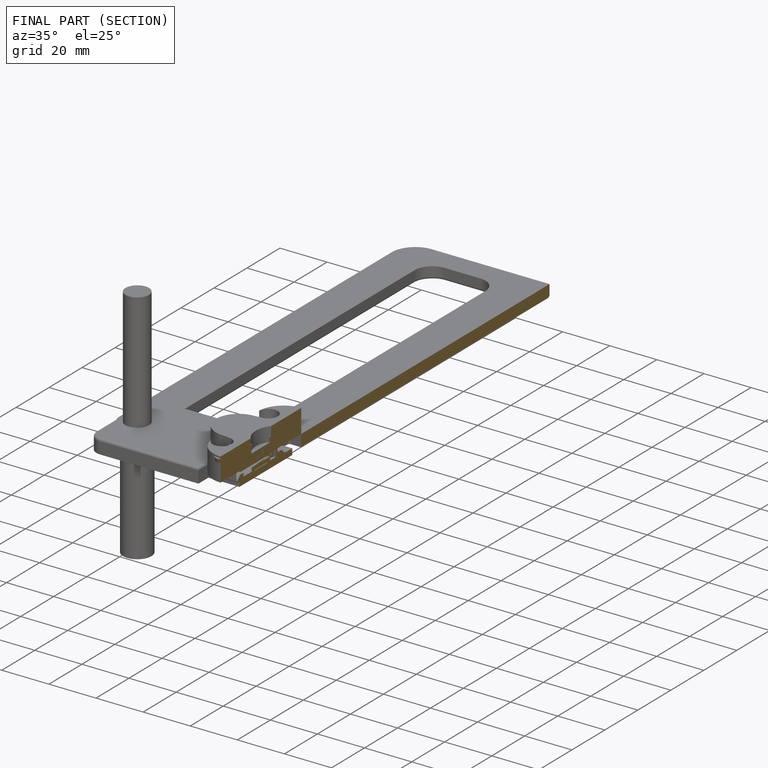
[diagram: finished part — half-section view (interior)]
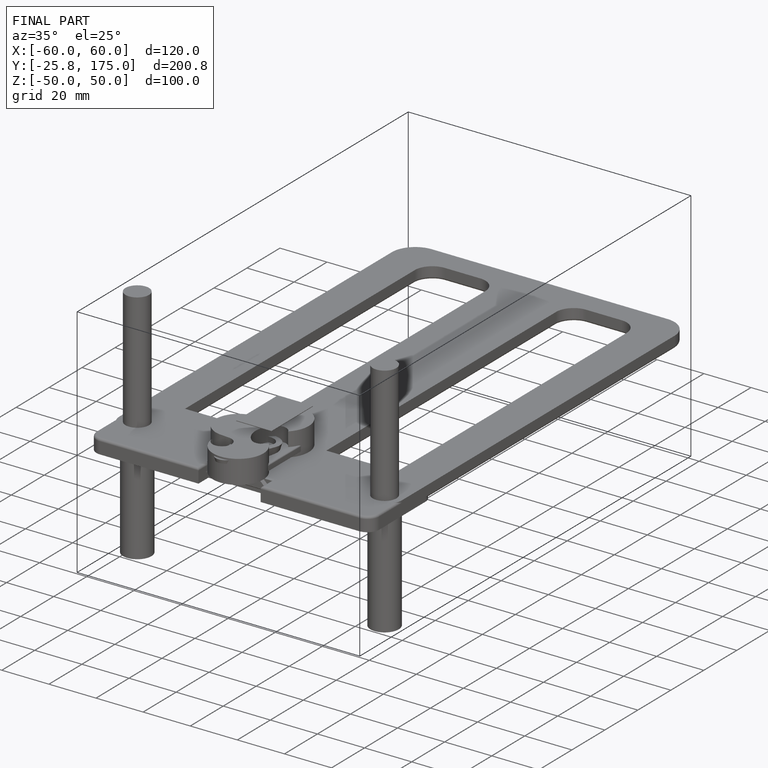
[diagram: finished part — iso view with bounding-box wireframe]
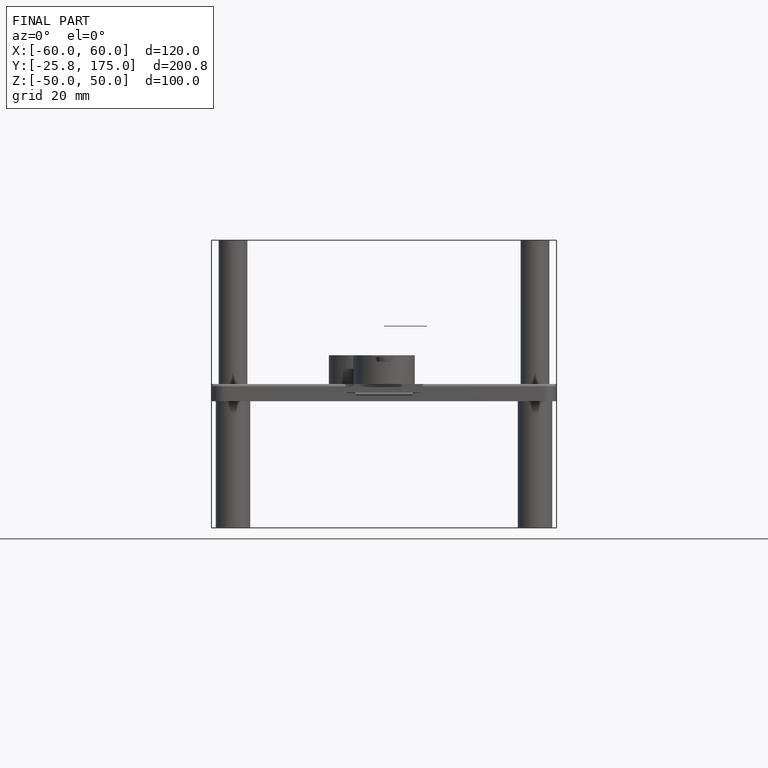
[diagram: finished part — front view with bounding-box wireframe]
